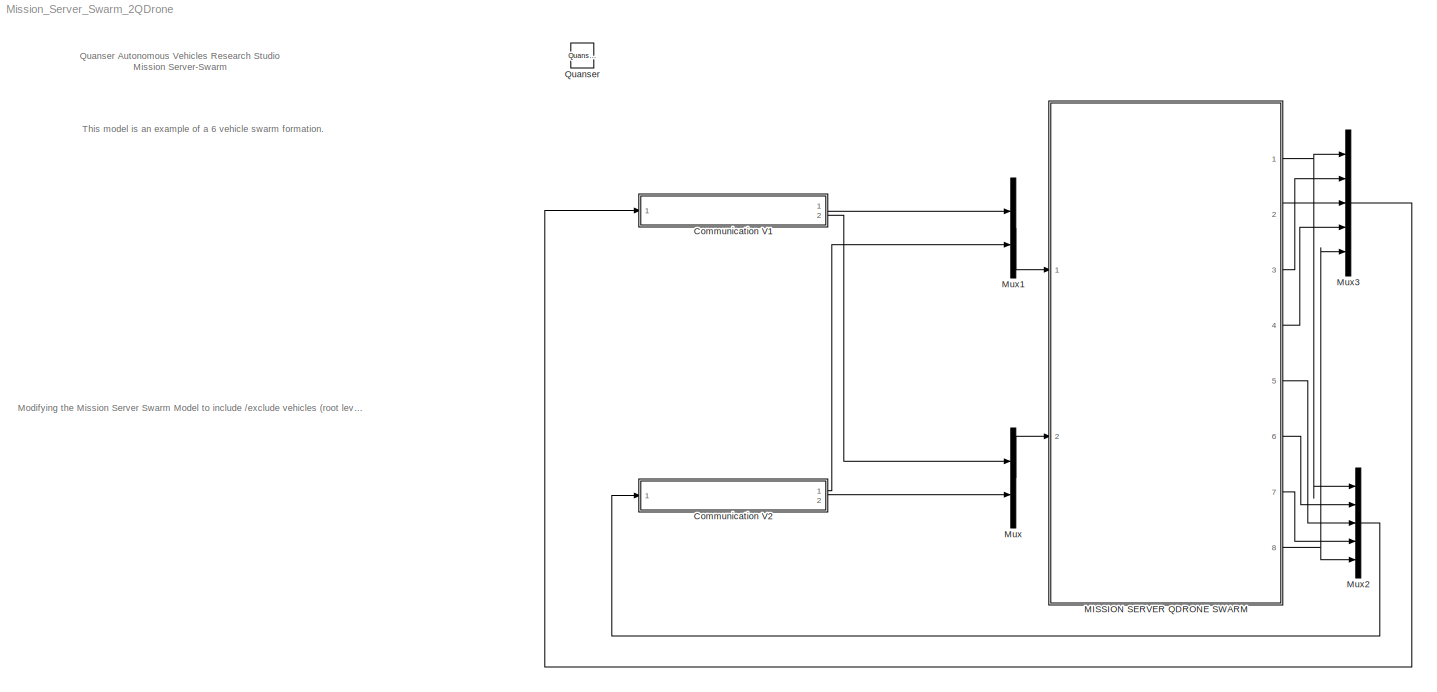
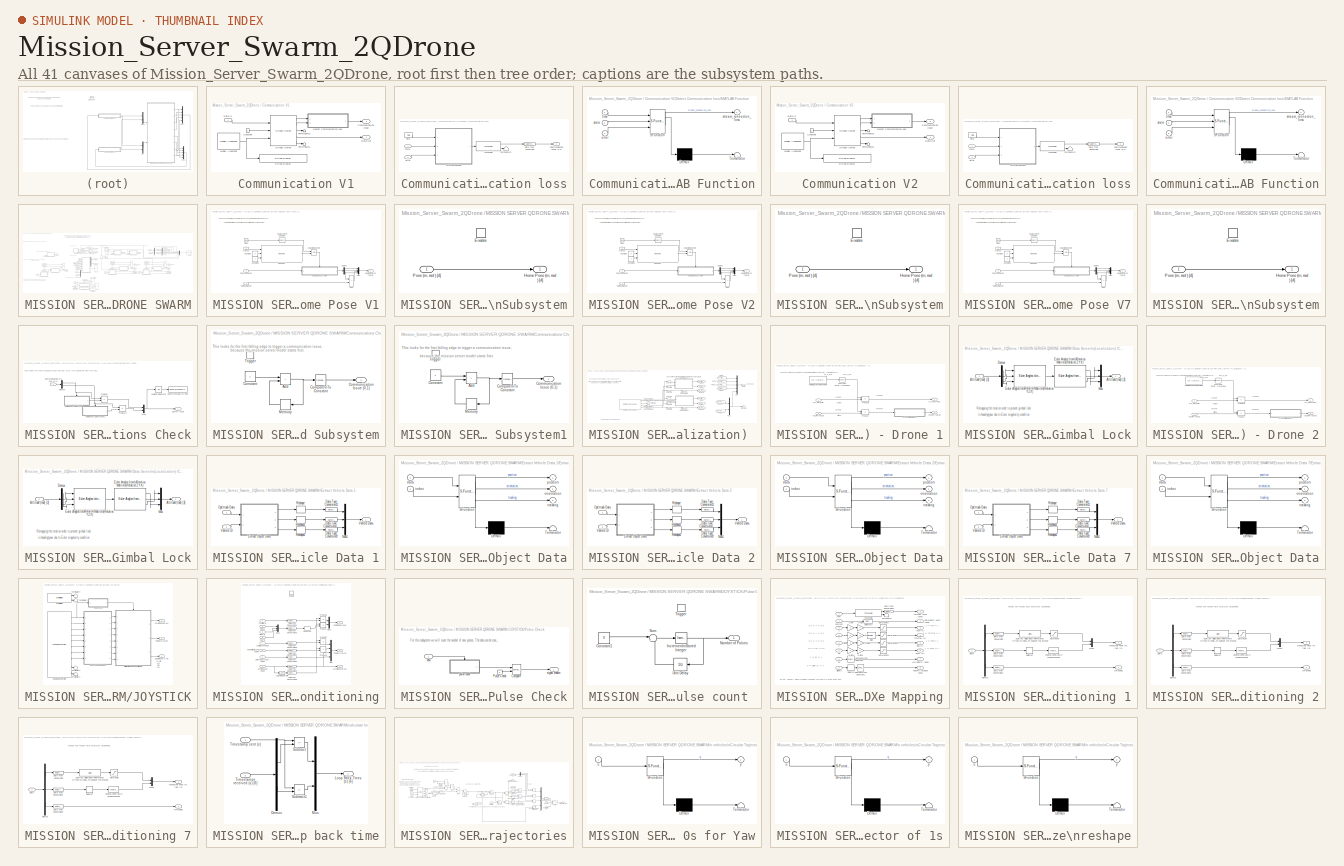
[diagram: thumbnail index - all 41 canvases of the model, root first then tree order]
MODEL Mission_Server_Swarm_2QDrone
KIND model
BLOCK [SubSystem] Communication V1
  Ports = [1, 2]
  RequestExecContextInheritance = off
  SID = 4722
BLOCK [Outport] Communication V1/Communication Issue
  Port = 2
  SID = 4739
  VectorParamsAs1DForOutWhenUnconnected = off
BLOCK [Constant] Communication V1/Constant
  SID = 4724
BLOCK [Inport] Communication V1/Data In
  SID = 4723
BLOCK [Outport] Communication V1/Data Out
  SID = 4740
  VectorParamsAs1DForOutWhenUnconnected = off
BLOCK [SubSystem] Communication V1/Detect Communication loss
  Ports = [2, 1]
  RequestExecContextInheritance = off
  SID = 4725
BLOCK [Outport] Communication V1/Detect Communication loss/Communication Issue (0,1)
  SID = 4733
  VectorParamsAs1DForOutWhenUnconnected = off
BLOCK [DataTypeConversion] Communication V1/Detect Communication loss/Data Type Conversion
  RndMeth = Floor
  SID = 4728
  SaturateOnIntegerOverflow = off
BLOCK [Inport] Communication V1/Detect Communication loss/Error
  NameLocation = top
  Port = 2
  SID = 4727
BLOCK [SubSystem] Communication V1/Detect Communication loss/MATLAB Function
  ErrorFcn = Stateflow.Translate.translate
  PermitHierarchicalResolution = ExplicitOnly
  Ports = [3, 1]
  RequestExecContextInheritance = off
  SFBlockType = MATLAB Function
  SID = 4729
  TreatAsAtomicUnit = on
BLOCK [Demux] Communication V1/Detect Communication loss/MATLAB Function/ Demux 
  Outputs = 1
  Ports = [1, 1]
  SID = 4729::50
BLOCK [S-Function] Communication V1/Detect Communication loss/MATLAB Function/ SFunction 
  EnableBusSupport = off
  FunctionName = sf_sfun
  PortCounts = [3 2]
  Ports = [3, 2]
  SFcnIsStateOwnerBlock = off
  SFunctionDeploymentMode = off
  SID = 4729::49
  Tag = Stateflow S-Function 6
BLOCK [Terminator] Communication V1/Detect Communication loss/MATLAB Function/ Terminator 
  SID = 4729::51
BLOCK [Inport] Communication V1/Detect Communication loss/MATLAB Function/error
  Port = 3
  SID = 4729::23
BLOCK [Inport] Communication V1/Detect Communication loss/MATLAB Function/state
  Port = 2
  SID = 4729::22
BLOCK [Outport] Communication V1/Detect Communication loss/MATLAB Function/stream_connection_loss
  SID = 4729::5
  VectorParamsAs1DForOutWhenUnconnected = off
BLOCK [Inport] Communication V1/Detect Communication loss/MATLAB Function/time
  SID = 4729::1
BLOCK [Inport] Communication V1/Detect Communication loss/State
  NameLocation = top
  SID = 4726
BLOCK [Terminator] Communication V1/Detect Communication loss/Terminator2
  SID = 4730
BLOCK [Reference] Communication V1/Detect Communication loss/Threshold  REF=quarc_library/Discontinuities/Threshold
  Ports = [1, 2]
  RTWMemSecDataConstants = Inherit from model
  RTWMemSecDataInternal = Inherit from model
  RTWMemSecDataParameters = Inherit from model
  RTWMemSecFuncExecute = Inherit from model
  RTWMemSecFuncInitTerm = Inherit from model
  SID = 4731
  SourceBlock = quarc_library/Discontinuities/Threshold
  SourceProductName = QUARC Targets
  SourceType = Threshold
  duration = 0.1
  operator = >=
  param_src = Specify via dialog
  threshold = 0.5
BLOCK [Reference] Communication V1/Detect Communication loss/Time  REF=quarc_library/Sources/Time/Time
  MultiThreadCoSim = auto
  NameLocation = top
  Ports = [0, 1]
  SID = 4732
  SourceBlock = quarc_library/Sources/Time/Time
  SourceProductName = QUARC Targets
  SourceType = Time
  sample_time = qc_get_step_size
  time_source = Wall clock
BLOCK [Reference] Communication V1/Model Argument  REF=quarc_library/Sources/Signals/Model Argument
  AttributesFormatString = (-%<argument_name>)
  MultiThreadCoSim = auto
  Ports = [0, 1]
  SID = 4734
  SourceBlock = quarc_library/Sources/Signals/Model Argument
  SourceProductName = QUARC Targets
  SourceType = Model Argument
  argument_name = URI_Host_V1
  data_type = char
  data_type_mode = Specify via dialog
  default_string = tcpip://localhost:18001
  default_value = 0
  has_value = on
  max_length = 80
  variable_size = off
BLOCK [Reference] Communication V1/Stream Server  REF=quarc_library/Communications/Basic/Stream Server
  MultiThreadCoSim = auto
  Ports = [3, 5]
  SID = 4735
  SourceBlock = quarc_library/Communications/Basic/Stream Server
  SourceProductName = QUARC Targets
  SourceType = Stream Server
  active = off
  apply_uri_to_all_configs = off
  byte_order = little endian (Intel - LSB first)
  data_type = Inherited via back propagation
  default_value = zeros(1,1)
  implementation = Use blocking I/O in a separate thread
  max_dimensions = -1
  optimization = Minimum latency
  receive_buffer_size = 1460
  receive_dimensions = off
  receive_fifo_size = 1000
  receive_options = Receive most recent data
  receive_priority = 0
  sample_time = qc_get_step_size
  send_buffer_size = 1460
  send_dimensions = off
  send_fifo_size = 1000
  send_options = Send most recent data
  send_priority = 0
  type_expr = BusObject
  uri = tcpip://localhost:18877
  uri_source = External input port
BLOCK [Reference] Communication V1/String Display   REF=quarc_library/Strings/String Display
  MultiThreadCoSim = auto
  Ports = [1]
  SID = 4736
  SourceBlock = quarc_library/Strings/String Display
  SourceProductName = QUARC Targets
  SourceType = String Display
  alignment = center
  display_mode = Single line
  sample_time = -1
  use_new = off
BLOCK [Terminator] Communication V1/Terminator1
  SID = 4737
BLOCK [Terminator] Communication V1/Terminator2
  SID = 4738
BLOCK [SubSystem] Communication V2
  Ports = [1, 2]
  RequestExecContextInheritance = off
  SID = 4741
BLOCK [Outport] Communication V2/Communication Issue
  Port = 2
  SID = 4758
  VectorParamsAs1DForOutWhenUnconnected = off
BLOCK [Constant] Communication V2/Constant
  SID = 4743
BLOCK [Inport] Communication V2/Data In
  SID = 4742
BLOCK [Outport] Communication V2/Data Out
  SID = 4759
  VectorParamsAs1DForOutWhenUnconnected = off
BLOCK [SubSystem] Communication V2/Detect Communication loss
  Ports = [2, 1]
  RequestExecContextInheritance = off
  SID = 4744
BLOCK [Outport] Communication V2/Detect Communication loss/Communication Issue (0,1)
  SID = 4752
  VectorParamsAs1DForOutWhenUnconnected = off
BLOCK [DataTypeConversion] Communication V2/Detect Communication loss/Data Type Conversion
  RndMeth = Floor
  SID = 4747
  SaturateOnIntegerOverflow = off
BLOCK [Inport] Communication V2/Detect Communication loss/Error
  NameLocation = top
  Port = 2
  SID = 4746
BLOCK [SubSystem] Communication V2/Detect Communication loss/MATLAB Function
  ErrorFcn = Stateflow.Translate.translate
  PermitHierarchicalResolution = ExplicitOnly
  Ports = [3, 1]
  RequestExecContextInheritance = off
  SFBlockType = MATLAB Function
  SID = 4748
  TreatAsAtomicUnit = on
BLOCK [Demux] Communication V2/Detect Communication loss/MATLAB Function/ Demux 
  Outputs = 1
  Ports = [1, 1]
  SID = 4748::50
BLOCK [S-Function] Communication V2/Detect Communication loss/MATLAB Function/ SFunction 
  EnableBusSupport = off
  FunctionName = sf_sfun
  PortCounts = [3 2]
  Ports = [3, 2]
  SFcnIsStateOwnerBlock = off
  SFunctionDeploymentMode = off
  SID = 4748::49
  Tag = Stateflow S-Function 7
BLOCK [Terminator] Communication V2/Detect Communication loss/MATLAB Function/ Terminator 
  SID = 4748::51
BLOCK [Inport] Communication V2/Detect Communication loss/MATLAB Function/error
  Port = 3
  SID = 4748::23
BLOCK [Inport] Communication V2/Detect Communication loss/MATLAB Function/state
  Port = 2
  SID = 4748::22
BLOCK [Outport] Communication V2/Detect Communication loss/MATLAB Function/stream_connection_loss
  SID = 4748::5
  VectorParamsAs1DForOutWhenUnconnected = off
BLOCK [Inport] Communication V2/Detect Communication loss/MATLAB Function/time
  SID = 4748::1
BLOCK [Inport] Communication V2/Detect Communication loss/State
  NameLocation = top
  SID = 4745
BLOCK [Terminator] Communication V2/Detect Communication loss/Terminator2
  SID = 4749
BLOCK [Reference] Communication V2/Detect Communication loss/Threshold  REF=quarc_library/Discontinuities/Threshold
  Ports = [1, 2]
  RTWMemSecDataConstants = Inherit from model
  RTWMemSecDataInternal = Inherit from model
  RTWMemSecDataParameters = Inherit from model
  RTWMemSecFuncExecute = Inherit from model
  RTWMemSecFuncInitTerm = Inherit from model
  SID = 4750
  SourceBlock = quarc_library/Discontinuities/Threshold
  SourceProductName = QUARC Targets
  SourceType = Threshold
  duration = 0.1
  operator = >=
  param_src = Specify via dialog
  threshold = 0.5
BLOCK [Reference] Communication V2/Detect Communication loss/Time  REF=quarc_library/Sources/Time/Time
  MultiThreadCoSim = auto
  NameLocation = top
  Ports = [0, 1]
  SID = 4751
  SourceBlock = quarc_library/Sources/Time/Time
  SourceProductName = QUARC Targets
  SourceType = Time
  sample_time = qc_get_step_size
  time_source = Wall clock
BLOCK [Reference] Communication V2/Model Argument  REF=quarc_library/Sources/Signals/Model Argument
  AttributesFormatString = (-%<argument_name>)
  MultiThreadCoSim = auto
  Ports = [0, 1]
  SID = 4753
  SourceBlock = quarc_library/Sources/Signals/Model Argument
  SourceProductName = QUARC Targets
  SourceType = Model Argument
  argument_name = URI_Host_V2
  data_type = char
  data_type_mode = Specify via dialog
  default_string = tcpip://localhost:18002
  default_value = 0
  has_value = on
  max_length = 80
  variable_size = off
BLOCK [Reference] Communication V2/Stream Server  REF=quarc_library/Communications/Basic/Stream Server
  MultiThreadCoSim = auto
  Ports = [3, 5]
  SID = 4754
  SourceBlock = quarc_library/Communications/Basic/Stream Server
  SourceProductName = QUARC Targets
  SourceType = Stream Server
  active = off
  apply_uri_to_all_configs = off
  byte_order = little endian (Intel - LSB first)
  data_type = Inherited via back propagation
  default_value = zeros(1,1)
  implementation = Use blocking I/O in a separate thread
  max_dimensions = -1
  optimization = Minimum latency
  receive_buffer_size = 1460
  receive_dimensions = off
  receive_fifo_size = 1000
  receive_options = Receive most recent data
  receive_priority = 0
  sample_time = qc_get_step_size
  send_buffer_size = 1460
  send_dimensions = off
  send_fifo_size = 1000
  send_options = Send most recent data
  send_priority = 0
  type_expr = BusObject
  uri = tcpip://localhost:18877
  uri_source = External input port
BLOCK [Reference] Communication V2/String Display   REF=quarc_library/Strings/String Display
  MultiThreadCoSim = auto
  Ports = [1]
  SID = 4755
  SourceBlock = quarc_library/Strings/String Display
  SourceProductName = QUARC Targets
  SourceType = String Display
  alignment = center
  display_mode = Single line
  sample_time = -1
  use_new = off
BLOCK [Terminator] Communication V2/Terminator1
  SID = 4756
BLOCK [Terminator] Communication V2/Terminator2
  SID = 4757
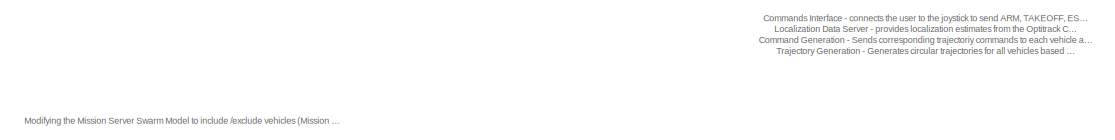
[diagram: MISSION SERVER QDRONE SWARM - part 1/4, top left region]
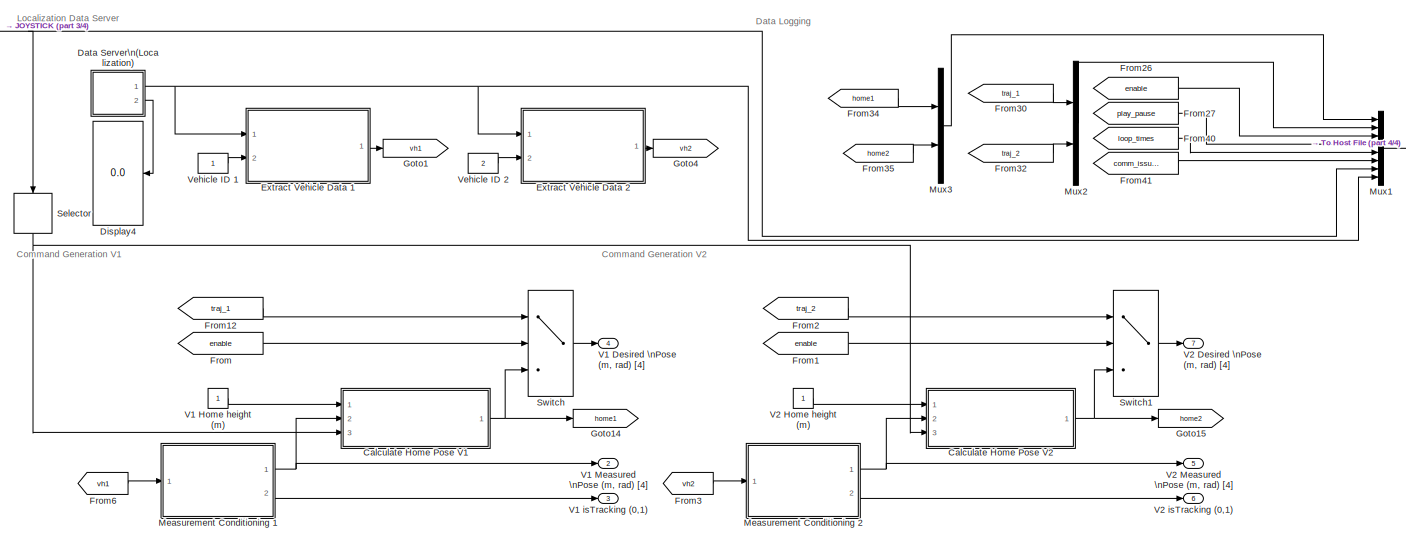
[diagram: MISSION SERVER QDRONE SWARM - part 2/4, middle right region]
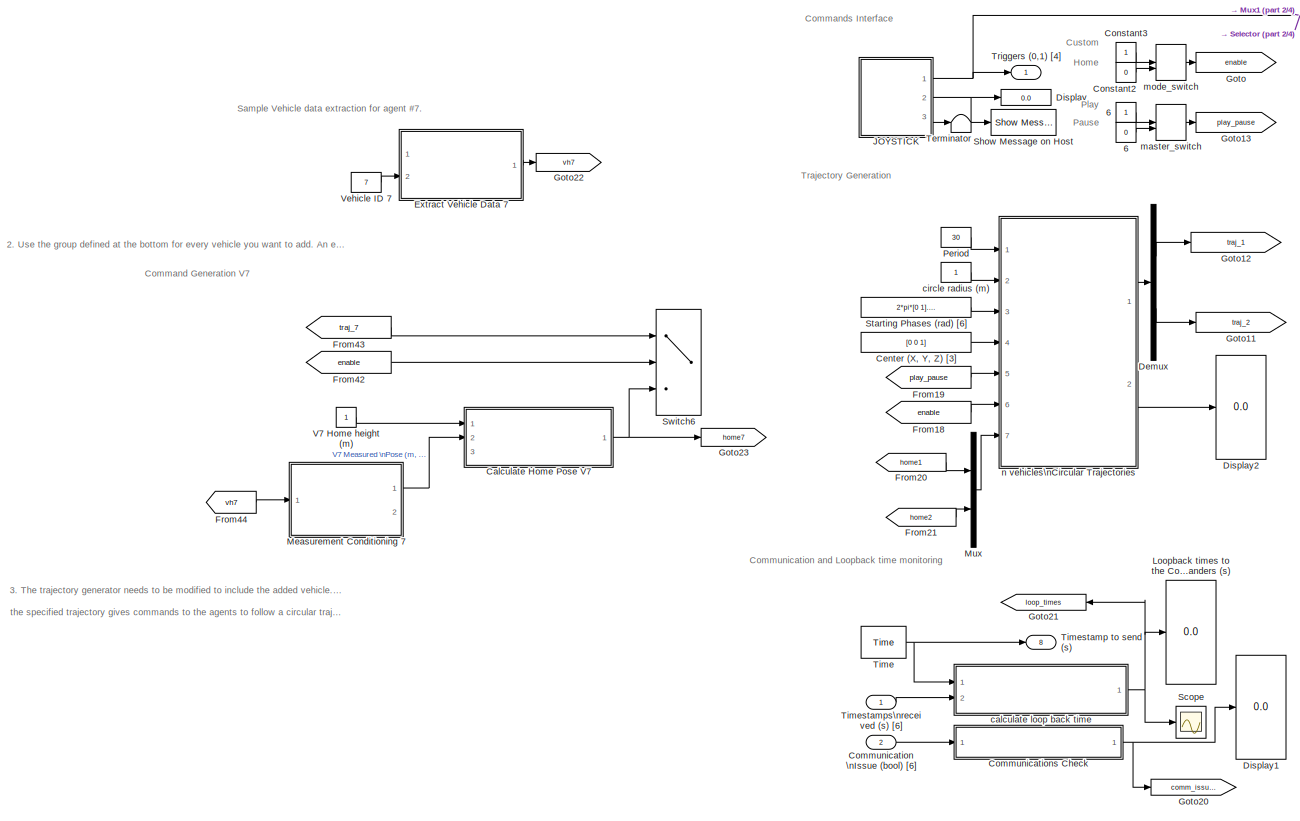
[diagram: MISSION SERVER QDRONE SWARM - part 3/4, left side, full height]
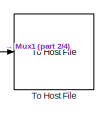
[diagram: MISSION SERVER QDRONE SWARM - part 4/4, top right region]
BLOCK [SubSystem] MISSION SERVER QDRONE SWARM
  Ports = [2, 8]
  RequestExecContextInheritance = off
  SID = 4051
BLOCK [Constant] MISSION SERVER QDRONE SWARM/          6
  SID = 4054
BLOCK [Constant] MISSION SERVER QDRONE SWARM/   6
  SID = 4055
  Value = 0
BLOCK [SubSystem] MISSION SERVER QDRONE SWARM/Calculate Home Pose V1
  NameLocation = top
  Ports = [3, 1]
  RequestExecContextInheritance = off
  SID = 5329
BLOCK [Inport] MISSION SERVER QDRONE SWARM/Calculate Home Pose V1/Arm(0,1)
  Port = 3
  SID = 5332
BLOCK [Clock] MISSION SERVER QDRONE SWARM/Calculate Home Pose V1/Clock
  SID = 5333
BLOCK [Reference] MISSION SERVER QDRONE SWARM/Calculate Home Pose V1/Compare\nTo Constant  REF=simulink/Logic and Bit\nOperations/Compare\nTo Constant
  OutDataTypeStr = boolean
  Ports = [1, 1]
  RTWMemSecDataConstants = Inherit from model
  RTWMemSecDataInternal = Inherit from model
  RTWMemSecDataParameters = Inherit from model
  RTWMemSecFuncExecute = Inherit from model
  RTWMemSecFuncInitTerm = Inherit from model
  SID = 5334
  SourceBlock = simulink/Logic and Bit\nOperations/Compare\nTo Constant
  SourceProductBaseCode = SL
  SourceType = Compare To Constant
  ZeroCross = on
  const = 5
  relop = >
BLOCK [Constant] MISSION SERVER QDRONE SWARM/Calculate Home Pose V1/Constant
  SID = 5335
  Value = 0
BLOCK [Constant] MISSION SERVER QDRONE SWARM/Calculate Home Pose V1/Constant1
  SID = 5336
BLOCK [Demux] MISSION SERVER QDRONE SWARM/Calculate Home Pose V1/Demux
  Ports = [1, 4]
  SID = 5337
BLOCK [SubSystem] MISSION SERVER QDRONE SWARM/Calculate Home Pose V1/Enabled\nSubsystem
  Ports = [1, 1, 1]
  RequestExecContextInheritance = off
  SID = 5338
  TreatAsAtomicUnit = on
BLOCK [EnablePort] MISSION SERVER QDRONE SWARM/Calculate Home Pose V1/Enabled\nSubsystem/Enable
  Ports = []
  SID = 5340
BLOCK [Outport] MISSION SERVER QDRONE SWARM/Calculate Home Pose V1/Enabled\nSubsystem/Home Pose (m, rad ) [4]
  SID = 5341
  VectorParamsAs1DForOutWhenUnconnected = off
BLOCK [Inport] MISSION SERVER QDRONE SWARM/Calculate Home Pose V1/Enabled\nSubsystem/Pose (m, rad ) [4] 
  SID = 5339
BLOCK [Outport] MISSION SERVER QDRONE SWARM/Calculate Home Pose V1/Home Pose (m, rad) [4]
  SID = 5346
  VectorParamsAs1DForOutWhenUnconnected = off
BLOCK [Inport] MISSION SERVER QDRONE SWARM/Calculate Home Pose V1/Home height (m)
  SID = 5330
BLOCK [Logic] MISSION SERVER QDRONE SWARM/Calculate Home Pose V1/Logical\nOperator
  AllPortsSameDT = off
  OutDataTypeStr = boolean
  Ports = [2, 1]
  SID = 5342
BLOCK [Mux] MISSION SERVER QDRONE SWARM/Calculate Home Pose V1/Mux
  DisplayOption = bar
  Ports = [4, 1]
  SID = 5343
BLOCK [Reference] MISSION SERVER QDRONE SWARM/Calculate Home Pose V1/One Shot  REF=quarc_library/Discontinuities/One Shot
  Ports = [3, 1]
  RTWMemSecDataConstants = Inherit from model
  RTWMemSecDataInternal = Inherit from model
  RTWMemSecDataParameters = Inherit from model
  RTWMemSecFuncExecute = Inherit from model
  RTWMemSecFuncInitTerm = Inherit from model
  SID = 5344
  SourceBlock = quarc_library/Discontinuities/One Shot
  SourceProductName = QUARC Targets
  SourceType = One Shot
  pulse_width = 1/qc_get_step_size
  redun_pulse = Ignore extraneous pulse
  trigger_type = Rising edge
  width_source = Specify via dialog
BLOCK [Inport] MISSION SERVER QDRONE SWARM/Calculate Home Pose V1/Pose (m, rad ) [4]
  Port = 2
  SID = 5331
BLOCK [Sum] MISSION SERVER QDRONE SWARM/Calculate Home Pose V1/Sum
  IconShape = rectangular
  Ports = [2, 1]
  SID = 5345
BLOCK [SubSystem] MISSION SERVER QDRONE SWARM/Calculate Home Pose V2
  NameLocation = top
  Ports = [3, 1]
  RequestExecContextInheritance = off
  SID = 5348
BLOCK [Inport] MISSION SERVER QDRONE SWARM/Calculate Home Pose V2/Arm(0,1)
  Port = 3
  SID = 5351
BLOCK [Clock] MISSION SERVER QDRONE SWARM/Calculate Home Pose V2/Clock
  SID = 5352
BLOCK [Reference] MISSION SERVER QDRONE SWARM/Calculate Home Pose V2/Compare\nTo Constant  REF=simulink/Logic and Bit\nOperations/Compare\nTo Constant
  OutDataTypeStr = boolean
  Ports = [1, 1]
  RTWMemSecDataConstants = Inherit from model
  RTWMemSecDataInternal = Inherit from model
  RTWMemSecDataParameters = Inherit from model
  RTWMemSecFuncExecute = Inherit from model
  RTWMemSecFuncInitTerm = Inherit from model
  SID = 5353
  SourceBlock = simulink/Logic and Bit\nOperations/Compare\nTo Constant
  SourceProductBaseCode = SL
  SourceType = Compare To Constant
  ZeroCross = on
  const = 5
  relop = >
BLOCK [Constant] MISSION SERVER QDRONE SWARM/Calculate Home Pose V2/Constant
  SID = 5354
  Value = 0
BLOCK [Constant] MISSION SERVER QDRONE SWARM/Calculate Home Pose V2/Constant1
  SID = 5355
BLOCK [Demux] MISSION SERVER QDRONE SWARM/Calculate Home Pose V2/Demux
  Ports = [1, 4]
  SID = 5356
BLOCK [SubSystem] MISSION SERVER QDRONE SWARM/Calculate Home Pose V2/Enabled\nSubsystem
  Ports = [1, 1, 1]
  RequestExecContextInheritance = off
  SID = 5357
  TreatAsAtomicUnit = on
BLOCK [EnablePort] MISSION SERVER QDRONE SWARM/Calculate Home Pose V2/Enabled\nSubsystem/Enable
  Ports = []
  SID = 5359
BLOCK [Outport] MISSION SERVER QDRONE SWARM/Calculate Home Pose V2/Enabled\nSubsystem/Home Pose (m, rad ) [4]
  SID = 5360
  VectorParamsAs1DForOutWhenUnconnected = off
BLOCK [Inport] MISSION SERVER QDRONE SWARM/Calculate Home Pose V2/Enabled\nSubsystem/Pose (m, rad ) [4] 
  SID = 5358
BLOCK [Outport] MISSION SERVER QDRONE SWARM/Calculate Home Pose V2/Home Pose (m, rad) [4]
  SID = 5365
  VectorParamsAs1DForOutWhenUnconnected = off
BLOCK [Inport] MISSION SERVER QDRONE SWARM/Calculate Home Pose V2/Home height (m)
  SID = 5349
BLOCK [Logic] MISSION SERVER QDRONE SWARM/Calculate Home Pose V2/Logical\nOperator
  AllPortsSameDT = off
  OutDataTypeStr = boolean
  Ports = [2, 1]
  SID = 5361
BLOCK [Mux] MISSION SERVER QDRONE SWARM/Calculate Home Pose V2/Mux
  DisplayOption = bar
  Ports = [4, 1]
  SID = 5362
BLOCK [Reference] MISSION SERVER QDRONE SWARM/Calculate Home Pose V2/One Shot  REF=quarc_library/Discontinuities/One Shot
  Ports = [3, 1]
  RTWMemSecDataConstants = Inherit from model
  RTWMemSecDataInternal = Inherit from model
  RTWMemSecDataParameters = Inherit from model
  RTWMemSecFuncExecute = Inherit from model
  RTWMemSecFuncInitTerm = Inherit from model
  SID = 5363
  SourceBlock = quarc_library/Discontinuities/One Shot
  SourceProductName = QUARC Targets
  SourceType = One Shot
  pulse_width = 1/qc_get_step_size
  redun_pulse = Ignore extraneous pulse
  trigger_type = Rising edge
  width_source = Specify via dialog
BLOCK [Inport] MISSION SERVER QDRONE SWARM/Calculate Home Pose V2/Pose (m, rad ) [4]
  Port = 2
  SID = 5350
BLOCK [Sum] MISSION SERVER QDRONE SWARM/Calculate Home Pose V2/Sum
  IconShape = rectangular
  Ports = [2, 1]
  SID = 5364
BLOCK [SubSystem] MISSION SERVER QDRONE SWARM/Calculate Home Pose V7
  Commented = on
  NameLocation = top
  Ports = [3, 1]
  RequestExecContextInheritance = off
  SID = 5443
BLOCK [Inport] MISSION SERVER QDRONE SWARM/Calculate Home Pose V7/Arm(0,1)
  Port = 3
  SID = 5446
BLOCK [Clock] MISSION SERVER QDRONE SWARM/Calculate Home Pose V7/Clock
  SID = 5447
BLOCK [Reference] MISSION SERVER QDRONE SWARM/Calculate Home Pose V7/Compare\nTo Constant  REF=simulink/Logic and Bit\nOperations/Compare\nTo Constant
  OutDataTypeStr = boolean
  Ports = [1, 1]
  RTWMemSecDataConstants = Inherit from model
  RTWMemSecDataInternal = Inherit from model
  RTWMemSecDataParameters = Inherit from model
  RTWMemSecFuncExecute = Inherit from model
  RTWMemSecFuncInitTerm = Inherit from model
  SID = 5448
  SourceBlock = simulink/Logic and Bit\nOperations/Compare\nTo Constant
  SourceProductBaseCode = SL
  SourceType = Compare To Constant
  ZeroCross = on
  const = 5
  relop = >
BLOCK [Constant] MISSION SERVER QDRONE SWARM/Calculate Home Pose V7/Constant
  SID = 5449
  Value = 0
BLOCK [Constant] MISSION SERVER QDRONE SWARM/Calculate Home Pose V7/Constant1
  SID = 5450
BLOCK [Demux] MISSION SERVER QDRONE SWARM/Calculate Home Pose V7/Demux
  Ports = [1, 4]
  SID = 5451
BLOCK [SubSystem] MISSION SERVER QDRONE SWARM/Calculate Home Pose V7/Enabled\nSubsystem
  Ports = [1, 1, 1]
  RequestExecContextInheritance = off
  SID = 5452
  TreatAsAtomicUnit = on
BLOCK [EnablePort] MISSION SERVER QDRONE SWARM/Calculate Home Pose V7/Enabled\nSubsystem/Enable
  Ports = []
  SID = 5454
BLOCK [Outport] MISSION SERVER QDRONE SWARM/Calculate Home Pose V7/Enabled\nSubsystem/Home Pose (m, rad ) [4]
  SID = 5455
  VectorParamsAs1DForOutWhenUnconnected = off
BLOCK [Inport] MISSION SERVER QDRONE SWARM/Calculate Home Pose V7/Enabled\nSubsystem/Pose (m, rad ) [4] 
  SID = 5453
BLOCK [Outport] MISSION SERVER QDRONE SWARM/Calculate Home Pose V7/Home Pose (m, rad) [4]
  SID = 5460
  VectorParamsAs1DForOutWhenUnconnected = off
BLOCK [Inport] MISSION SERVER QDRONE SWARM/Calculate Home Pose V7/Home height (m)
  SID = 5444
BLOCK [Logic] MISSION SERVER QDRONE SWARM/Calculate Home Pose V7/Logical\nOperator
  AllPortsSameDT = off
  OutDataTypeStr = boolean
  Ports = [2, 1]
  SID = 5456
BLOCK [Mux] MISSION SERVER QDRONE SWARM/Calculate Home Pose V7/Mux
  DisplayOption = bar
  Ports = [4, 1]
  SID = 5457
BLOCK [Reference] MISSION SERVER QDRONE SWARM/Calculate Home Pose V7/One Shot  REF=quarc_library/Discontinuities/One Shot
  Ports = [3, 1]
  RTWMemSecDataConstants = Inherit from model
  RTWMemSecDataInternal = Inherit from model
  RTWMemSecDataParameters = Inherit from model
  RTWMemSecFuncExecute = Inherit from model
  RTWMemSecFuncInitTerm = Inherit from model
  SID = 5458
  SourceBlock = quarc_library/Discontinuities/One Shot
  SourceProductName = QUARC Targets
  SourceType = One Shot
  pulse_width = 1/qc_get_step_size
  redun_pulse = Ignore extraneous pulse
  trigger_type = Rising edge
  width_source = Specify via dialog
BLOCK [Inport] MISSION SERVER QDRONE SWARM/Calculate Home Pose V7/Pose (m, rad ) [4]
  Port = 2
  SID = 5445
BLOCK [Sum] MISSION SERVER QDRONE SWARM/Calculate Home Pose V7/Sum
  IconShape = rectangular
  Ports = [2, 1]
  SID = 5459
BLOCK [Constant] MISSION SERVER QDRONE SWARM/Center (X, Y, Z) [3]
  SID = 4152
  Value = [0 0 1]
BLOCK [Inport] MISSION SERVER QDRONE SWARM/Communication \nIssue (bool) [6]
  Port = 2
  SID = 4053
BLOCK [SubSystem] MISSION SERVER QDRONE SWARM/Communications Check
  Ports = [1, 1]
  RequestExecContextInheritance = off
  SID = 4540
BLOCK [Outport] MISSION SERVER QDRONE SWARM/Communications Check/Comm Issue
  SID = 4600
  VectorParamsAs1DForOutWhenUnconnected = off
BLOCK [Inport] MISSION SERVER QDRONE SWARM/Communications Check/Communication\nIssue (0,1)
  SID = 4541
BLOCK [Demux] MISSION SERVER QDRONE SWARM/Communications Check/Demux
  Outputs = 2
  Ports = [1, 2]
  SID = 4542
BLOCK [Logic] MISSION SERVER QDRONE SWARM/Communications Check/Logical\nOperator
  AllPortsSameDT = off
  Inputs = 1
  Operator = OR
  OutDataTypeStr = boolean
  Ports = [1, 1]
  SID = 4543
BLOCK [Mux] MISSION SERVER QDRONE SWARM/Communications Check/Mux
  DisplayOption = bar
  Inputs = 2
  Ports = [2, 1]
  SID = 4544
BLOCK [Product] MISSION SERVER QDRONE SWARM/Communications Check/Product
  Ports = [2, 1]
  SID = 4545
BLOCK [Product] MISSION SERVER QDRONE SWARM/Communications Check/Product1
  Ports = [2, 1]
  SID = 5565
BLOCK [Reference] MISSION SERVER QDRONE SWARM/Communications Check/Show Message on Host  REF=quarc_library/Sinks/Error Handling/Show Message on Host
  AttributesFormatString = \"%<message>\"
  MultiThreadCoSim = auto
  Ports = [1]
  SID = 4551
  SourceBlock = quarc_library/Sinks/Error Handling/Show Message on Host
  SourceProductName = QUARC Targets
  SourceType = Host Show Message
  message = Mission Server: Communication Issue with a QDrone
  message_icon = Warning
  message_type = Fixed error message
BLOCK [SubSystem] MISSION SERVER QDRONE SWARM/Communications Check/Triggered Subsystem
  Ports = [0, 1, 0, 1]
  RequestExecContextInheritance = off
  SID = 4552
  TreatAsAtomicUnit = on
BLOCK [Sum] MISSION SERVER QDRONE SWARM/Communications Check/Triggered Subsystem/Add
  IconShape = rectangular
  Ports = [2, 1]
  SID = 4554
BLOCK [Outport] MISSION SERVER QDRONE SWARM/Communications Check/Triggered Subsystem/Communication Issue (0,1)
  InitialOutput = 0
  SID = 4558
  VectorParamsAs1DForOutWhenUnconnected = off
BLOCK [Reference] MISSION SERVER QDRONE SWARM/Communications Check/Triggered Subsystem/Compare\nTo Constant  REF=simulink/Logic and Bit\nOperations/Compare\nTo Constant
  OutDataTypeStr = boolean
  Ports = [1, 1]
  RTWMemSecDataConstants = Inherit from model
  RTWMemSecDataInternal = Inherit from model
  RTWMemSecDataParameters = Inherit from model
  RTWMemSecFuncExecute = Inherit from model
  RTWMemSecFuncInitTerm = Inherit from model
  SID = 4555
  SourceBlock = simulink/Logic and Bit\nOperations/Compare\nTo Constant
  SourceProductBaseCode = SL
  SourceType = Compare To Constant
  ZeroCross = on
  const = 1
  relop = >=
BLOCK [Constant] MISSION SERVER QDRONE SWARM/Communications Check/Triggered Subsystem/Constant
  SID = 4556
BLOCK [Memory] MISSION SERVER QDRONE SWARM/Communications Check/Triggered Subsystem/Memory
  InheritSampleTime = on
  SID = 4557
BLOCK [TriggerPort] MISSION SERVER QDRONE SWARM/Communications Check/Triggered Subsystem/Trigger
  Ports = []
  SID = 4553
  StatesWhenEnabling = held
  TriggerType = falling
  VariantControl = Variant
BLOCK [SubSystem] MISSION SERVER QDRONE SWARM/Communications Check/Triggered Subsystem1
  Ports = [0, 1, 0, 1]
  RequestExecContextInheritance = off
  SID = 4560
  TreatAsAtomicUnit = on
BLOCK [Sum] MISSION SERVER QDRONE SWARM/Communications Check/Triggered Subsystem1/Add
  IconShape = rectangular
  Ports = [2, 1]
  SID = 4562
BLOCK [Outport] MISSION SERVER QDRONE SWARM/Communications Check/Triggered Subsystem1/Communication Issue (0,1)
  InitialOutput = 0
  SID = 4566
  VectorParamsAs1DForOutWhenUnconnected = off
BLOCK [Reference] MISSION SERVER QDRONE SWARM/Communications Check/Triggered Subsystem1/Compare\nTo Constant  REF=simulink/Logic and Bit\nOperations/Compare\nTo Constant
  OutDataTypeStr = boolean
  Ports = [1, 1]
  RTWMemSecDataConstants = Inherit from model
  RTWMemSecDataInternal = Inherit from model
  RTWMemSecDataParameters = Inherit from model
  RTWMemSecFuncExecute = Inherit from model
  RTWMemSecFuncInitTerm = Inherit from model
  SID = 4563
  SourceBlock = simulink/Logic and Bit\nOperations/Compare\nTo Constant
  SourceProductBaseCode = SL
  SourceType = Compare To Constant
  ZeroCross = on
  const = 1
  relop = >=
BLOCK [Constant] MISSION SERVER QDRONE SWARM/Communications Check/Triggered Subsystem1/Constant
  SID = 4564
BLOCK [Memory] MISSION SERVER QDRONE SWARM/Communications Check/Triggered Subsystem1/Memory
  InheritSampleTime = on
  SID = 4565
BLOCK [TriggerPort] MISSION SERVER QDRONE SWARM/Communications Check/Triggered Subsystem1/Trigger
  Ports = []
  SID = 4561
  StatesWhenEnabling = held
  TriggerType = falling
  VariantControl = Variant
BLOCK [Constant] MISSION SERVER QDRONE SWARM/Constant2
  SID = 4153
  Value = 0
BLOCK [Constant] MISSION SERVER QDRONE SWARM/Constant3
  SID = 4154
BLOCK [SubSystem] MISSION SERVER QDRONE SWARM/Data Server\n(Localization) 
  NameLocation = top
  Ports = [0, 2]
  RequestExecContextInheritance = off
  SID = 4155
BLOCK [SubSystem] MISSION SERVER QDRONE SWARM/Data Server\n(Localization) /Convention Correction\n(Motive Frame to Research Studio Frame) - Drone 1
  NameLocation = top
  Ports = [2, 2]
  RequestExecContextInheritance = off
  SID = 4888
BLOCK [Math] MISSION SERVER QDRONE SWARM/Data Server\n(Localization) /Convention Correction\n(Motive Frame to Research Studio Frame) - Drone 1/Inverse of \nOrthonormal \nMatrix\nis its \nTranspose
  Operator = transpose
  Ports = [1, 1]
  SID = 4891
  SignedPower = on
BLOCK [SubSystem] MISSION SERVER QDRONE SWARM/Data Server\n(Localization) /Convention Correction\n(Motive Frame to Research Studio Frame) - Drone 1/Prevent Gimbal Lock
  Ports = [1, 1]
  RequestExecContextInheritance = off
  SID = 4892
BLOCK [Inport] MISSION SERVER QDRONE SWARM/Data Server\n(Localization) /Convention Correction\n(Motive Frame to Research Studio Frame) - Drone 1/Prevent Gimbal Lock/Attitude (rad) [3]
  SID = 4893
BLOCK [Outport] MISSION SERVER QDRONE SWARM/Data Server\n(Localization) /Convention Correction\n(Motive Frame to Research Studio Frame) - Drone 1/Prevent Gimbal Lock/Attitude (rad) [3] 
  SID = 4898
  VectorParamsAs1DForOutWhenUnconnected = off
BLOCK [Demux] MISSION SERVER QDRONE SWARM/Data Server\n(Localization) /Convention Correction\n(Motive Frame to Research Studio Frame) - Drone 1/Prevent Gimbal Lock/Demux
  Outputs = 3
  Ports = [1, 3]
  SID = 4894
BLOCK [Reference] MISSION SERVER QDRONE SWARM/Data Server\n(Localization) /Convention Correction\n(Motive Frame to Research Studio Frame) - Drone 1/Prevent Gimbal Lock/Euler Angles from\nRotation Matrix\n(Relative ZYX)  REF=quarc_library/Math Operations/Matrices/Euler Angles from\nRotation Matrix
  MultiThreadCoSim = auto
  Ports = [1, 3]
  SID = 4895
  SourceBlock = quarc_library/Math Operations/Matrices/Euler Angles from\nRotation Matrix
  SourceProductName = QUARC Targets
  SourceType = Euler Angles from Rotation Matrix
  menu_order = Relative Z-Y-X
BLOCK [Reference] MISSION SERVER QDRONE SWARM/Data Server\n(Localization) /Convention Correction\n(Motive Frame to Research Studio Frame) - Drone 1/Prevent Gimbal Lock/Euler Angles to\nRotation Matrix\n(Relative YZX)  REF=quarc_library/Math Operations/Matrices/Euler Angles to\nRotation Matrix
  MultiThreadCoSim = auto
  Ports = [3, 1]
  SID = 4896
  SourceBlock = quarc_library/Math Operations/Matrices/Euler Angles to\nRotation Matrix
  SourceProductName = QUARC Targets
  SourceType = Euler Angles to Rotation Matrix
  menu_order = Relative Y-Z-X
BLOCK [Mux] MISSION SERVER QDRONE SWARM/Data Server\n(Localization) /Convention Correction\n(Motive Frame to Research Studio Frame) - Drone 1/Prevent Gimbal Lock/Mux
  DisplayOption = bar
  Inputs = 3
  Ports = [3, 1]
  SID = 4897
BLOCK [Product] MISSION SERVER QDRONE SWARM/Data Server\n(Localization) /Convention Correction\n(Motive Frame to Research Studio Frame) - Drone 1/Product
  Multiplication = Matrix(*)
  Ports = [2, 1]
  SID = 4900
BLOCK [Product] MISSION SERVER QDRONE SWARM/Data Server\n(Localization) /Convention Correction\n(Motive Frame to Research Studio Frame) - Drone 1/Product1
  Multiplication = Matrix(*)
  Ports = [2, 1]
  SID = 4901
BLOCK [Constant] MISSION SERVER QDRONE SWARM/Data Server\n(Localization) /Convention Correction\n(Motive Frame to Research Studio Frame) - Drone 1/Rotate Basis from \nRSF to MF
  SID = 4902
  Value = [0 -1 0;0 0 1;-1 0 0]
BLOCK [Inport] MISSION SERVER QDRONE SWARM/Data Server\n(Localization) /Convention Correction\n(Motive Frame to Research Studio Frame) - Drone 1/rot_MF (rad) [3]
  Port = 2
  SID = 4890
BLOCK [Outport] MISSION SERVER QDRONE SWARM/Data Server\n(Localization) /Convention Correction\n(Motive Frame to Research Studio Frame) - Drone 1/rot_RSF (rad) [3]
  Port = 2
  SID = 4904
  VectorParamsAs1DForOutWhenUnconnected = off
BLOCK [Inport] MISSION SERVER QDRONE SWARM/Data Server\n(Localization) /Convention Correction\n(Motive Frame to Research Studio Frame) - Drone 1/xyz_MF (m) [3]
  SID = 4889
BLOCK [Outport] MISSION SERVER QDRONE SWARM/Data Server\n(Localization) /Convention Correction\n(Motive Frame to Research Studio Frame) - Drone 1/xyz_RSF (m) [3]
  SID = 4903
  VectorParamsAs1DForOutWhenUnconnected = off
BLOCK [SubSystem] MISSION SERVER QDRONE SWARM/Data Server\n(Localization) /Convention Correction\n(Motive Frame to Research Studio Frame) - Drone 2
  NameLocation = top
  Ports = [2, 2]
  RequestExecContextInheritance = off
  SID = 4914
BLOCK [Math] MISSION SERVER QDRONE SWARM/Data Server\n(Localization) /Convention Correction\n(Motive Frame to Research Studio Frame) - Drone 2/Inverse of \nOrthonormal \nMatrix\nis its \nTranspose
  Operator = transpose
  Ports = [1, 1]
  SID = 4917
  SignedPower = on
BLOCK [SubSystem] MISSION SERVER QDRONE SWARM/Data Server\n(Localization) /Convention Correction\n(Motive Frame to Research Studio Frame) - Drone 2/Prevent Gimbal Lock
  Ports = [1, 1]
  RequestExecContextInheritance = off
  SID = 4918
BLOCK [Inport] MISSION SERVER QDRONE SWARM/Data Server\n(Localization) /Convention Correction\n(Motive Frame to Research Studio Frame) - Drone 2/Prevent Gimbal Lock/Attitude (rad) [3]
  SID = 4919
BLOCK [Outport] MISSION SERVER QDRONE SWARM/Data Server\n(Localization) /Convention Correction\n(Motive Frame to Research Studio Frame) - Drone 2/Prevent Gimbal Lock/Attitude (rad) [3] 
  SID = 4924
  VectorParamsAs1DForOutWhenUnconnected = off
BLOCK [Demux] MISSION SERVER QDRONE SWARM/Data Server\n(Localization) /Convention Correction\n(Motive Frame to Research Studio Frame) - Drone 2/Prevent Gimbal Lock/Demux
  Outputs = 3
  Ports = [1, 3]
  SID = 4920
BLOCK [Reference] MISSION SERVER QDRONE SWARM/Data Server\n(Localization) /Convention Correction\n(Motive Frame to Research Studio Frame) - Drone 2/Prevent Gimbal Lock/Euler Angles from\nRotation Matrix\n(Relative ZYX)  REF=quarc_library/Math Operations/Matrices/Euler Angles from\nRotation Matrix
  MultiThreadCoSim = auto
  Ports = [1, 3]
  SID = 4921
  SourceBlock = quarc_library/Math Operations/Matrices/Euler Angles from\nRotation Matrix
  SourceProductName = QUARC Targets
  SourceType = Euler Angles from Rotation Matrix
  menu_order = Relative Z-Y-X
BLOCK [Reference] MISSION SERVER QDRONE SWARM/Data Server\n(Localization) /Convention Correction\n(Motive Frame to Research Studio Frame) - Drone 2/Prevent Gimbal Lock/Euler Angles to\nRotation Matrix\n(Relative YZX)  REF=quarc_library/Math Operations/Matrices/Euler Angles to\nRotation Matrix
  MultiThreadCoSim = auto
  Ports = [3, 1]
  SID = 4922
  SourceBlock = quarc_library/Math Operations/Matrices/Euler Angles to\nRotation Matrix
  SourceProductName = QUARC Targets
  SourceType = Euler Angles to Rotation Matrix
  menu_order = Relative Y-Z-X
BLOCK [Mux] MISSION SERVER QDRONE SWARM/Data Server\n(Localization) /Convention Correction\n(Motive Frame to Research Studio Frame) - Drone 2/Prevent Gimbal Lock/Mux
  DisplayOption = bar
  Inputs = 3
  Ports = [3, 1]
  SID = 4923
BLOCK [Product] MISSION SERVER QDRONE SWARM/Data Server\n(Localization) /Convention Correction\n(Motive Frame to Research Studio Frame) - Drone 2/Product
  Multiplication = Matrix(*)
  Ports = [2, 1]
  SID = 4926
BLOCK [Product] MISSION SERVER QDRONE SWARM/Data Server\n(Localization) /Convention Correction\n(Motive Frame to Research Studio Frame) - Drone 2/Product1
  Multiplication = Matrix(*)
  Ports = [2, 1]
  SID = 4927
BLOCK [Constant] MISSION SERVER QDRONE SWARM/Data Server\n(Localization) /Convention Correction\n(Motive Frame to Research Studio Frame) - Drone 2/Rotate Basis from \nRSF to MF
  SID = 4928
  Value = [0 -1 0;0 0 1;-1 0 0]
BLOCK [Inport] MISSION SERVER QDRONE SWARM/Data Server\n(Localization) /Convention Correction\n(Motive Frame to Research Studio Frame) - Drone 2/rot_MF (rad) [3]
  Port = 2
  SID = 4916
BLOCK [Outport] MISSION SERVER QDRONE SWARM/Data Server\n(Localization) /Convention Correction\n(Motive Frame to Research Studio Frame) - Drone 2/rot_RSF (rad) [3]
  Port = 2
  SID = 4930
  VectorParamsAs1DForOutWhenUnconnected = off
BLOCK [Inport] MISSION SERVER QDRONE SWARM/Data Server\n(Localization) /Convention Correction\n(Motive Frame to Research Studio Frame) - Drone 2/xyz_MF (m) [3]
  SID = 4915
BLOCK [Outport] MISSION SERVER QDRONE SWARM/Data Server\n(Localization) /Convention Correction\n(Motive Frame to Research Studio Frame) - Drone 2/xyz_RSF (m) [3]
  SID = 4929
  VectorParamsAs1DForOutWhenUnconnected = off
BLOCK [Outport] MISSION SERVER QDRONE SWARM/Data Server\n(Localization) /Data
  SID = 5574
  VectorParamsAs1DForOutWhenUnconnected = off
BLOCK [DataTypeConversion] MISSION SERVER QDRONE SWARM/Data Server\n(Localization) /Data Type Conversion
  RndMeth = Floor
  SID = 4992
  SaturateOnIntegerOverflow = off
BLOCK [DataTypeConversion] MISSION SERVER QDRONE SWARM/Data Server\n(Localization) /Data Type Conversion1
  RndMeth = Floor
  SID = 4993
  SaturateOnIntegerOverflow = off
BLOCK [From] MISSION SERVER QDRONE SWARM/Data Server\n(Localization) /From1
  GotoTag = Position_V2
  SID = 5566
BLOCK [From] MISSION SERVER QDRONE SWARM/Data Server\n(Localization) /From10
  GotoTag = Rotation_V1
  SID = 5567
BLOCK [From] MISSION SERVER QDRONE SWARM/Data Server\n(Localization) /From11
  GotoTag = Rotation_V2
  SID = 5568
BLOCK [From] MISSION SERVER QDRONE SWARM/Data Server\n(Localization) /From19
  GotoTag = Tracking_V1
  SID = 5569
BLOCK [From] MISSION SERVER QDRONE SWARM/Data Server\n(Localization) /From20
  GotoTag = Tracking_V2
  SID = 5570
BLOCK [From] MISSION SERVER QDRONE SWARM/Data Server\n(Localization) /From6
  GotoTag = Position_V1
  SID = 5571
BLOCK [Goto] MISSION SERVER QDRONE SWARM/Data Server\n(Localization) /Goto1
  GotoTag = Position_V1
  SID = 5008
BLOCK [Goto] MISSION SERVER QDRONE SWARM/Data Server\n(Localization) /Goto19
  GotoTag = Tracking_V1
  SID = 5009
BLOCK [Goto] MISSION SERVER QDRONE SWARM/Data Server\n(Localization) /Goto2
  GotoTag = Rotation_V1
  SID = 5010
BLOCK [Goto] MISSION SERVER QDRONE SWARM/Data Server\n(Localization) /Goto20
  GotoTag = Tracking_V2
  SID = 5011
BLOCK [Goto] MISSION SERVER QDRONE SWARM/Data Server\n(Localization) /Goto3
  GotoTag = Position_V2
  SID = 5014
BLOCK [Goto] MISSION SERVER QDRONE SWARM/Data Server\n(Localization) /Goto4
  GotoTag = Rotation_V2
  SID = 5015
BLOCK [Mux] MISSION SERVER QDRONE SWARM/Data Server\n(Localization) /Mux
  DisplayOption = bar
  Inputs = 5
  Ports = [5, 1]
  SID = 5572
BLOCK [Mux] MISSION SERVER QDRONE SWARM/Data Server\n(Localization) /Mux1
  DisplayOption = bar
  Inputs = 2
  Ports = [2, 1]
  SID = 5573
BLOCK [Reference] MISSION SERVER QDRONE SWARM/Data Server\n(Localization) /OptiTrack Trackables  REF=quarc_library/Devices/Third-Party/NaturalPoint/OptiTrack/OptiTrack Trackables
  MultiThreadCoSim = auto
  Ports = [0, 4]
  SID = 4184
  SourceBlock = quarc_library/Devices/Third-Party/NaturalPoint/OptiTrack/OptiTrack Trackables
  SourceProductName = QUARC Targets
  SourceType = OptiTrack Rigid Body Position
  active = off
  calibration_file = <userpath><path> mm) 2018-08-25 12.58pm.cal
  rigid_body_file = <userpath><path>
  rigid_body_ids = [1 2 ]
  sample_time = qc_get_step_size*10
BLOCK [RateTransition] MISSION SERVER QDRONE SWARM/Data Server\n(Localization) /Rate Transition1
  SID = 5022
BLOCK [RateTransition] MISSION SERVER QDRONE SWARM/Data Server\n(Localization) /Rate Transition4
  SID = 5023
BLOCK [RateTransition] MISSION SERVER QDRONE SWARM/Data Server\n(Localization) /Rate Transition5
  SID = 5024
BLOCK [Selector] MISSION SERVER QDRONE SWARM/Data Server\n(Localization) /Selector
  IndexOptions = Index vector (dialog)
  Indices = [1:3]
  InputPortWidth = 6
  OutputSizes = 1
  Ports = [1, 1]
  SID = 5025
BLOCK [Selector] MISSION SERVER QDRONE SWARM/Data Server\n(Localization) /Selector1
  IndexOptions = Index vector (dialog)
  Indices = [1:3]
  InputPortWidth = 6
  OutputSizes = 1
  Ports = [1, 1]
  SID = 5111
BLOCK [Selector] MISSION SERVER QDRONE SWARM/Data Server\n(Localization) /Selector2
  IndexOptions = Index vector (dialog)
  Indices = [4:6]
  InputPortWidth = 6
  OutputSizes = 1
  Ports = [1, 1]
  SID = 5029
BLOCK [Selector] MISSION SERVER QDRONE SWARM/Data Server\n(Localization) /Selector3
  IndexOptions = Index vector (dialog)
  Indices = [4:6]
  InputPortWidth = 6
  OutputSizes = 1
  Ports = [1, 1]
  SID = 5112
BLOCK [Selector] MISSION SERVER QDRONE SWARM/Data Server\n(Localization) /Selector4
  IndexOptions = Index vector (dialog)
  Indices = [1]
  InputPortWidth = 2
  OutputSizes = 1
  Ports = [1, 1]
  SID = 5031
BLOCK [Selector] MISSION SERVER QDRONE SWARM/Data Server\n(Localization) /Selector5
  IndexOptions = Index vector (dialog)
  Indices = [2]
  InputPortWidth = 2
  OutputSizes = 1
  Ports = [1, 1]
  SID = 5032
BLOCK [Terminator] MISSION SERVER QDRONE SWARM/Data Server\n(Localization) /Terminator
  SID = 5037
BLOCK [Outport] MISSION SERVER QDRONE SWARM/Data Server\n(Localization) /Tracking
  Port = 2
  SID = 5575
  VectorParamsAs1DForOutWhenUnconnected = off
BLOCK [Demux] MISSION SERVER QDRONE SWARM/Demux
  Outputs = [4 4]
  Ports = [1, 2]
  SID = 4192
BLOCK [Display] MISSION SERVER QDRONE SWARM/Display
  Decimation = 1
  Ports = [1]
  SID = 4193
BLOCK [Display] MISSION SERVER QDRONE SWARM/Display1
  Decimation = 1
  Ports = [1]
  SID = 4194
BLOCK [Display] MISSION SERVER QDRONE SWARM/Display2
  Decimation = 1
  Ports = [1]
  SID = 4195
BLOCK [Display] MISSION SERVER QDRONE SWARM/Display4
  Decimation = 1
  Ports = [1]
  SID = 4196
BLOCK [SubSystem] MISSION SERVER QDRONE SWARM/Extract Vehicle Data 1
  Ports = [2, 1]
  RequestExecContextInheritance = off
  SID = 4197
BLOCK [DataTypeConversion] MISSION SERVER QDRONE SWARM/Extract Vehicle Data 1/Data Type Conversion10
  RndMeth = Floor
  SID = 4200
  SaturateOnIntegerOverflow = off
BLOCK [DataTypeConversion] MISSION SERVER QDRONE SWARM/Extract Vehicle Data 1/Data Type Conversion11
  RndMeth = Floor
  SID = 4201
  SaturateOnIntegerOverflow = off
BLOCK [DataTypeConversion] MISSION SERVER QDRONE SWARM/Extract Vehicle Data 1/Data Type Conversion9
  RndMeth = Floor
  SID = 4202
  SaturateOnIntegerOverflow = off
BLOCK [SubSystem] MISSION SERVER QDRONE SWARM/Extract Vehicle Data 1/Extract Object Data
  ErrorFcn = Stateflow.Translate.translate
  PermitHierarchicalResolution = ExplicitOnly
  Ports = [2, 3]
  RequestExecContextInheritance = off
  SFBlockType = MATLAB Function
  SID = 4203
  TreatAsAtomicUnit = on
BLOCK [Demux] MISSION SERVER QDRONE SWARM/Extract Vehicle Data 1/Extract Object Data/ Demux 
  Outputs = 1
  Ports = [1, 1]
  SID = 4203::44
BLOCK [S-Function] MISSION SERVER QDRONE SWARM/Extract Vehicle Data 1/Extract Object Data/ SFunction 
  EnableBusSupport = off
  FunctionName = sf_sfun
  PortCounts = [2 4]
  Ports = [2, 4]
  SFcnIsStateOwnerBlock = off
  SFunctionDeploymentMode = off
  SID = 4203::43
  Tag = Stateflow S-Function 18
BLOCK [Terminator] MISSION SERVER QDRONE SWARM/Extract Vehicle Data 1/Extract Object Data/ Terminator 
  SID = 4203::45
BLOCK [Inport] MISSION SERVER QDRONE SWARM/Extract Vehicle Data 1/Extract Object Data/data
  SID = 4203::1
BLOCK [Inport] MISSION SERVER QDRONE SWARM/Extract Vehicle Data 1/Extract Object Data/index
  Port = 2
  SID = 4203::19
BLOCK [Outport] MISSION SERVER QDRONE SWARM/Extract Vehicle Data 1/Extract Object Data/orientation
  Port = 2
  SID = 4203::21
  VectorParamsAs1DForOutWhenUnconnected = off
BLOCK [Outport] MISSION SERVER QDRONE SWARM/Extract Vehicle Data 1/Extract Object Data/position
  SID = 4203::5
  VectorParamsAs1DForOutWhenUnconnected = off
BLOCK [Outport] MISSION SERVER QDRONE SWARM/Extract Vehicle Data 1/Extract Object Data/tracking
  Port = 3
  SID = 4203::20
  VectorParamsAs1DForOutWhenUnconnected = off
BLOCK [Mux] MISSION SERVER QDRONE SWARM/Extract Vehicle Data 1/Mux1
  DisplayOption = bar
  Inputs = 3
  Ports = [3, 1]
  SID = 4204
BLOCK [Inport] MISSION SERVER QDRONE SWARM/Extract Vehicle Data 1/Optitrack Data
  SID = 4198
BLOCK [Reshape] MISSION SERVER QDRONE SWARM/Extract Vehicle Data 1/Reshape
  Ports = [1, 1]
  SID = 4205
BLOCK [Reshape] MISSION SERVER QDRONE SWARM/Extract Vehicle Data 1/Reshape1
  Ports = [1, 1]
  SID = 4206
BLOCK [Reshape] MISSION SERVER QDRONE SWARM/Extract Vehicle Data 1/Reshape2
  Ports = [1, 1]
  SID = 4207
BLOCK [Outport] MISSION SERVER QDRONE SWARM/Extract Vehicle Data 1/Vehicle Data
  SID = 4208
  VectorParamsAs1DForOutWhenUnconnected = off
BLOCK [Inport] MISSION SERVER QDRONE SWARM/Extract Vehicle Data 1/Vehicle ID
  Port = 2
  SID = 4199
BLOCK [SubSystem] MISSION SERVER QDRONE SWARM/Extract Vehicle Data 2
  Ports = [2, 1]
  RequestExecContextInheritance = off
  SID = 4209
BLOCK [DataTypeConversion] MISSION SERVER QDRONE SWARM/Extract Vehicle Data 2/Data Type Conversion10
  RndMeth = Floor
  SID = 4212
  SaturateOnIntegerOverflow = off
BLOCK [DataTypeConversion] MISSION SERVER QDRONE SWARM/Extract Vehicle Data 2/Data Type Conversion11
  RndMeth = Floor
  SID = 4213
  SaturateOnIntegerOverflow = off
BLOCK [DataTypeConversion] MISSION SERVER QDRONE SWARM/Extract Vehicle Data 2/Data Type Conversion9
  RndMeth = Floor
  SID = 4214
  SaturateOnIntegerOverflow = off
BLOCK [SubSystem] MISSION SERVER QDRONE SWARM/Extract Vehicle Data 2/Extract Object Data
  ErrorFcn = Stateflow.Translate.translate
  PermitHierarchicalResolution = ExplicitOnly
  Ports = [2, 3]
  RequestExecContextInheritance = off
  SFBlockType = MATLAB Function
  SID = 4215
  TreatAsAtomicUnit = on
BLOCK [Demux] MISSION SERVER QDRONE SWARM/Extract Vehicle Data 2/Extract Object Data/ Demux 
  Outputs = 1
  Ports = [1, 1]
  SID = 4215::44
BLOCK [S-Function] MISSION SERVER QDRONE SWARM/Extract Vehicle Data 2/Extract Object Data/ SFunction 
  EnableBusSupport = off
  FunctionName = sf_sfun
  PortCounts = [2 4]
  Ports = [2, 4]
  SFcnIsStateOwnerBlock = off
  SFunctionDeploymentMode = off
  SID = 4215::43
  Tag = Stateflow S-Function 19
BLOCK [Terminator] MISSION SERVER QDRONE SWARM/Extract Vehicle Data 2/Extract Object Data/ Terminator 
  SID = 4215::45
BLOCK [Inport] MISSION SERVER QDRONE SWARM/Extract Vehicle Data 2/Extract Object Data/data
  SID = 4215::1
BLOCK [Inport] MISSION SERVER QDRONE SWARM/Extract Vehicle Data 2/Extract Object Data/index
  Port = 2
  SID = 4215::19
BLOCK [Outport] MISSION SERVER QDRONE SWARM/Extract Vehicle Data 2/Extract Object Data/orientation
  Port = 2
  SID = 4215::21
  VectorParamsAs1DForOutWhenUnconnected = off
BLOCK [Outport] MISSION SERVER QDRONE SWARM/Extract Vehicle Data 2/Extract Object Data/position
  SID = 4215::5
  VectorParamsAs1DForOutWhenUnconnected = off
BLOCK [Outport] MISSION SERVER QDRONE SWARM/Extract Vehicle Data 2/Extract Object Data/tracking
  Port = 3
  SID = 4215::20
  VectorParamsAs1DForOutWhenUnconnected = off
BLOCK [Mux] MISSION SERVER QDRONE SWARM/Extract Vehicle Data 2/Mux1
  DisplayOption = bar
  Inputs = 3
  Ports = [3, 1]
  SID = 4216
BLOCK [Inport] MISSION SERVER QDRONE SWARM/Extract Vehicle Data 2/Optitrack Data
  SID = 4210
BLOCK [Reshape] MISSION SERVER QDRONE SWARM/Extract Vehicle Data 2/Reshape
  Ports = [1, 1]
  SID = 4217
BLOCK [Reshape] MISSION SERVER QDRONE SWARM/Extract Vehicle Data 2/Reshape1
  Ports = [1, 1]
  SID = 4218
BLOCK [Reshape] MISSION SERVER QDRONE SWARM/Extract Vehicle Data 2/Reshape2
  Ports = [1, 1]
  SID = 4219
BLOCK [Outport] MISSION SERVER QDRONE SWARM/Extract Vehicle Data 2/Vehicle Data
  SID = 4220
  VectorParamsAs1DForOutWhenUnconnected = off
BLOCK [Inport] MISSION SERVER QDRONE SWARM/Extract Vehicle Data 2/Vehicle ID
  Port = 2
  SID = 4211
BLOCK [SubSystem] MISSION SERVER QDRONE SWARM/Extract Vehicle Data 7
  Commented = on
  Ports = [2, 1]
  RequestExecContextInheritance = off
  SID = 4828
BLOCK [DataTypeConversion] MISSION SERVER QDRONE SWARM/Extract Vehicle Data 7/Data Type Conversion10
  RndMeth = Floor
  SID = 4831
  SaturateOnIntegerOverflow = off
BLOCK [DataTypeConversion] MISSION SERVER QDRONE SWARM/Extract Vehicle Data 7/Data Type Conversion11
  RndMeth = Floor
  SID = 4832
  SaturateOnIntegerOverflow = off
BLOCK [DataTypeConversion] MISSION SERVER QDRONE SWARM/Extract Vehicle Data 7/Data Type Conversion9
  RndMeth = Floor
  SID = 4833
  SaturateOnIntegerOverflow = off
BLOCK [SubSystem] MISSION SERVER QDRONE SWARM/Extract Vehicle Data 7/Extract Object Data
  ErrorFcn = Stateflow.Translate.translate
  PermitHierarchicalResolution = ExplicitOnly
  Ports = [2, 3]
  RequestExecContextInheritance = off
  SFBlockType = MATLAB Function
  SID = 4834
  TreatAsAtomicUnit = on
BLOCK [Demux] MISSION SERVER QDRONE SWARM/Extract Vehicle Data 7/Extract Object Data/ Demux 
  Outputs = 1
  Ports = [1, 1]
  SID = 4834::44
BLOCK [S-Function] MISSION SERVER QDRONE SWARM/Extract Vehicle Data 7/Extract Object Data/ SFunction 
  EnableBusSupport = off
  FunctionName = sf_sfun
  PortCounts = [2 4]
  Ports = [2, 4]
  SFcnIsStateOwnerBlock = off
  SFunctionDeploymentMode = off
  SID = 4834::43
  Tag = Stateflow S-Function 11
BLOCK [Terminator] MISSION SERVER QDRONE SWARM/Extract Vehicle Data 7/Extract Object Data/ Terminator 
  SID = 4834::45
BLOCK [Inport] MISSION SERVER QDRONE SWARM/Extract Vehicle Data 7/Extract Object Data/data
  SID = 4834::1
BLOCK [Inport] MISSION SERVER QDRONE SWARM/Extract Vehicle Data 7/Extract Object Data/index
  Port = 2
  SID = 4834::19
BLOCK [Outport] MISSION SERVER QDRONE SWARM/Extract Vehicle Data 7/Extract Object Data/orientation
  Port = 2
  SID = 4834::21
  VectorParamsAs1DForOutWhenUnconnected = off
BLOCK [Outport] MISSION SERVER QDRONE SWARM/Extract Vehicle Data 7/Extract Object Data/position
  SID = 4834::5
  VectorParamsAs1DForOutWhenUnconnected = off
BLOCK [Outport] MISSION SERVER QDRONE SWARM/Extract Vehicle Data 7/Extract Object Data/tracking
  Port = 3
  SID = 4834::20
  VectorParamsAs1DForOutWhenUnconnected = off
BLOCK [Mux] MISSION SERVER QDRONE SWARM/Extract Vehicle Data 7/Mux1
  DisplayOption = bar
  Inputs = 3
  Ports = [3, 1]
  SID = 4835
BLOCK [Inport] MISSION SERVER QDRONE SWARM/Extract Vehicle Data 7/Optitrack Data
  SID = 4829
BLOCK [Reshape] MISSION SERVER QDRONE SWARM/Extract Vehicle Data 7/Reshape
  Ports = [1, 1]
  SID = 4836
BLOCK [Reshape] MISSION SERVER QDRONE SWARM/Extract Vehicle Data 7/Reshape1
  Ports = [1, 1]
  SID = 4837
BLOCK [Reshape] MISSION SERVER QDRONE SWARM/Extract Vehicle Data 7/Reshape2
  Ports = [1, 1]
  SID = 4838
BLOCK [Outport] MISSION SERVER QDRONE SWARM/Extract Vehicle Data 7/Vehicle Data
  SID = 4839
  VectorParamsAs1DForOutWhenUnconnected = off
BLOCK [Inport] MISSION SERVER QDRONE SWARM/Extract Vehicle Data 7/Vehicle ID
  Port = 2
  SID = 4830
BLOCK [From] MISSION SERVER QDRONE SWARM/From
  GotoTag = enable
  SID = 4269
BLOCK [From] MISSION SERVER QDRONE SWARM/From1
  GotoTag = enable
  SID = 4270
BLOCK [From] MISSION SERVER QDRONE SWARM/From12
  GotoTag = traj_1
  SID = 4273
BLOCK [From] MISSION SERVER QDRONE SWARM/From18
  GotoTag = enable
  SID = 4279
BLOCK [From] MISSION SERVER QDRONE SWARM/From19
  GotoTag = play_pause
  SID = 4280
BLOCK [From] MISSION SERVER QDRONE SWARM/From2
  GotoTag = traj_2
  SID = 4281
BLOCK [From] MISSION SERVER QDRONE SWARM/From20
  GotoTag = home1
  SID = 4282
BLOCK [From] MISSION SERVER QDRONE SWARM/From21
  GotoTag = home2
  SID = 4283
BLOCK [From] MISSION SERVER QDRONE SWARM/From26
  GotoTag = enable
  SID = 4288
BLOCK [From] MISSION SERVER QDRONE SWARM/From27
  GotoTag = play_pause
  SID = 4289
BLOCK [From] MISSION SERVER QDRONE SWARM/From3
  GotoTag = vh2
  SID = 4292
BLOCK [From] MISSION SERVER QDRONE SWARM/From30
  GotoTag = traj_1
  SID = 4293
BLOCK [From] MISSION SERVER QDRONE SWARM/From32
  GotoTag = traj_2
  SID = 4295
BLOCK [From] MISSION SERVER QDRONE SWARM/From34
  GotoTag = home1
  SID = 4297
BLOCK [From] MISSION SERVER QDRONE SWARM/From35
  GotoTag = home2
  SID = 4298
BLOCK [From] MISSION SERVER QDRONE SWARM/From40
  GotoTag = loop_times
  SID = 4304
BLOCK [From] MISSION SERVER QDRONE SWARM/From41
  GotoTag = comm_issues
  SID = 4305
BLOCK [From] MISSION SERVER QDRONE SWARM/From42
  Commented = on
  GotoTag = enable
  SID = 4860
BLOCK [From] MISSION SERVER QDRONE SWARM/From43
  Commented = on
  GotoTag = traj_7
  SID = 4861
BLOCK [From] MISSION SERVER QDRONE SWARM/From44
  Commented = on
  GotoTag = vh7
  SID = 4862
BLOCK [From] MISSION SERVER QDRONE SWARM/From6
  GotoTag = vh1
  SID = 4307
BLOCK [Goto] MISSION SERVER QDRONE SWARM/Goto
  GotoTag = enable
  SID = 4311
BLOCK [Goto] MISSION SERVER QDRONE SWARM/Goto1
  GotoTag = vh1
  SID = 4312
BLOCK [Goto] MISSION SERVER QDRONE SWARM/Goto11
  GotoTag = traj_2
  SID = 4314
BLOCK [Goto] MISSION SERVER QDRONE SWARM/Goto12
  GotoTag = traj_1
  SID = 4315
BLOCK [Goto] MISSION SERVER QDRONE SWARM/Goto13
  GotoTag = play_pause
  SID = 4316
BLOCK [Goto] MISSION SERVER QDRONE SWARM/Goto14
  GotoTag = home1
  SID = 4317
BLOCK [Goto] MISSION SERVER QDRONE SWARM/Goto15
  GotoTag = home2
  SID = 4318
BLOCK [Goto] MISSION SERVER QDRONE SWARM/Goto20
  GotoTag = comm_issues
  SID = 4324
BLOCK [Goto] MISSION SERVER QDRONE SWARM/Goto21
  GotoTag = loop_times
  SID = 4325
BLOCK [Goto] MISSION SERVER QDRONE SWARM/Goto22
  Commented = on
  GotoTag = vh7
  SID = 4840
BLOCK [Goto] MISSION SERVER QDRONE SWARM/Goto23
  Commented = on
  GotoTag = home7
  SID = 4863
BLOCK [Goto] MISSION SERVER QDRONE SWARM/Goto4
  GotoTag = vh2
  SID = 4327
BLOCK [SubSystem] MISSION SERVER QDRONE SWARM/JOYSTICK
  Ports = [0, 3]
  RequestExecContextInheritance = off
  SID = 5463
BLOCK [Outport] MISSION SERVER QDRONE SWARM/JOYSTICK/Commands (%) [4]
  Port = 3
  SID = 5562
  VectorParamsAs1DForOutWhenUnconnected = off
BLOCK [Reference] MISSION SERVER QDRONE SWARM/JOYSTICK/Host Game Controller  REF=quarc_library/Devices/Peripherals/Host/Host Game Controller
  MultiThreadCoSim = auto
  Ports = [0, 10]
  SID = 5464
  SourceBlock = quarc_library/Devices/Peripherals/Host/Host Game Controller
  SourceProductName = QUARC Targets
  SourceType = Host Game Controller
  auto_center = off
  buffer_size = 20
  controller = 1
  deadzone = []
  debug_mode = off
  enabled = on
  object_name = Host-1
  sample_time = qc_get_step_size
  saturation = []
BLOCK [Reference] MISSION SERVER QDRONE SWARM/JOYSTICK/Host Initialize  REF=quarc_library/Devices/Peripherals/Host/Host Initialize
  MultiThreadCoSim = auto
  Ports = [0, 2]
  SID = 5465
  SourceBlock = quarc_library/Devices/Peripherals/Host/Host Initialize
  SourceProductName = QUARC Targets
  SourceType = Host Initialize
  active = on
  apply_uri_to_all_configs = on
  object_name = Host-1
  receive_buffer_size = 1000
  run_client = on
  sample_time = qc_get_step_size
  send_buffer_size = 1000
  thread_priority = 0
  uri = tcpip://localhost:18001
  uri_source = Use external mode communications
  use_window = off
  window_position = []
BLOCK [SubSystem] MISSION SERVER QDRONE SWARM/JOYSTICK/Initialization\nand Conditioning
  Ports = [8, 3, 1]
  RequestExecContextInheritance = off
  SID = 5466
  TreatAsAtomicUnit = on
BLOCK [Inport] MISSION SERVER QDRONE SWARM/JOYSTICK/Initialization\nand Conditioning/Arm//Disarm (bool)
  Port = 7
  SID = 5473
BLOCK [Outport] MISSION SERVER QDRONE SWARM/JOYSTICK/Initialization\nand Conditioning/Commands (%) [4]
  InitialOutput = 0
  NameLocation = top
  Port = 3
  SID = 5494
  VectorParamsAs1DForOutWhenUnconnected = off
BLOCK [DataTypeConversion] MISSION SERVER QDRONE SWARM/JOYSTICK/Initialization\nand Conditioning/Data Type Conversion1
  RndMeth = Floor
  SID = 5476
  SaturateOnIntegerOverflow = off
BLOCK [DataTypeConversion] MISSION SERVER QDRONE SWARM/JOYSTICK/Initialization\nand Conditioning/Data Type Conversion2
  RndMeth = Floor
  SID = 5477
  SaturateOnIntegerOverflow = off
BLOCK [DataTypeConversion] MISSION SERVER QDRONE SWARM/JOYSTICK/Initialization\nand Conditioning/Data Type Conversion3
  RndMeth = Floor
  SID = 5478
  SaturateOnIntegerOverflow = off
BLOCK [DataTypeConversion] MISSION SERVER QDRONE SWARM/JOYSTICK/Initialization\nand Conditioning/Data Type Conversion4
  RndMeth = Floor
  SID = 5479
  SaturateOnIntegerOverflow = off
BLOCK [DataTypeConversion] MISSION SERVER QDRONE SWARM/JOYSTICK/Initialization\nand Conditioning/Data Type Conversion5
  RndMeth = Floor
  SID = 5480
  SaturateOnIntegerOverflow = off
BLOCK [DataTypeConversion] MISSION SERVER QDRONE SWARM/JOYSTICK/Initialization\nand Conditioning/Data Type Conversion6
  RndMeth = Floor
  SID = 5481
  SaturateOnIntegerOverflow = off
BLOCK [DataTypeConversion] MISSION SERVER QDRONE SWARM/JOYSTICK/Initialization\nand Conditioning/Data Type Conversion7
  RndMeth = Floor
  SID = 5482
  SaturateOnIntegerOverflow = off
BLOCK [DeadZone] MISSION SERVER QDRONE SWARM/JOYSTICK/Initialization\nand Conditioning/Dead Zone
  LowerValue = -0.01
  SID = 5483
  UpperValue = 0.01
BLOCK [Inport] MISSION SERVER QDRONE SWARM/JOYSTICK/Initialization\nand Conditioning/Emergency Abort (bool)
  Port = 2
  SID = 5468
BLOCK [EnablePort] MISSION SERVER QDRONE SWARM/JOYSTICK/Initialization\nand Conditioning/Enable
  Ports = []
  SID = 5475
  StatesWhenEnabling = reset
BLOCK [Outport] MISSION SERVER QDRONE SWARM/JOYSTICK/Initialization\nand Conditioning/Joystick Issue (0,1)
  InitialOutput = 0
  NameLocation = top
  SID = 5492
  VectorParamsAs1DForOutWhenUnconnected = off
BLOCK [Inport] MISSION SERVER QDRONE SWARM/JOYSTICK/Initialization\nand Conditioning/Joystick Issue (bool)
  SID = 5467
BLOCK [Logic] MISSION SERVER QDRONE SWARM/JOYSTICK/Initialization\nand Conditioning/Logical\nOperator
  AllPortsSameDT = off
  Operator = NOT
  OutDataTypeStr = boolean
  Ports = [1, 1]
  SID = 5484
BLOCK [Mux] MISSION SERVER QDRONE SWARM/JOYSTICK/Initialization\nand Conditioning/Mux
  DisplayOption = bar
  Ports = [4, 1]
  SID = 5485
BLOCK [Mux] MISSION SERVER QDRONE SWARM/JOYSTICK/Initialization\nand Conditioning/Mux1
  DisplayOption = bar
  Inputs = 3
  Ports = [3, 1]
  SID = 5486
BLOCK [Mux] MISSION SERVER QDRONE SWARM/JOYSTICK/Initialization\nand Conditioning/Mux2
  DisplayOption = bar
  Inputs = 2
  Ports = [2, 1]
  SID = 5487
BLOCK [Inport] MISSION SERVER QDRONE SWARM/JOYSTICK/Initialization\nand Conditioning/Pitch (%)
  Port = 6
  SID = 5472
BLOCK [Product] MISSION SERVER QDRONE SWARM/JOYSTICK/Initialization\nand Conditioning/Product
  Ports = [2, 1]
  SID = 5488
BLOCK [Product] MISSION SERVER QDRONE SWARM/JOYSTICK/Initialization\nand Conditioning/Product1
  Ports = [2, 1]
  SID = 5489
BLOCK [Product] MISSION SERVER QDRONE SWARM/JOYSTICK/Initialization\nand Conditioning/Product2
  Ports = [2, 1]
  SID = 5490
BLOCK [Product] MISSION SERVER QDRONE SWARM/JOYSTICK/Initialization\nand Conditioning/Product3
  Ports = [2, 1]
  SID = 5491
BLOCK [Inport] MISSION SERVER QDRONE SWARM/JOYSTICK/Initialization\nand Conditioning/Roll (%)
  Port = 5
  SID = 5471
BLOCK [Inport] MISSION SERVER QDRONE SWARM/JOYSTICK/Initialization\nand Conditioning/Takeoff//AutoLand (bool)
  Port = 8
  SID = 5474
BLOCK [Inport] MISSION SERVER QDRONE SWARM/JOYSTICK/Initialization\nand Conditioning/Throttle (%)
  Port = 4
  SID = 5470
BLOCK [Outport] MISSION SERVER QDRONE SWARM/JOYSTICK/Initialization\nand Conditioning/Triggers (0,1) [4]
  InitialOutput = 0
  NameLocation = top
  Port = 2
  SID = 5493
  VectorParamsAs1DForOutWhenUnconnected = off
BLOCK [Inport] MISSION SERVER QDRONE SWARM/JOYSTICK/Initialization\nand Conditioning/Yaw (%)
  Port = 3
  SID = 5469
BLOCK [Outport] MISSION SERVER QDRONE SWARM/JOYSTICK/Joystick Issue (0,1)
  Port = 2
  SID = 5561
  VectorParamsAs1DForOutWhenUnconnected = off
BLOCK [SubSystem] MISSION SERVER QDRONE SWARM/JOYSTICK/Pulse Check
  Ports = [1, 1]
  RequestExecContextInheritance = off
  SID = 5495
  TreatAsAtomicUnit = on
BLOCK [Reference] MISSION SERVER QDRONE SWARM/JOYSTICK/Pulse Check/Compare  REF=quarc_library/Logic Operations/Compare
  MultiThreadCoSim = auto
  Ports = [2, 1]
  SID = 5497
  SourceBlock = quarc_library/Logic Operations/Compare
  SourceProductName = QUARC Targets
  SourceType = Compare
  operator = >
  output_data_type = boolean
BLOCK [Constant] MISSION SERVER QDRONE SWARM/JOYSTICK/Pulse Check/Pulse Check
  SID = 5498
  Value = 2
BLOCK [Inport] MISSION SERVER QDRONE SWARM/JOYSTICK/Pulse Check/new
  SID = 5496
BLOCK [SubSystem] MISSION SERVER QDRONE SWARM/JOYSTICK/Pulse Check/pulse count 
  Ports = [0, 1, 0, 1]
  RequestExecContextInheritance = off
  SID = 5499
  TreatAsAtomicUnit = on
BLOCK [Constant] MISSION SERVER QDRONE SWARM/JOYSTICK/Pulse Check/pulse count /Constant1
  SID = 5501
  Value = 0
BLOCK [Reference] MISSION SERVER QDRONE SWARM/JOYSTICK/Pulse Check/pulse count /Increment\nStored Integer  REF=simulink/Additional Math\n& Discrete/Additional Math:\nIncrement - Decrement/Increment\nStored Integer
  Ports = [1, 1]
  RTWMemSecDataConstants = Inherit from model
  RTWMemSecDataInternal = Inherit from model
  RTWMemSecDataParameters = Inherit from model
  RTWMemSecFuncExecute = Inherit from model
  RTWMemSecFuncInitTerm = Inherit from model
  SID = 5502
  SourceBlock = simulink/Additional Math\n& Discrete/Additional Math:\nIncrement - Decrement/Increment\nStored Integer
  SourceProductBaseCode = SL
  SourceType = Stored Integer Value Increment
BLOCK [Outport] MISSION SERVER QDRONE SWARM/JOYSTICK/Pulse Check/pulse count /Number of Pulses
  SID = 5505
  VectorParamsAs1DForOutWhenUnconnected = off
BLOCK [Sum] MISSION SERVER QDRONE SWARM/JOYSTICK/Pulse Check/pulse count /Sum
  Inputs = |++
  Ports = [2, 1]
  SID = 5503
BLOCK [TriggerPort] MISSION SERVER QDRONE SWARM/JOYSTICK/Pulse Check/pulse count /Trigger
  Ports = []
  SID = 5500
  StatesWhenEnabling = held
  VariantControl = Variant
BLOCK [UnitDelay] MISSION SERVER QDRONE SWARM/JOYSTICK/Pulse Check/pulse count /Unit Delay
  HasFrameUpgradeWarning = on
  NameLocation = top
  SID = 5504
  SampleTime = -1
BLOCK [Outport] MISSION SERVER QDRONE SWARM/JOYSTICK/Pulse Check/signal enable
  InitialOutput = 0
  SID = 5506
  VectorParamsAs1DForOutWhenUnconnected = off
BLOCK [SubSystem] MISSION SERVER QDRONE SWARM/JOYSTICK/Spectrum DXe Mapping
  Ports = [8, 8]
  RequestExecContextInheritance = off
  SID = 5508
BLOCK [Outport] MISSION SERVER QDRONE SWARM/JOYSTICK/Spectrum DXe Mapping/Arm//Disarm (bool) 
  Port = 7
  SID = 5543
  VectorParamsAs1DForOutWhenUnconnected = off
BLOCK [Bias] MISSION SERVER QDRONE SWARM/JOYSTICK/Spectrum DXe Mapping/Bias
  Bias = 0.5
  SID = 5517
  SaturateOnIntegerOverflow = off
BLOCK [Reference] MISSION SERVER QDRONE SWARM/JOYSTICK/Spectrum DXe Mapping/Compare\nTo Constant  REF=simulink/Logic and Bit\nOperations/Compare\nTo Constant
  OutDataTypeStr = boolean
  Ports = [1, 1]
  RTWMemSecDataConstants = Inherit from model
  RTWMemSecDataInternal = Inherit from model
  RTWMemSecDataParameters = Inherit from model
  RTWMemSecFuncExecute = Inherit from model
  RTWMemSecFuncInitTerm = Inherit from model
  SID = 5518
  SourceBlock = simulink/Logic and Bit\nOperations/Compare\nTo Constant
  SourceProductBaseCode = SL
  SourceType = Compare To Constant
  ZeroCross = on
  const = 0
  relop = <=
BLOCK [Reference] MISSION SERVER QDRONE SWARM/JOYSTICK/Spectrum DXe Mapping/Compare\nTo Constant1  REF=simulink/Logic and Bit\nOperations/Compare\nTo Constant
  OutDataTypeStr = boolean
  Ports = [1, 1]
  RTWMemSecDataConstants = Inherit from model
  RTWMemSecDataInternal = Inherit from model
  RTWMemSecDataParameters = Inherit from model
  RTWMemSecFuncExecute = Inherit from model
  RTWMemSecFuncInitTerm = Inherit from model
  SID = 5519
  SourceBlock = simulink/Logic and Bit\nOperations/Compare\nTo Constant
  SourceProductBaseCode = SL
  SourceType = Compare To Constant
  ZeroCross = on
  const = 0.5
  relop = <=
BLOCK [DataTypeConversion] MISSION SERVER QDRONE SWARM/JOYSTICK/Spectrum DXe Mapping/Data Type Conversion2
  RndMeth = Floor
  SID = 5520
  SaturateOnIntegerOverflow = off
BLOCK [Outport] MISSION SERVER QDRONE SWARM/JOYSTICK/Spectrum DXe Mapping/Emergency Abort (bool)
  Port = 2
  SID = 5538
  VectorParamsAs1DForOutWhenUnconnected = off
BLOCK [Gain] MISSION SERVER QDRONE SWARM/JOYSTICK/Spectrum DXe Mapping/Gain
  Gain = 2
  SID = 5521
BLOCK [Gain] MISSION SERVER QDRONE SWARM/JOYSTICK/Spectrum DXe Mapping/Gain1
  SID = 5522
BLOCK [Gain] MISSION SERVER QDRONE SWARM/JOYSTICK/Spectrum DXe Mapping/Gain2
  Gain = 2
  SID = 5523
BLOCK [Gain] MISSION SERVER QDRONE SWARM/JOYSTICK/Spectrum DXe Mapping/Gain3
  Gain = 2
  SID = 5524
BLOCK [Gain] MISSION SERVER QDRONE SWARM/JOYSTICK/Spectrum DXe Mapping/Gain4
  SID = 5525
BLOCK [Gain] MISSION SERVER QDRONE SWARM/JOYSTICK/Spectrum DXe Mapping/Gain5
  Gain = -1
  SID = 5526
BLOCK [Gain] MISSION SERVER QDRONE SWARM/JOYSTICK/Spectrum DXe Mapping/Gain6
  SID = 5527
BLOCK [Gain] MISSION SERVER QDRONE SWARM/JOYSTICK/Spectrum DXe Mapping/Gain7
  SID = 5528
BLOCK [Outport] MISSION SERVER QDRONE SWARM/JOYSTICK/Spectrum DXe Mapping/Joystick Issue (bool)
  SID = 5537
  VectorParamsAs1DForOutWhenUnconnected = off
BLOCK [Outport] MISSION SERVER QDRONE SWARM/JOYSTICK/Spectrum DXe Mapping/Pitch (%)
  Port = 6
  SID = 5542
  VectorParamsAs1DForOutWhenUnconnected = off
BLOCK [Outport] MISSION SERVER QDRONE SWARM/JOYSTICK/Spectrum DXe Mapping/Roll (%)
  Port = 5
  SID = 5541
  VectorParamsAs1DForOutWhenUnconnected = off
BLOCK [Inport] MISSION SERVER QDRONE SWARM/JOYSTICK/Spectrum DXe Mapping/Rx
  Port = 7
  SID = 5515
BLOCK [Inport] MISSION SERVER QDRONE SWARM/JOYSTICK/Spectrum DXe Mapping/Ry
  Port = 8
  SID = 5516
BLOCK [Saturate] MISSION SERVER QDRONE SWARM/JOYSTICK/Spectrum DXe Mapping/Saturation
  LowerLimit = 0
  SID = 5529
  UpperLimit = 1
BLOCK [Saturate] MISSION SERVER QDRONE SWARM/JOYSTICK/Spectrum DXe Mapping/Saturation1
  LowerLimit = -1
  SID = 5530
  UpperLimit = 1
BLOCK [Saturate] MISSION SERVER QDRONE SWARM/JOYSTICK/Spectrum DXe Mapping/Saturation2
  LowerLimit = -1
  SID = 5531
  UpperLimit = 1
BLOCK [Saturate] MISSION SERVER QDRONE SWARM/JOYSTICK/Spectrum DXe Mapping/Saturation3
  LowerLimit = -1
  SID = 5532
  UpperLimit = 1
BLOCK [Selector] MISSION SERVER QDRONE SWARM/JOYSTICK/Spectrum DXe Mapping/Selector
  IndexOptions = Index vector (dialog)
  Indices = [2]
  InputPortWidth = 2
  OutputSizes = 1
  Ports = [1, 1]
  SID = 5533
BLOCK [Selector] MISSION SERVER QDRONE SWARM/JOYSTICK/Spectrum DXe Mapping/Selector2
  IndexOptions = Index vector (dialog)
  Indices = [1]
  InputPortWidth = 32
  NameLocation = top
  OutputSizes = 1
  Ports = [1, 1]
  SID = 5534
BLOCK [Inport] MISSION SERVER QDRONE SWARM/JOYSTICK/Spectrum DXe Mapping/Sliders
  Port = 3
  SID = 5511
BLOCK [Outport] MISSION SERVER QDRONE SWARM/JOYSTICK/Spectrum DXe Mapping/Takeoff//Autoland (bool)
  Port = 8
  SID = 5544
  VectorParamsAs1DForOutWhenUnconnected = off
BLOCK [Terminator] MISSION SERVER QDRONE SWARM/JOYSTICK/Spectrum DXe Mapping/Terminator
  SID = 5535
BLOCK [Reference] MISSION SERVER QDRONE SWARM/JOYSTICK/Spectrum DXe Mapping/Threshold  REF=quarc_library/Discontinuities/Threshold
  Ports = [1, 2]
  RTWMemSecDataConstants = Inherit from model
  RTWMemSecDataInternal = Inherit from model
  RTWMemSecDataParameters = Inherit from model
  RTWMemSecFuncExecute = Inherit from model
  RTWMemSecFuncInitTerm = Inherit from model
  SID = 5536
  SourceBlock = quarc_library/Discontinuities/Threshold
  SourceProductName = QUARC Targets
  SourceType = Threshold
  duration = 1
  operator = ==
  param_src = Specify via dialog
  threshold = 0
BLOCK [Outport] MISSION SERVER QDRONE SWARM/JOYSTICK/Spectrum DXe Mapping/Throttle (%)
  Port = 4
  SID = 5540
  VectorParamsAs1DForOutWhenUnconnected = off
BLOCK [Outport] MISSION SERVER QDRONE SWARM/JOYSTICK/Spectrum DXe Mapping/Yaw (%)
  Port = 3
  SID = 5539
  VectorParamsAs1DForOutWhenUnconnected = off
BLOCK [Inport] MISSION SERVER QDRONE SWARM/JOYSTICK/Spectrum DXe Mapping/buttons
  Port = 2
  SID = 5510
BLOCK [Inport] MISSION SERVER QDRONE SWARM/JOYSTICK/Spectrum DXe Mapping/new
  SID = 5509
BLOCK [Inport] MISSION SERVER QDRONE SWARM/JOYSTICK/Spectrum DXe Mapping/x
  Port = 4
  SID = 5512
BLOCK [Inport] MISSION SERVER QDRONE SWARM/JOYSTICK/Spectrum DXe Mapping/y
  Port = 5
  SID = 5513
BLOCK [Inport] MISSION SERVER QDRONE SWARM/JOYSTICK/Spectrum DXe Mapping/z
  Port = 6
  SID = 5514
BLOCK [Terminator] MISSION SERVER QDRONE SWARM/JOYSTICK/Terminator1
  SID = 5556
BLOCK [Terminator] MISSION SERVER QDRONE SWARM/JOYSTICK/Terminator2
  SID = 5557
BLOCK [Terminator] MISSION SERVER QDRONE SWARM/JOYSTICK/Terminator3
  SID = 5558
BLOCK [Terminator] MISSION SERVER QDRONE SWARM/JOYSTICK/Terminator4
  SID = 5559
BLOCK [Outport] MISSION SERVER QDRONE SWARM/JOYSTICK/Triggers (0,1) [4]
  SID = 5560
  VectorParamsAs1DForOutWhenUnconnected = off
BLOCK [Display] MISSION SERVER QDRONE SWARM/Loopback times to the Commanders (s)
  Decimation = 1
  NameLocation = top
  Ports = [1]
  SID = 4429
BLOCK [SubSystem] MISSION SERVER QDRONE SWARM/Measurement Conditioning 1
  Ports = [1, 2]
  RequestExecContextInheritance = off
  SID = 5231
BLOCK [Inport] MISSION SERVER QDRONE SWARM/Measurement Conditioning 1/Data
  SID = 5232
BLOCK [DataTypeConversion] MISSION SERVER QDRONE SWARM/Measurement Conditioning 1/Data Type Conversion
  RndMeth = Floor
  SID = 5233
  SaturateOnIntegerOverflow = off
BLOCK [DataTypeConversion] MISSION SERVER QDRONE SWARM/Measurement Conditioning 1/Data Type Conversion1
  RndMeth = Floor
  SID = 5234
  SaturateOnIntegerOverflow = off
BLOCK [DataTypeConversion] MISSION SERVER QDRONE SWARM/Measurement Conditioning 1/Data Type Conversion2
  RndMeth = Floor
  SID = 5235
  SaturateOnIntegerOverflow = off
BLOCK [Demux] MISSION SERVER QDRONE SWARM/Measurement Conditioning 1/Demux
  Outputs = [3 3 1]
  Ports = [1, 3]
  SID = 5236
BLOCK [Outport] MISSION SERVER QDRONE SWARM/Measurement Conditioning 1/Measured Pose (m, rad) [4]
  SID = 5242
  VectorParamsAs1DForOutWhenUnconnected = off
BLOCK [Mux] MISSION SERVER QDRONE SWARM/Measurement Conditioning 1/Mux2
  DisplayOption = bar
  Inputs = [3 1]
  Ports = [2, 1]
  SID = 5237
BLOCK [Saturate] MISSION SERVER QDRONE SWARM/Measurement Conditioning 1/Saturation
  LowerLimit = [-2 -2 0]
  SID = 5238
  UpperLimit = [2 2 3]
BLOCK [Selector] MISSION SERVER QDRONE SWARM/Measurement Conditioning 1/Selector
  IndexOptions = Index vector (dialog)
  Indices = [3]
  InputPortWidth = 3
  OutputSizes = 1
  Ports = [1, 1]
  SID = 5239
BLOCK [Bias] MISSION SERVER QDRONE SWARM/Measurement Conditioning 1/Subtract Rigid Body\nReference Offset\n(Initial Height) \nto get height\nabove the ground
  Bias = [0 0 -0.07]
  NameLocation = top
  SID = 5240
  SaturateOnIntegerOverflow = off
BLOCK [Reference] MISSION SERVER QDRONE SWARM/Measurement Conditioning 1/Unwrap optitrack\nmeasurement  REF=quarc_library/Discontinuities/Inverse\nModulus
  MultiThreadCoSim = auto
  Ports = [1, 1]
  SID = 5241
  SourceBlock = quarc_library/Discontinuities/Inverse\nModulus
  SourceProductName = QUARC Targets
  SourceType = Inverse Modulus
  max_x = Inf
  min_x = -Inf
  modulus = 2*pi
  output_derivative = off
  output_revolutions = off
BLOCK [Outport] MISSION SERVER QDRONE SWARM/Measurement Conditioning 1/isTracking
  Port = 2
  SID = 5243
  VectorParamsAs1DForOutWhenUnconnected = off
BLOCK [SubSystem] MISSION SERVER QDRONE SWARM/Measurement Conditioning 2
  Ports = [1, 2]
  RequestExecContextInheritance = off
  SID = 5245
BLOCK [Inport] MISSION SERVER QDRONE SWARM/Measurement Conditioning 2/Data
  SID = 5246
BLOCK [DataTypeConversion] MISSION SERVER QDRONE SWARM/Measurement Conditioning 2/Data Type Conversion
  RndMeth = Floor
  SID = 5247
  SaturateOnIntegerOverflow = off
BLOCK [DataTypeConversion] MISSION SERVER QDRONE SWARM/Measurement Conditioning 2/Data Type Conversion1
  RndMeth = Floor
  SID = 5248
  SaturateOnIntegerOverflow = off
BLOCK [DataTypeConversion] MISSION SERVER QDRONE SWARM/Measurement Conditioning 2/Data Type Conversion2
  RndMeth = Floor
  SID = 5249
  SaturateOnIntegerOverflow = off
BLOCK [Demux] MISSION SERVER QDRONE SWARM/Measurement Conditioning 2/Demux
  Outputs = [3 3 1]
  Ports = [1, 3]
  SID = 5250
BLOCK [Outport] MISSION SERVER QDRONE SWARM/Measurement Conditioning 2/Measured Pose (m, rad) [4]
  SID = 5256
  VectorParamsAs1DForOutWhenUnconnected = off
BLOCK [Mux] MISSION SERVER QDRONE SWARM/Measurement Conditioning 2/Mux2
  DisplayOption = bar
  Inputs = [3 1]
  Ports = [2, 1]
  SID = 5251
BLOCK [Saturate] MISSION SERVER QDRONE SWARM/Measurement Conditioning 2/Saturation
  LowerLimit = [-2 -2 0]
  SID = 5252
  UpperLimit = [2 2 3]
BLOCK [Selector] MISSION SERVER QDRONE SWARM/Measurement Conditioning 2/Selector
  IndexOptions = Index vector (dialog)
  Indices = [3]
  InputPortWidth = 3
  OutputSizes = 1
  Ports = [1, 1]
  SID = 5253
BLOCK [Bias] MISSION SERVER QDRONE SWARM/Measurement Conditioning 2/Subtract Rigid Body\nReference Offset\n(Initial Height) \nto get height\nabove the ground
  Bias = [0 0 -0.07]
  NameLocation = top
  SID = 5254
  SaturateOnIntegerOverflow = off
BLOCK [Reference] MISSION SERVER QDRONE SWARM/Measurement Conditioning 2/Unwrap optitrack\nmeasurement  REF=quarc_library/Discontinuities/Inverse\nModulus
  MultiThreadCoSim = auto
  Ports = [1, 1]
  SID = 5255
  SourceBlock = quarc_library/Discontinuities/Inverse\nModulus
  SourceProductName = QUARC Targets
  SourceType = Inverse Modulus
  max_x = Inf
  min_x = -Inf
  modulus = 2*pi
  output_derivative = off
  output_revolutions = off
BLOCK [Outport] MISSION SERVER QDRONE SWARM/Measurement Conditioning 2/isTracking
  Port = 2
  SID = 5257
  VectorParamsAs1DForOutWhenUnconnected = off
BLOCK [SubSystem] MISSION SERVER QDRONE SWARM/Measurement Conditioning 7
  Commented = on
  Ports = [1, 2]
  RequestExecContextInheritance = off
  SID = 5315
BLOCK [Inport] MISSION SERVER QDRONE SWARM/Measurement Conditioning 7/Data
  SID = 5316
BLOCK [DataTypeConversion] MISSION SERVER QDRONE SWARM/Measurement Conditioning 7/Data Type Conversion
  RndMeth = Floor
  SID = 5317
  SaturateOnIntegerOverflow = off
BLOCK [DataTypeConversion] MISSION SERVER QDRONE SWARM/Measurement Conditioning 7/Data Type Conversion1
  RndMeth = Floor
  SID = 5318
  SaturateOnIntegerOverflow = off
BLOCK [DataTypeConversion] MISSION SERVER QDRONE SWARM/Measurement Conditioning 7/Data Type Conversion2
  RndMeth = Floor
  SID = 5319
  SaturateOnIntegerOverflow = off
BLOCK [Demux] MISSION SERVER QDRONE SWARM/Measurement Conditioning 7/Demux
  Outputs = [3 3 1]
  Ports = [1, 3]
  SID = 5320
BLOCK [Outport] MISSION SERVER QDRONE SWARM/Measurement Conditioning 7/Measured Pose (m, rad) [4]
  SID = 5326
  VectorParamsAs1DForOutWhenUnconnected = off
BLOCK [Mux] MISSION SERVER QDRONE SWARM/Measurement Conditioning 7/Mux2
  DisplayOption = bar
  Inputs = [3 1]
  Ports = [2, 1]
  SID = 5321
BLOCK [Saturate] MISSION SERVER QDRONE SWARM/Measurement Conditioning 7/Saturation
  LowerLimit = [-2 -2 0]
  SID = 5322
  UpperLimit = [2 2 3]
BLOCK [Selector] MISSION SERVER QDRONE SWARM/Measurement Conditioning 7/Selector
  IndexOptions = Index vector (dialog)
  Indices = [3]
  InputPortWidth = 3
  OutputSizes = 1
  Ports = [1, 1]
  SID = 5323
BLOCK [Bias] MISSION SERVER QDRONE SWARM/Measurement Conditioning 7/Subtract Rigid Body\nReference Offset\n(Initial Height) \nto get height\nabove the ground
  Bias = [0 0 -0.07]
  NameLocation = top
  SID = 5324
  SaturateOnIntegerOverflow = off
BLOCK [Reference] MISSION SERVER QDRONE SWARM/Measurement Conditioning 7/Unwrap optitrack\nmeasurement  REF=quarc_library/Discontinuities/Inverse\nModulus
  MultiThreadCoSim = auto
  Ports = [1, 1]
  SID = 5325
  SourceBlock = quarc_library/Discontinuities/Inverse\nModulus
  SourceProductName = QUARC Targets
  SourceType = Inverse Modulus
  max_x = Inf
  min_x = -Inf
  modulus = 2*pi
  output_derivative = off
  output_revolutions = off
BLOCK [Outport] MISSION SERVER QDRONE SWARM/Measurement Conditioning 7/isTracking
  Port = 2
  SID = 5327
  VectorParamsAs1DForOutWhenUnconnected = off
BLOCK [Mux] MISSION SERVER QDRONE SWARM/Mux
  DisplayOption = bar
  Inputs = 2
  Ports = [2, 1]
  SID = 4532
BLOCK [Mux] MISSION SERVER QDRONE SWARM/Mux1
  DisplayOption = bar
  Inputs = 8
  Ports = [8, 1]
  SID = 4533
BLOCK [Mux] MISSION SERVER QDRONE SWARM/Mux2
  DisplayOption = bar
  Inputs = 2
  Ports = [2, 1]
  SID = 4534
BLOCK [Mux] MISSION SERVER QDRONE SWARM/Mux3
  DisplayOption = bar
  Inputs = 2
  Ports = [2, 1]
  SID = 4535
BLOCK [Constant] MISSION SERVER QDRONE SWARM/Period
  SID = 4536
  Value = 30
BLOCK [Scope] MISSION SERVER QDRONE SWARM/Scope
  Floating = off
  NumInputPorts = 1
  Ports = [1]
  SID = 4537
  ScopeSpecificationString = Simulink.scopes.TimeScopeBlockCfg('CurrentConfiguration', extmgr.ConfigurationSet(extmgr.Configuration('Core','General UI',true),extmgr.Configuration('Core','Source UI',true),extmgr.Configuration('Sources','WiredSimulink',true),extmgr.Configuration('Visuals','Time Domain',true),extmgr.Configuration('Tools','Plot Navigation',true),extmgr.Configuration('Tools','Measurements',true)),'Version','2020a'...<+1ch>
BLOCK [Selector] MISSION SERVER QDRONE SWARM/Selector
  IndexOptions = Index vector (dialog)
  Indices = [1]
  InputPortWidth = 4
  NameLocation = left
  OutputSizes = 1
  Ports = [1, 1]
  SID = 5462
BLOCK [Reference] MISSION SERVER QDRONE SWARM/Show Message on Host   REF=quarc_library/Sinks/Error Handling/Show Message on Host
  AttributesFormatString = \"%<message>\"
  MultiThreadCoSim = auto
  Ports = [1]
  SID = 4538
  SourceBlock = quarc_library/Sinks/Error Handling/Show Message on Host
  SourceProductName = QUARC Targets
  SourceType = Host Show Message
  message = Mission Server: Joystick Disconnected
  message_icon = Warning
  message_type = Fixed error message
BLOCK [Constant] MISSION SERVER QDRONE SWARM/Starting Phases (rad) [6]
  SID = 4539
  Value = 2*pi*[0 1]./2
BLOCK [Switch] MISSION SERVER QDRONE SWARM/Switch
  Criteria = u2 > Threshold
  InputSameDT = off
  SID = 4602
  SaturateOnIntegerOverflow = off
BLOCK [Switch] MISSION SERVER QDRONE SWARM/Switch1
  Criteria = u2 > Threshold
  InputSameDT = off
  SID = 4603
  SaturateOnIntegerOverflow = off
BLOCK [Switch] MISSION SERVER QDRONE SWARM/Switch6
  Commented = on
  Criteria = u2 > Threshold
  InputSameDT = off
  SID = 4882
  SaturateOnIntegerOverflow = off
BLOCK [Terminator] MISSION SERVER QDRONE SWARM/Terminator
  SID = 4608
BLOCK [Reference] MISSION SERVER QDRONE SWARM/Time  REF=quarc_library/Sources/Time/Time
  MultiThreadCoSim = auto
  Ports = [0, 1]
  SID = 4609
  SourceBlock = quarc_library/Sources/Time/Time
  SourceProductName = QUARC Targets
  SourceType = Time
  sample_time = qc_get_step_size
  time_source = Wall clock
BLOCK [Outport] MISSION SERVER QDRONE SWARM/Timestamp to send (s)
  NameLocation = top
  Port = 8
  SID = 4705
  VectorParamsAs1DForOutWhenUnconnected = off
BLOCK [Inport] MISSION SERVER QDRONE SWARM/Timestamps\nreceived (s) [6]
  SID = 4052
BLOCK [Reference] MISSION SERVER QDRONE SWARM/To Host File  REF=quarc_library/Sinks/To Host/To Host File
  AttributesFormatString = %<final_file_name>
  MultiThreadCoSim = auto
  Ports = [1]
  SID = 4610
  SourceBlock = quarc_library/Sinks/To Host/To Host File
  SourceProductName = QUARC Targets
  SourceType = To Host File
  append = off
  bitrate = 2000000
  decimation = 1
  file_format = MAT-file v.4
  file_name = saved_data/%m/%{char(datetime)}.mat
  final_file_name = saved_data/Mission_Server_Swarm_2QDrone/2022-03-11 10-16-12.mat
  options = No header or footer
  sample_time = -1
  variable_name = data
BLOCK [Outport] MISSION SERVER QDRONE SWARM/Triggers (0,1) [4]
  NameLocation = top
  SID = 4686
  VectorParamsAs1DForOutWhenUnconnected = off
BLOCK [Outport] MISSION SERVER QDRONE SWARM/V1 Desired \nPose (m, rad) [4]
  NameLocation = top
  Port = 4
  SID = 4689
  VectorParamsAs1DForOutWhenUnconnected = off
BLOCK [Constant] MISSION SERVER QDRONE SWARM/V1 Home height (m)
  SID = 4333
BLOCK [Outport] MISSION SERVER QDRONE SWARM/V1 Measured \nPose (m, rad) [4]
  NameLocation = top
  Port = 2
  SID = 4687
  VectorParamsAs1DForOutWhenUnconnected = off
BLOCK [Outport] MISSION SERVER QDRONE SWARM/V1 isTracking (0,1)
  NameLocation = top
  Port = 3
  SID = 4688
  VectorParamsAs1DForOutWhenUnconnected = off
BLOCK [Outport] MISSION SERVER QDRONE SWARM/V2 Desired \nPose (m, rad) [4]
  NameLocation = top
  Port = 7
  SID = 4692
  VectorParamsAs1DForOutWhenUnconnected = off
BLOCK [Constant] MISSION SERVER QDRONE SWARM/V2 Home height (m)
  SID = 4334
BLOCK [Outport] MISSION SERVER QDRONE SWARM/V2 Measured \nPose (m, rad) [4]
  NameLocation = top
  Port = 5
  SID = 4690
  VectorParamsAs1DForOutWhenUnconnected = off
BLOCK [Outport] MISSION SERVER QDRONE SWARM/V2 isTracking (0,1)
  NameLocation = top
  Port = 6
  SID = 4691
  VectorParamsAs1DForOutWhenUnconnected = off
BLOCK [Constant] MISSION SERVER QDRONE SWARM/V7 Home height (m)
  Commented = on
  SID = 4864
BLOCK [Constant] MISSION SERVER QDRONE SWARM/Vehicle ID 1
  SID = 4611
BLOCK [Constant] MISSION SERVER QDRONE SWARM/Vehicle ID 2 
  SID = 4612
  Value = 2
BLOCK [Constant] MISSION SERVER QDRONE SWARM/Vehicle ID 7
  Commented = on
  SID = 4841
  Value = 7
BLOCK [SubSystem] MISSION SERVER QDRONE SWARM/calculate loop back time
  Ports = [2, 1]
  RequestExecContextInheritance = off
  SID = 4617
BLOCK [Demux] MISSION SERVER QDRONE SWARM/calculate loop back time/Demux
  Outputs = 2
  Ports = [1, 2]
  SID = 4620
BLOCK [Outport] MISSION SERVER QDRONE SWARM/calculate loop back time/Loop Back Tmes (s) [6]
  SID = 4628
  VectorParamsAs1DForOutWhenUnconnected = off
BLOCK [Mux] MISSION SERVER QDRONE SWARM/calculate loop back time/Mux
  DisplayOption = bar
  Inputs = 2
  Ports = [2, 1]
  SID = 4621
BLOCK [Sum] MISSION SERVER QDRONE SWARM/calculate loop back time/Subtract
  IconShape = rectangular
  Inputs = +-
  Ports = [2, 1]
  SID = 4622
BLOCK [Sum] MISSION SERVER QDRONE SWARM/calculate loop back time/Subtract1
  IconShape = rectangular
  Inputs = +-
  Ports = [2, 1]
  SID = 4623
BLOCK [Inport] MISSION SERVER QDRONE SWARM/calculate loop back time/Timestamp sent (s)
  SID = 4618
BLOCK [Inport] MISSION SERVER QDRONE SWARM/calculate loop back time/Timestamps received (s) [6]
  Port = 2
  SID = 4619
BLOCK [Constant] MISSION SERVER QDRONE SWARM/circle radius (m)
  SID = 4629
BLOCK [ManualSwitch] MISSION SERVER QDRONE SWARM/master_switch
  CurrentSetting = 0
  SID = 4630
BLOCK [ManualSwitch] MISSION SERVER QDRONE SWARM/mode_switch
  CurrentSetting = 0
  SID = 4631
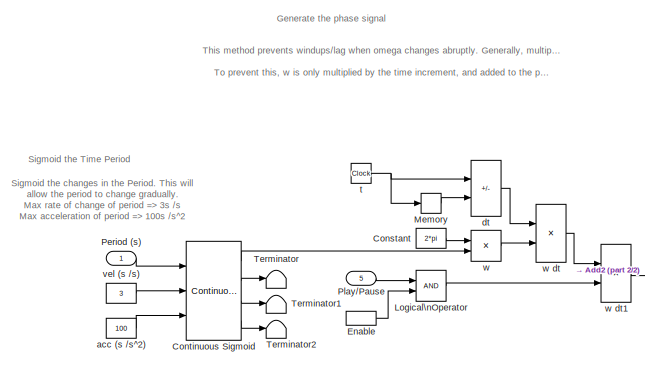
[diagram: MISSION SERVER QDRONE SWARM/n vehicles\nCircular Trajectories - part 1/2, top left region]
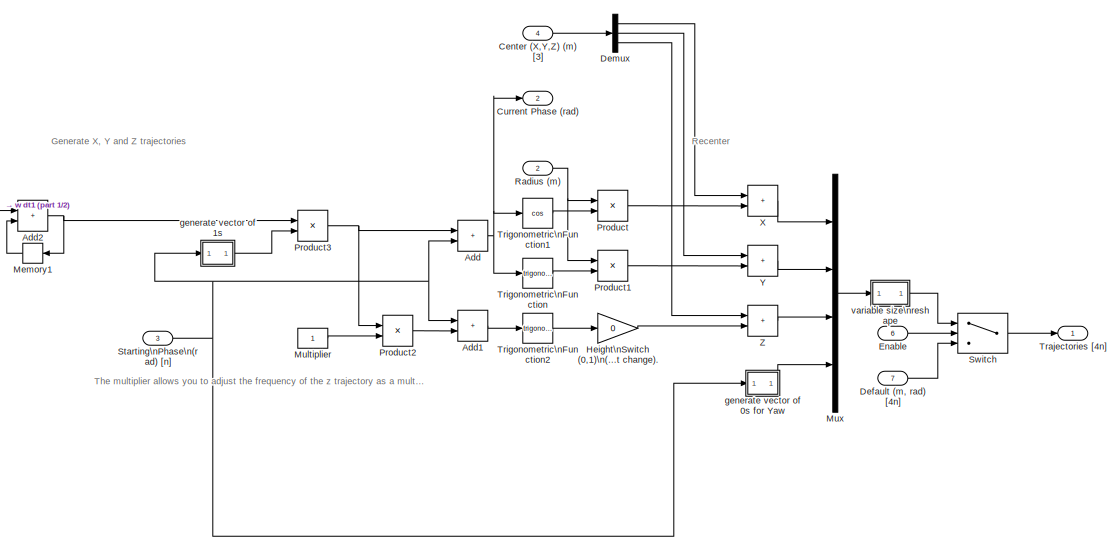
[diagram: MISSION SERVER QDRONE SWARM/n vehicles\nCircular Trajectories - part 2/2, right side, full height]
BLOCK [SubSystem] MISSION SERVER QDRONE SWARM/n vehicles\nCircular Trajectories
  Ports = [7, 2]
  RequestExecContextInheritance = off
  SID = 4632
BLOCK [InportShadow] MISSION SERVER QDRONE SWARM/n vehicles\nCircular Trajectories/ Enable 
  Port = 6
  SID = 4640
BLOCK [Sum] MISSION SERVER QDRONE SWARM/n vehicles\nCircular Trajectories/Add
  IconShape = rectangular
  Ports = [2, 1]
  SID = 4641
BLOCK [Sum] MISSION SERVER QDRONE SWARM/n vehicles\nCircular Trajectories/Add1
  IconShape = rectangular
  Ports = [2, 1]
  SID = 4642
BLOCK [Sum] MISSION SERVER QDRONE SWARM/n vehicles\nCircular Trajectories/Add2
  IconShape = rectangular
  Ports = [2, 1]
  SID = 4643
BLOCK [Inport] MISSION SERVER QDRONE SWARM/n vehicles\nCircular Trajectories/Center (X,Y,Z) (m) [3]
  Port = 4
  SID = 4636
BLOCK [Constant] MISSION SERVER QDRONE SWARM/n vehicles\nCircular Trajectories/Constant
  SID = 4644
  Value = 2*pi
BLOCK [Reference] MISSION SERVER QDRONE SWARM/n vehicles\nCircular Trajectories/Continuous Sigmoid  REF=quarc_library/Sources/Sigmoids/Continuous Sigmoid
  MultiThreadCoSim = auto
  Ports = [3, 4]
  SID = 4645
  SourceBlock = quarc_library/Sources/Sigmoids/Continuous Sigmoid
  SourceProductName = QUARC Targets
  SourceType = Continuous Sigmoid
  hold_off = 0.5
  initial_position = 10
  initial_velocity = 0
  input_sample_time = -1
  max_acceleration = 10
  max_velocity = 2
  output_sample_time = qc_get_step_size
  params_source = External (input ports)
BLOCK [Outport] MISSION SERVER QDRONE SWARM/n vehicles\nCircular Trajectories/Current Phase (rad)
  NameLocation = top
  Port = 2
  SID = 4678
  VectorParamsAs1DForOutWhenUnconnected = off
BLOCK [Inport] MISSION SERVER QDRONE SWARM/n vehicles\nCircular Trajectories/Default (m, rad) [4n]
  Port = 7
  SID = 4639
BLOCK [Demux] MISSION SERVER QDRONE SWARM/n vehicles\nCircular Trajectories/Demux
  Outputs = 3
  Ports = [1, 3]
  SID = 4646
BLOCK [Inport] MISSION SERVER QDRONE SWARM/n vehicles\nCircular Trajectories/Enable
  Port = 6
  SID = 4638
BLOCK [Gain] MISSION SERVER QDRONE SWARM/n vehicles\nCircular Trajectories/Height\nSwitch (0,1)\n(Make this 0\nto disable\nheight change).
  Gain = 0
  SID = 4647
BLOCK [Logic] MISSION SERVER QDRONE SWARM/n vehicles\nCircular Trajectories/Logical\nOperator
  AllPortsSameDT = off
  OutDataTypeStr = boolean
  Ports = [2, 1]
  SID = 4648
BLOCK [Memory] MISSION SERVER QDRONE SWARM/n vehicles\nCircular Trajectories/Memory
  SID = 4649
BLOCK [Memory] MISSION SERVER QDRONE SWARM/n vehicles\nCircular Trajectories/Memory1
  SID = 4650
BLOCK [Constant] MISSION SERVER QDRONE SWARM/n vehicles\nCircular Trajectories/Multiplier
  SID = 4651
BLOCK [Mux] MISSION SERVER QDRONE SWARM/n vehicles\nCircular Trajectories/Mux
  DisplayOption = bar
  Ports = [4, 1]
  SID = 4652
BLOCK [Inport] MISSION SERVER QDRONE SWARM/n vehicles\nCircular Trajectories/Period (s)
  SID = 4633
BLOCK [Inport] MISSION SERVER QDRONE SWARM/n vehicles\nCircular Trajectories/Play//Pause
  Port = 5
  SID = 4637
BLOCK [Product] MISSION SERVER QDRONE SWARM/n vehicles\nCircular Trajectories/Product
  Ports = [2, 1]
  SID = 4653
BLOCK [Product] MISSION SERVER QDRONE SWARM/n vehicles\nCircular Trajectories/Product1
  Ports = [2, 1]
  SID = 4654
BLOCK [Product] MISSION SERVER QDRONE SWARM/n vehicles\nCircular Trajectories/Product2
  Ports = [2, 1]
  SID = 4655
BLOCK [Product] MISSION SERVER QDRONE SWARM/n vehicles\nCircular Trajectories/Product3
  Ports = [2, 1]
  SID = 4656
BLOCK [Inport] MISSION SERVER QDRONE SWARM/n vehicles\nCircular Trajectories/Radius (m)
  Port = 2
  SID = 4634
BLOCK [Inport] MISSION SERVER QDRONE SWARM/n vehicles\nCircular Trajectories/Starting\nPhase\n(rad) [n]
  Port = 3
  SID = 4635
BLOCK [Switch] MISSION SERVER QDRONE SWARM/n vehicles\nCircular Trajectories/Switch
  Criteria = u2 > Threshold
  InputSameDT = off
  SID = 4657
  SaturateOnIntegerOverflow = off
BLOCK [Terminator] MISSION SERVER QDRONE SWARM/n vehicles\nCircular Trajectories/Terminator
  SID = 4658
BLOCK [Terminator] MISSION SERVER QDRONE SWARM/n vehicles\nCircular Trajectories/Terminator1
  SID = 4659
BLOCK [Terminator] MISSION SERVER QDRONE SWARM/n vehicles\nCircular Trajectories/Terminator2
  SID = 4660
BLOCK [Outport] MISSION SERVER QDRONE SWARM/n vehicles\nCircular Trajectories/Trajectories [4n]
  SID = 4677
  VectorParamsAs1DForOutWhenUnconnected = off
BLOCK [Trigonometry] MISSION SERVER QDRONE SWARM/n vehicles\nCircular Trajectories/Trigonometric\nFunction
  Ports = [1, 1]
  SID = 4661
BLOCK [Trigonometry] MISSION SERVER QDRONE SWARM/n vehicles\nCircular Trajectories/Trigonometric\nFunction1
  Operator = cos
  Ports = [1, 1]
  SID = 4662
BLOCK [Trigonometry] MISSION SERVER QDRONE SWARM/n vehicles\nCircular Trajectories/Trigonometric\nFunction2
  Ports = [1, 1]
  SID = 4663
BLOCK [Sum] MISSION SERVER QDRONE SWARM/n vehicles\nCircular Trajectories/X
  IconShape = rectangular
  Ports = [2, 1]
  SID = 4664
BLOCK [Sum] MISSION SERVER QDRONE SWARM/n vehicles\nCircular Trajectories/Y
  IconShape = rectangular
  Ports = [2, 1]
  SID = 4665
BLOCK [Sum] MISSION SERVER QDRONE SWARM/n vehicles\nCircular Trajectories/Z
  IconShape = rectangular
  Ports = [2, 1]
  SID = 4666
BLOCK [Constant] MISSION SERVER QDRONE SWARM/n vehicles\nCircular Trajectories/acc (s //s^2)
  SID = 4667
  Value = 100
BLOCK [Sum] MISSION SERVER QDRONE SWARM/n vehicles\nCircular Trajectories/dt
  IconShape = rectangular
  Inputs = +-
  Ports = [2, 1]
  SID = 4668
BLOCK [SubSystem] MISSION SERVER QDRONE SWARM/n vehicles\nCircular Trajectories/generate vector of 0s for Yaw
  ErrorFcn = Stateflow.Translate.translate
  PermitHierarchicalResolution = ExplicitOnly
  Ports = [1, 1]
  RequestExecContextInheritance = off
  SFBlockType = MATLAB Function
  SID = 4669
  TreatAsAtomicUnit = on
BLOCK [Demux] MISSION SERVER QDRONE SWARM/n vehicles\nCircular Trajectories/generate vector of 0s for Yaw/ Demux 
  Outputs = 1
  Ports = [1, 1]
  SID = 4669::41
BLOCK [S-Function] MISSION SERVER QDRONE SWARM/n vehicles\nCircular Trajectories/generate vector of 0s for Yaw/ SFunction 
  EnableBusSupport = off
  FunctionName = sf_sfun
  PortCounts = [1 2]
  Ports = [1, 2]
  SFcnIsStateOwnerBlock = off
  SFunctionDeploymentMode = off
  SID = 4669::40
  Tag = Stateflow S-Function 1
BLOCK [Terminator] MISSION SERVER QDRONE SWARM/n vehicles\nCircular Trajectories/generate vector of 0s for Yaw/ Terminator 
  SID = 4669::42
BLOCK [Inport] MISSION SERVER QDRONE SWARM/n vehicles\nCircular Trajectories/generate vector of 0s for Yaw/u
  SID = 4669::1
BLOCK [Outport] MISSION SERVER QDRONE SWARM/n vehicles\nCircular Trajectories/generate vector of 0s for Yaw/y
  SID = 4669::5
  VectorParamsAs1DForOutWhenUnconnected = off
BLOCK [SubSystem] MISSION SERVER QDRONE SWARM/n vehicles\nCircular Trajectories/generate vector of 1s
  ErrorFcn = Stateflow.Translate.translate
  NameLocation = top
  PermitHierarchicalResolution = ExplicitOnly
  Ports = [1, 1]
  RequestExecContextInheritance = off
  SFBlockType = MATLAB Function
  SID = 4670
  TreatAsAtomicUnit = on
BLOCK [Demux] MISSION SERVER QDRONE SWARM/n vehicles\nCircular Trajectories/generate vector of 1s/ Demux 
  Outputs = 1
  Ports = [1, 1]
  SID = 4670::41
BLOCK [S-Function] MISSION SERVER QDRONE SWARM/n vehicles\nCircular Trajectories/generate vector of 1s/ SFunction 
  EnableBusSupport = off
  FunctionName = sf_sfun
  PortCounts = [1 2]
  Ports = [1, 2]
  SFcnIsStateOwnerBlock = off
  SFunctionDeploymentMode = off
  SID = 4670::40
  Tag = Stateflow S-Function 4
BLOCK [Terminator] MISSION SERVER QDRONE SWARM/n vehicles\nCircular Trajectories/generate vector of 1s/ Terminator 
  SID = 4670::42
BLOCK [Inport] MISSION SERVER QDRONE SWARM/n vehicles\nCircular Trajectories/generate vector of 1s/u
  SID = 4670::1
BLOCK [Outport] MISSION SERVER QDRONE SWARM/n vehicles\nCircular Trajectories/generate vector of 1s/y
  SID = 4670::5
  VectorParamsAs1DForOutWhenUnconnected = off
BLOCK [Clock] MISSION SERVER QDRONE SWARM/n vehicles\nCircular Trajectories/t
  Decimation = 1
  SID = 4671
BLOCK [SubSystem] MISSION SERVER QDRONE SWARM/n vehicles\nCircular Trajectories/variable size\nreshape
  ErrorFcn = Stateflow.Translate.translate
  NameLocation = top
  PermitHierarchicalResolution = ExplicitOnly
  Ports = [1, 1]
  RequestExecContextInheritance = off
  SFBlockType = MATLAB Function
  SID = 4672
  TreatAsAtomicUnit = on
BLOCK [Demux] MISSION SERVER QDRONE SWARM/n vehicles\nCircular Trajectories/variable size\nreshape/ Demux 
  Outputs = 1
  Ports = [1, 1]
  SID = 4672::41
BLOCK [S-Function] MISSION SERVER QDRONE SWARM/n vehicles\nCircular Trajectories/variable size\nreshape/ SFunction 
  EnableBusSupport = off
  FunctionName = sf_sfun
  PortCounts = [1 2]
  Ports = [1, 2]
  SFcnIsStateOwnerBlock = off
  SFunctionDeploymentMode = off
  SID = 4672::40
  Tag = Stateflow S-Function 5
BLOCK [Terminator] MISSION SERVER QDRONE SWARM/n vehicles\nCircular Trajectories/variable size\nreshape/ Terminator 
  SID = 4672::42
BLOCK [Inport] MISSION SERVER QDRONE SWARM/n vehicles\nCircular Trajectories/variable size\nreshape/u
  SID = 4672::1
BLOCK [Outport] MISSION SERVER QDRONE SWARM/n vehicles\nCircular Trajectories/variable size\nreshape/y
  SID = 4672::5
  VectorParamsAs1DForOutWhenUnconnected = off
BLOCK [Constant] MISSION SERVER QDRONE SWARM/n vehicles\nCircular Trajectories/vel (s //s)
  SID = 4673
  Value = 3
BLOCK [Product] MISSION SERVER QDRONE SWARM/n vehicles\nCircular Trajectories/w
  Inputs = */
  Ports = [2, 1]
  SID = 4674
BLOCK [Product] MISSION SERVER QDRONE SWARM/n vehicles\nCircular Trajectories/w dt
  Ports = [2, 1]
  SID = 4675
BLOCK [Product] MISSION SERVER QDRONE SWARM/n vehicles\nCircular Trajectories/w dt1
  Ports = [2, 1]
  SID = 4676
BLOCK [Mux] Mux
  DisplayOption = bar
  Inputs = 2
  Ports = [2, 1]
  SID = 4817
BLOCK [Mux] Mux1
  DisplayOption = bar
  Inputs = 2
  Ports = [2, 1]
  SID = 4818
BLOCK [Mux] Mux2
  DisplayOption = bar
  Inputs = 5
  Ports = [5, 1]
  SID = 4821
BLOCK [Mux] Mux3
  DisplayOption = bar
  Inputs = 5
  Ports = [5, 1]
  SID = 4820
BLOCK [Reference] Quanser  REF=quarc_library/Logos/Quanser
  Ports = []
  RTWMemSecDataConstants = Inherit from model
  RTWMemSecDataInternal = Inherit from model
  RTWMemSecDataParameters = Inherit from model
  RTWMemSecFuncExecute = Inherit from model
  RTWMemSecFuncInitTerm = Inherit from model
  SID = 3945
  SourceBlock = quarc_library/Logos/Quanser
  SourceProductName = QUARC Targets
  SourceType = Powered by Quanser
ANNOTATION (root): \n \n Modifying the Mission Server Swarm Model to include /exclude vehicles (root level): \n \n Adding units: \n Add a Communication V X subsystem where X corresponds to the number of the additional unit you want to include. Since this is a 6 vehicle swarm adding one unit will require a Communication V7 subsystem. \n Inside the new Communication V X subsystem modify the Model Arguments block to se...<+1687ch>
ANNOTATION (root): \n \n This model is an example of a 6 vehicle swarm formation. \n \n Instructions on how to run the model: \n \n 1. Under the MISSION SERVER QDRONE HOVER subsystem, open the the Joystick subsystem, and ensure that the Host Game Controller block's Controller Number parameter is set to SPEKTRUM RECEIVER NOTE : In case of unexpected behaviour or emergencies, use the Emergency Abort to cut all power t...<+864ch>
ANNOTATION (root): \n \n Quanser Autonomous Vehicles Research Studio Mission Server-Swarm
ANNOTATION MISSION SERVER QDRONE SWARM: \n \n Commands Interface - connects the user to the joystick to send ARM, TAKEOFF, ESTOP commands etc. Also provides a. ENABLE - to switch from home to circular trajectories and b. PLAY/PAUSE - to start/pause circular trajectories \n Localization Data Server - provides localization estimates from the Optitrack Camera system \n Command Generation - Sends corresponding trajectoriy commands to each v...<+568ch>
ANNOTATION MISSION SERVER QDRONE SWARM: \n \n Modifying the Mission Server Swarm Model to include /exclude vehicles (Mission server level): \n \n NOTE: DO NOT uncomment the sample blocks, these are meant to serve as examples of what needs to be modified. Modify the Data Server subsystem FIRST before making changes to this subsystem. \n \n Adding\\removing units: \n Use a new Exract Vehicle Data subsystem and connect input one to the Dat...<+272ch>
ANNOTATION MISSION SERVER QDRONE SWARM: \n \n 2. Use the group defined at the bottom for every vehicle you want to add. An example of what would be needed for a 7th vehicle is commented in the group bellow.
ANNOTATION MISSION SERVER QDRONE SWARM: \n \n 3. The trajectory generator needs to be modified to include the added vehicle. In this example \n the specified trajectory gives commands to the agents to follow a circular trajectory. The starting phase \n is defined as 2*pi*[n agents]./n, ex. : 2*pi*[0 1 2 3 4 5]./6 which is the current set up for this model. For \n 7 agents the strating phase would look like : 2*pi*[0 1 2 3 4 5 6]./7. \n ...<+431ch>
ANNOTATION MISSION SERVER QDRONE SWARM: Command Generation V1
ANNOTATION MISSION SERVER QDRONE SWARM: Command Generation V2
ANNOTATION MISSION SERVER QDRONE SWARM: Command Generation V7
ANNOTATION MISSION SERVER QDRONE SWARM: Commands Interface
ANNOTATION MISSION SERVER QDRONE SWARM: Communication and Loopback time monitoring
ANNOTATION MISSION SERVER QDRONE SWARM: Custom
ANNOTATION MISSION SERVER QDRONE SWARM: Data Logging
ANNOTATION MISSION SERVER QDRONE SWARM: Home
ANNOTATION MISSION SERVER QDRONE SWARM: Localization Data Server
ANNOTATION MISSION SERVER QDRONE SWARM: Pause
ANNOTATION MISSION SERVER QDRONE SWARM: Play
ANNOTATION MISSION SERVER QDRONE SWARM: Sample Vehicle data extraction for agent #7.
ANNOTATION MISSION SERVER QDRONE SWARM: Trajectory Generation
ANNOTATION MISSION SERVER QDRONE SWARM/Calculate Home Pose V1: \n \n This subsystem waits during the first 5 seconds of starting the Mission Server before passing any post measurement. \n This is to let the initial transient settles down (initialization, communication with the localization system, etc). \n After the first 5 seconds, this subsystem will latch and pass along the pose measure as the QDrone Home Pose when \n the ARM signal is received. \n This ho...<+255ch>
ANNOTATION MISSION SERVER QDRONE SWARM/Calculate Home Pose V2: \n \n This subsystem waits during the first 5 seconds of starting the Mission Server before passing any post measurement. \n This is to let the initial transient settles down (initialization, communication with the localization system, etc). \n After the first 5 seconds, this subsystem will latch and pass along the pose measure as the QDrone Home Pose when \n the ARM signal is received. \n This ho...<+255ch>
ANNOTATION MISSION SERVER QDRONE SWARM/Calculate Home Pose V7: \n \n This subsystem waits during the first 5 seconds of starting the Mission Server before passing any post measurement. \n This is to let the initial transient settles down (initialization, communication with the localization system, etc). \n After the first 5 seconds, this subsystem will latch and pass along the pose measure as the QDrone Home Pose when \n the ARM signal is received. \n This ho...<+255ch>
ANNOTATION MISSION SERVER QDRONE SWARM/Communications Check: Pass along the communication issue flag only after the connection with the vehicle model was established.
ANNOTATION MISSION SERVER QDRONE SWARM/Communications Check/Triggered Subsystem: This looks for the first falling edge to trigger a communication issue, \nbecause the mission server model starts first.
ANNOTATION MISSION SERVER QDRONE SWARM/Communications Check/Triggered Subsystem1: This looks for the first falling edge to trigger a communication issue, \nbecause the mission server model starts first.
ANNOTATION MISSION SERVER QDRONE SWARM/Data Server\n(Localization) : \n \n Double-click on the OptiTrack Trackables block. \n Click on the ... icon under Calibration file: and select the .cal file created when calibrating the Optitrack cameras \n Click on the ... icon under Trackables definition file: and select the trackables file created when defining rigid bodies (for the QDrone you are about to use) \n
ANNOTATION MISSION SERVER QDRONE SWARM/Data Server\n(Localization) : \n \n Modifying the number of agents: \n \n Based on the Trackables definition file the agents for a six vehicle example are defined in the Trackable IDs as [ 1 2 3 4 5 6]. Be consistent when setting up the order for the Trackable IDs and which agent is considered vehicle 1 in this simulation. If the order in the trackable IDs is not consistent with the the way the vehicles have been defined in th...<+347ch>
ANNOTATION MISSION SERVER QDRONE SWARM/Data Server\n(Localization) : \n \n Order of data: \n \n positions for n vehicle [xyz] \n rotations for n vehciles [roll pitch yaw] \n Tracking for n vehicles [isTracking]
ANNOTATION MISSION SERVER QDRONE SWARM/Data Server\n(Localization) /Convention Correction\n(Motive Frame to Research Studio Frame) - Drone 1: \n \n This subsystem converts measurements in the Motive Frame (MF)(raw optitrack) into the Research Studio Frame (RSF).
ANNOTATION MISSION SERVER QDRONE SWARM/Data Server\n(Localization) /Convention Correction\n(Motive Frame to Research Studio Frame) - Drone 1: MF_R_RSF
ANNOTATION MISSION SERVER QDRONE SWARM/Data Server\n(Localization) /Convention Correction\n(Motive Frame to Research Studio Frame) - Drone 1: RPY in MF
ANNOTATION MISSION SERVER QDRONE SWARM/Data Server\n(Localization) /Convention Correction\n(Motive Frame to Research Studio Frame) - Drone 1: RPY in RSF
ANNOTATION MISSION SERVER QDRONE SWARM/Data Server\n(Localization) /Convention Correction\n(Motive Frame to Research Studio Frame) - Drone 1: RSF_R_MF
ANNOTATION MISSION SERVER QDRONE SWARM/Data Server\n(Localization) /Convention Correction\n(Motive Frame to Research Studio Frame) - Drone 1: XYZ in MF
ANNOTATION MISSION SERVER QDRONE SWARM/Data Server\n(Localization) /Convention Correction\n(Motive Frame to Research Studio Frame) - Drone 1: XYZ in RSF
ANNOTATION MISSION SERVER QDRONE SWARM/Data Server\n(Localization) /Convention Correction\n(Motive Frame to Research Studio Frame) - Drone 1: attitude
ANNOTATION MISSION SERVER QDRONE SWARM/Data Server\n(Localization) /Convention Correction\n(Motive Frame to Research Studio Frame) - Drone 1: position
ANNOTATION MISSION SERVER QDRONE SWARM/Data Server\n(Localization) /Convention Correction\n(Motive Frame to Research Studio Frame) - Drone 1/Prevent Gimbal Lock: \n \n Remapping the rotation order to prevent gimbal lock \n in heading/yaw due to Euler singularity condition
ANNOTATION MISSION SERVER QDRONE SWARM/Data Server\n(Localization) /Convention Correction\n(Motive Frame to Research Studio Frame) - Drone 2: \n \n This subsystem converts measurements in the Motive Frame (MF)(raw optitrack) into the Research Studio Frame (RSF).
ANNOTATION MISSION SERVER QDRONE SWARM/Data Server\n(Localization) /Convention Correction\n(Motive Frame to Research Studio Frame) - Drone 2: MF_R_RSF
ANNOTATION MISSION SERVER QDRONE SWARM/Data Server\n(Localization) /Convention Correction\n(Motive Frame to Research Studio Frame) - Drone 2: RPY in MF
ANNOTATION MISSION SERVER QDRONE SWARM/Data Server\n(Localization) /Convention Correction\n(Motive Frame to Research Studio Frame) - Drone 2: RPY in RSF
ANNOTATION MISSION SERVER QDRONE SWARM/Data Server\n(Localization) /Convention Correction\n(Motive Frame to Research Studio Frame) - Drone 2: RSF_R_MF
ANNOTATION MISSION SERVER QDRONE SWARM/Data Server\n(Localization) /Convention Correction\n(Motive Frame to Research Studio Frame) - Drone 2: XYZ in MF
ANNOTATION MISSION SERVER QDRONE SWARM/Data Server\n(Localization) /Convention Correction\n(Motive Frame to Research Studio Frame) - Drone 2: XYZ in RSF
ANNOTATION MISSION SERVER QDRONE SWARM/Data Server\n(Localization) /Convention Correction\n(Motive Frame to Research Studio Frame) - Drone 2: attitude
ANNOTATION MISSION SERVER QDRONE SWARM/Data Server\n(Localization) /Convention Correction\n(Motive Frame to Research Studio Frame) - Drone 2: position
ANNOTATION MISSION SERVER QDRONE SWARM/Data Server\n(Localization) /Convention Correction\n(Motive Frame to Research Studio Frame) - Drone 2/Prevent Gimbal Lock: \n \n Remapping the rotation order to prevent gimbal lock \n in heading/yaw due to Euler singularity condition
ANNOTATION MISSION SERVER QDRONE SWARM/JOYSTICK: Throttle\nRoll\nPitch \nYaw
ANNOTATION MISSION SERVER QDRONE SWARM/JOYSTICK/Pulse Check: \n \n For this subsystem we will count the number of new pulses. The data can be considered enabled once the count of new signals has gone beyond 2. This will enable the Initializing and conditioning subsystem.
ANNOTATION MISSION SERVER QDRONE SWARM/JOYSTICK/Spectrum DXe Mapping: -0.5 <= Rx <= 0.5
ANNOTATION MISSION SERVER QDRONE SWARM/JOYSTICK/Spectrum DXe Mapping: -0.5 <= x <= 0.5
ANNOTATION MISSION SERVER QDRONE SWARM/JOYSTICK/Spectrum DXe Mapping: -0.5 <= y <= 0.5
ANNOTATION MISSION SERVER QDRONE SWARM/JOYSTICK/Spectrum DXe Mapping: -0.5 <= z <= 0.5
ANNOTATION MISSION SERVER QDRONE SWARM/JOYSTICK/Spectrum DXe Mapping: -1 <= Pitch <= 1
ANNOTATION MISSION SERVER QDRONE SWARM/JOYSTICK/Spectrum DXe Mapping: -1 <= Roll <= 1
ANNOTATION MISSION SERVER QDRONE SWARM/JOYSTICK/Spectrum DXe Mapping: -1 <= Ry <= 1
ANNOTATION MISSION SERVER QDRONE SWARM/JOYSTICK/Spectrum DXe Mapping: -1 <= Yaw <= 1
ANNOTATION MISSION SERVER QDRONE SWARM/JOYSTICK/Spectrum DXe Mapping: 0 <= Slider[1] <= 1
ANNOTATION MISSION SERVER QDRONE SWARM/JOYSTICK/Spectrum DXe Mapping: 0 <= Throttle <= 1
ANNOTATION MISSION SERVER QDRONE SWARM/JOYSTICK/Spectrum DXe Mapping: \n \n NOTE: Takeoff signal mapping changed starting in QUARC 2020 SP2: \n \n - For QUARC 2020 SP1 and earlier: Takeoff signal mapped to Slider Channel 1 \n - For QUARC 2020 SP2 and later: Takeoff signal mapped to Slider Channel 2 \n \n Change the Selector channel according to QUARC version as needed! \n
ANNOTATION MISSION SERVER QDRONE SWARM/Measurement Conditioning 1: Position and Position Rate Estimates Conditioning
ANNOTATION MISSION SERVER QDRONE SWARM/Measurement Conditioning 2: Position and Position Rate Estimates Conditioning
ANNOTATION MISSION SERVER QDRONE SWARM/Measurement Conditioning 7: Position and Position Rate Estimates Conditioning
ANNOTATION MISSION SERVER QDRONE SWARM/n vehicles\nCircular Trajectories: Generate X, Y and Z trajectories
ANNOTATION MISSION SERVER QDRONE SWARM/n vehicles\nCircular Trajectories: Generate the phase signal
ANNOTATION MISSION SERVER QDRONE SWARM/n vehicles\nCircular Trajectories: Recenter
ANNOTATION MISSION SERVER QDRONE SWARM/n vehicles\nCircular Trajectories: Sigmoid the Time Period
ANNOTATION MISSION SERVER QDRONE SWARM/n vehicles\nCircular Trajectories: Sigmoid the changes in the Period. This will \nallow the period to change gradually. \nMax rate of change of period => 3s /s\nMax acceleration of period => 100s /s^2
ANNOTATION MISSION SERVER QDRONE SWARM/n vehicles\nCircular Trajectories: The multiplier allows you to adjust the frequency of the z trajectory as a multiple of 2*pi/T without altering the x and y trajectories. Set to a default of 1.
ANNOTATION MISSION SERVER QDRONE SWARM/n vehicles\nCircular Trajectories: This method prevents windups/lag when omega changes abruptly. Generally, multiplying w with t directly would work. However, when T increases, w decreases, causing \"w t\" to decrease as well. This will cause unrealistic/discontinuous changes in the trajectories generated downstream. \n\nTo prevent this, w is only multiplied by the time increment, and added to the previous \"w t\" value.
LINE Communication V1/Constant:1 -> Communication V1/Stream Server:2
LINE Communication V1/Data In:1 -> Communication V1/Stream Server:1
LINE Communication V1/Detect Communication loss/Data Type Conversion:1 -> Communication V1/Detect Communication loss/Communication Issue (0,1):1
LINE Communication V1/Detect Communication loss/Error:1 -> Communication V1/Detect Communication loss/MATLAB Function:3
LINE Communication V1/Detect Communication loss/MATLAB Function/ Demux :1 -> Communication V1/Detect Communication loss/MATLAB Function/ Terminator :1
LINE Communication V1/Detect Communication loss/MATLAB Function/ SFunction :1 -> Communication V1/Detect Communication loss/MATLAB Function/ Demux :1
LINE Communication V1/Detect Communication loss/MATLAB Function/ SFunction :2 -> Communication V1/Detect Communication loss/MATLAB Function/stream_connection_loss:1
LINE Communication V1/Detect Communication loss/MATLAB Function/error:1 -> Communication V1/Detect Communication loss/MATLAB Function/ SFunction :3
LINE Communication V1/Detect Communication loss/MATLAB Function/state:1 -> Communication V1/Detect Communication loss/MATLAB Function/ SFunction :2
LINE Communication V1/Detect Communication loss/MATLAB Function/time:1 -> Communication V1/Detect Communication loss/MATLAB Function/ SFunction :1
LINE Communication V1/Detect Communication loss/MATLAB Function:1 -> Communication V1/Detect Communication loss/Threshold:1
LINE Communication V1/Detect Communication loss/State:1 -> Communication V1/Detect Communication loss/MATLAB Function:2
LINE Communication V1/Detect Communication loss/Threshold:1 -> Communication V1/Detect Communication loss/Data Type Conversion:1
LINE Communication V1/Detect Communication loss/Threshold:2 -> Communication V1/Detect Communication loss/Terminator2:1
LINE Communication V1/Detect Communication loss/Time:1 -> Communication V1/Detect Communication loss/MATLAB Function:1
LINE Communication V1/Detect Communication loss:1 -> Communication V1/Communication Issue:1
NET Communication V1/Model Argument:1 -> Communication V1/Stream Server:3, Communication V1/String Display :1
LINE Communication V1/Stream Server:1 -> Communication V1/Detect Communication loss:1
LINE Communication V1/Stream Server:2 -> Communication V1/Detect Communication loss:2
LINE Communication V1/Stream Server:3 -> Communication V1/Terminator2:1
LINE Communication V1/Stream Server:4 -> Communication V1/Data Out:1
LINE Communication V1/Stream Server:5 -> Communication V1/Terminator1:1
LINE Communication V1:1 -> Mux1:1
LINE Communication V1:2 -> Mux:1
LINE Communication V2/Constant:1 -> Communication V2/Stream Server:2
LINE Communication V2/Data In:1 -> Communication V2/Stream Server:1
LINE Communication V2/Detect Communication loss/Data Type Conversion:1 -> Communication V2/Detect Communication loss/Communication Issue (0,1):1
LINE Communication V2/Detect Communication loss/Error:1 -> Communication V2/Detect Communication loss/MATLAB Function:3
LINE Communication V2/Detect Communication loss/MATLAB Function/ Demux :1 -> Communication V2/Detect Communication loss/MATLAB Function/ Terminator :1
LINE Communication V2/Detect Communication loss/MATLAB Function/ SFunction :1 -> Communication V2/Detect Communication loss/MATLAB Function/ Demux :1
LINE Communication V2/Detect Communication loss/MATLAB Function/ SFunction :2 -> Communication V2/Detect Communication loss/MATLAB Function/stream_connection_loss:1
LINE Communication V2/Detect Communication loss/MATLAB Function/error:1 -> Communication V2/Detect Communication loss/MATLAB Function/ SFunction :3
LINE Communication V2/Detect Communication loss/MATLAB Function/state:1 -> Communication V2/Detect Communication loss/MATLAB Function/ SFunction :2
LINE Communication V2/Detect Communication loss/MATLAB Function/time:1 -> Communication V2/Detect Communication loss/MATLAB Function/ SFunction :1
LINE Communication V2/Detect Communication loss/MATLAB Function:1 -> Communication V2/Detect Communication loss/Threshold:1
LINE Communication V2/Detect Communication loss/State:1 -> Communication V2/Detect Communication loss/MATLAB Function:2
LINE Communication V2/Detect Communication loss/Threshold:1 -> Communication V2/Detect Communication loss/Data Type Conversion:1
LINE Communication V2/Detect Communication loss/Threshold:2 -> Communication V2/Detect Communication loss/Terminator2:1
LINE Communication V2/Detect Communication loss/Time:1 -> Communication V2/Detect Communication loss/MATLAB Function:1
LINE Communication V2/Detect Communication loss:1 -> Communication V2/Communication Issue:1
NET Communication V2/Model Argument:1 -> Communication V2/Stream Server:3, Communication V2/String Display :1
LINE Communication V2/Stream Server:1 -> Communication V2/Detect Communication loss:1
LINE Communication V2/Stream Server:2 -> Communication V2/Detect Communication loss:2
LINE Communication V2/Stream Server:3 -> Communication V2/Terminator2:1
LINE Communication V2/Stream Server:4 -> Communication V2/Data Out:1
LINE Communication V2/Stream Server:5 -> Communication V2/Terminator1:1
LINE Communication V2:1 -> Mux1:2
LINE Communication V2:2 -> Mux:2
LINE MISSION SERVER QDRONE SWARM/          6:1 -> MISSION SERVER QDRONE SWARM/master_switch:1
LINE MISSION SERVER QDRONE SWARM/   6:1 -> MISSION SERVER QDRONE SWARM/master_switch:2
LINE MISSION SERVER QDRONE SWARM/Calculate Home Pose V1/Arm(0,1):1 -> MISSION SERVER QDRONE SWARM/Calculate Home Pose V1/One Shot:1
LINE MISSION SERVER QDRONE SWARM/Calculate Home Pose V1/Clock:1 -> MISSION SERVER QDRONE SWARM/Calculate Home Pose V1/Compare\nTo Constant:1
LINE MISSION SERVER QDRONE SWARM/Calculate Home Pose V1/Compare\nTo Constant:1 -> MISSION SERVER QDRONE SWARM/Calculate Home Pose V1/Logical\nOperator:1
LINE MISSION SERVER QDRONE SWARM/Calculate Home Pose V1/Constant1:1 -> MISSION SERVER QDRONE SWARM/Calculate Home Pose V1/One Shot:3
LINE MISSION SERVER QDRONE SWARM/Calculate Home Pose V1/Constant:1 -> MISSION SERVER QDRONE SWARM/Calculate Home Pose V1/One Shot:2
LINE MISSION SERVER QDRONE SWARM/Calculate Home Pose V1/Demux:1 -> MISSION SERVER QDRONE SWARM/Calculate Home Pose V1/Mux:1
LINE MISSION SERVER QDRONE SWARM/Calculate Home Pose V1/Demux:2 -> MISSION SERVER QDRONE SWARM/Calculate Home Pose V1/Mux:2
LINE MISSION SERVER QDRONE SWARM/Calculate Home Pose V1/Demux:3 -> MISSION SERVER QDRONE SWARM/Calculate Home Pose V1/Sum:1
LINE MISSION SERVER QDRONE SWARM/Calculate Home Pose V1/Demux:4 -> MISSION SERVER QDRONE SWARM/Calculate Home Pose V1/Mux:4
LINE MISSION SERVER QDRONE SWARM/Calculate Home Pose V1/Enabled\nSubsystem/Pose (m, rad ) [4] :1 -> MISSION SERVER QDRONE SWARM/Calculate Home Pose V1/Enabled\nSubsystem/Home Pose (m, rad ) [4]:1
LINE MISSION SERVER QDRONE SWARM/Calculate Home Pose V1/Enabled\nSubsystem:1 -> MISSION SERVER QDRONE SWARM/Calculate Home Pose V1/Demux:1
LINE MISSION SERVER QDRONE SWARM/Calculate Home Pose V1/Home height (m):1 -> MISSION SERVER QDRONE SWARM/Calculate Home Pose V1/Sum:2
LINE MISSION SERVER QDRONE SWARM/Calculate Home Pose V1/Logical\nOperator:1 -> MISSION SERVER QDRONE SWARM/Calculate Home Pose V1/Enabled\nSubsystem:enable
LINE MISSION SERVER QDRONE SWARM/Calculate Home Pose V1/Mux:1 -> MISSION SERVER QDRONE SWARM/Calculate Home Pose V1/Home Pose (m, rad) [4]:1
LINE MISSION SERVER QDRONE SWARM/Calculate Home Pose V1/One Shot:1 -> MISSION SERVER QDRONE SWARM/Calculate Home Pose V1/Logical\nOperator:2
LINE MISSION SERVER QDRONE SWARM/Calculate Home Pose V1/Pose (m, rad ) [4]:1 -> MISSION SERVER QDRONE SWARM/Calculate Home Pose V1/Enabled\nSubsystem:1
LINE MISSION SERVER QDRONE SWARM/Calculate Home Pose V1/Sum:1 -> MISSION SERVER QDRONE SWARM/Calculate Home Pose V1/Mux:3
NET MISSION SERVER QDRONE SWARM/Calculate Home Pose V1:1 -> MISSION SERVER QDRONE SWARM/Goto14:1, MISSION SERVER QDRONE SWARM/Switch:3
LINE MISSION SERVER QDRONE SWARM/Calculate Home Pose V2/Arm(0,1):1 -> MISSION SERVER QDRONE SWARM/Calculate Home Pose V2/One Shot:1
LINE MISSION SERVER QDRONE SWARM/Calculate Home Pose V2/Clock:1 -> MISSION SERVER QDRONE SWARM/Calculate Home Pose V2/Compare\nTo Constant:1
LINE MISSION SERVER QDRONE SWARM/Calculate Home Pose V2/Compare\nTo Constant:1 -> MISSION SERVER QDRONE SWARM/Calculate Home Pose V2/Logical\nOperator:1
LINE MISSION SERVER QDRONE SWARM/Calculate Home Pose V2/Constant1:1 -> MISSION SERVER QDRONE SWARM/Calculate Home Pose V2/One Shot:3
LINE MISSION SERVER QDRONE SWARM/Calculate Home Pose V2/Constant:1 -> MISSION SERVER QDRONE SWARM/Calculate Home Pose V2/One Shot:2
LINE MISSION SERVER QDRONE SWARM/Calculate Home Pose V2/Demux:1 -> MISSION SERVER QDRONE SWARM/Calculate Home Pose V2/Mux:1
LINE MISSION SERVER QDRONE SWARM/Calculate Home Pose V2/Demux:2 -> MISSION SERVER QDRONE SWARM/Calculate Home Pose V2/Mux:2
LINE MISSION SERVER QDRONE SWARM/Calculate Home Pose V2/Demux:3 -> MISSION SERVER QDRONE SWARM/Calculate Home Pose V2/Sum:1
LINE MISSION SERVER QDRONE SWARM/Calculate Home Pose V2/Demux:4 -> MISSION SERVER QDRONE SWARM/Calculate Home Pose V2/Mux:4
LINE MISSION SERVER QDRONE SWARM/Calculate Home Pose V2/Enabled\nSubsystem/Pose (m, rad ) [4] :1 -> MISSION SERVER QDRONE SWARM/Calculate Home Pose V2/Enabled\nSubsystem/Home Pose (m, rad ) [4]:1
LINE MISSION SERVER QDRONE SWARM/Calculate Home Pose V2/Enabled\nSubsystem:1 -> MISSION SERVER QDRONE SWARM/Calculate Home Pose V2/Demux:1
LINE MISSION SERVER QDRONE SWARM/Calculate Home Pose V2/Home height (m):1 -> MISSION SERVER QDRONE SWARM/Calculate Home Pose V2/Sum:2
LINE MISSION SERVER QDRONE SWARM/Calculate Home Pose V2/Logical\nOperator:1 -> MISSION SERVER QDRONE SWARM/Calculate Home Pose V2/Enabled\nSubsystem:enable
LINE MISSION SERVER QDRONE SWARM/Calculate Home Pose V2/Mux:1 -> MISSION SERVER QDRONE SWARM/Calculate Home Pose V2/Home Pose (m, rad) [4]:1
LINE MISSION SERVER QDRONE SWARM/Calculate Home Pose V2/One Shot:1 -> MISSION SERVER QDRONE SWARM/Calculate Home Pose V2/Logical\nOperator:2
LINE MISSION SERVER QDRONE SWARM/Calculate Home Pose V2/Pose (m, rad ) [4]:1 -> MISSION SERVER QDRONE SWARM/Calculate Home Pose V2/Enabled\nSubsystem:1
LINE MISSION SERVER QDRONE SWARM/Calculate Home Pose V2/Sum:1 -> MISSION SERVER QDRONE SWARM/Calculate Home Pose V2/Mux:3
NET MISSION SERVER QDRONE SWARM/Calculate Home Pose V2:1 -> MISSION SERVER QDRONE SWARM/Goto15:1, MISSION SERVER QDRONE SWARM/Switch1:3
LINE MISSION SERVER QDRONE SWARM/Calculate Home Pose V7/Arm(0,1):1 -> MISSION SERVER QDRONE SWARM/Calculate Home Pose V7/One Shot:1
LINE MISSION SERVER QDRONE SWARM/Calculate Home Pose V7/Clock:1 -> MISSION SERVER QDRONE SWARM/Calculate Home Pose V7/Compare\nTo Constant:1
LINE MISSION SERVER QDRONE SWARM/Calculate Home Pose V7/Compare\nTo Constant:1 -> MISSION SERVER QDRONE SWARM/Calculate Home Pose V7/Logical\nOperator:1
LINE MISSION SERVER QDRONE SWARM/Calculate Home Pose V7/Constant1:1 -> MISSION SERVER QDRONE SWARM/Calculate Home Pose V7/One Shot:3
LINE MISSION SERVER QDRONE SWARM/Calculate Home Pose V7/Constant:1 -> MISSION SERVER QDRONE SWARM/Calculate Home Pose V7/One Shot:2
LINE MISSION SERVER QDRONE SWARM/Calculate Home Pose V7/Demux:1 -> MISSION SERVER QDRONE SWARM/Calculate Home Pose V7/Mux:1
LINE MISSION SERVER QDRONE SWARM/Calculate Home Pose V7/Demux:2 -> MISSION SERVER QDRONE SWARM/Calculate Home Pose V7/Mux:2
LINE MISSION SERVER QDRONE SWARM/Calculate Home Pose V7/Demux:3 -> MISSION SERVER QDRONE SWARM/Calculate Home Pose V7/Sum:1
LINE MISSION SERVER QDRONE SWARM/Calculate Home Pose V7/Demux:4 -> MISSION SERVER QDRONE SWARM/Calculate Home Pose V7/Mux:4
LINE MISSION SERVER QDRONE SWARM/Calculate Home Pose V7/Enabled\nSubsystem/Pose (m, rad ) [4] :1 -> MISSION SERVER QDRONE SWARM/Calculate Home Pose V7/Enabled\nSubsystem/Home Pose (m, rad ) [4]:1
LINE MISSION SERVER QDRONE SWARM/Calculate Home Pose V7/Enabled\nSubsystem:1 -> MISSION SERVER QDRONE SWARM/Calculate Home Pose V7/Demux:1
LINE MISSION SERVER QDRONE SWARM/Calculate Home Pose V7/Home height (m):1 -> MISSION SERVER QDRONE SWARM/Calculate Home Pose V7/Sum:2
LINE MISSION SERVER QDRONE SWARM/Calculate Home Pose V7/Logical\nOperator:1 -> MISSION SERVER QDRONE SWARM/Calculate Home Pose V7/Enabled\nSubsystem:enable
LINE MISSION SERVER QDRONE SWARM/Calculate Home Pose V7/Mux:1 -> MISSION SERVER QDRONE SWARM/Calculate Home Pose V7/Home Pose (m, rad) [4]:1
LINE MISSION SERVER QDRONE SWARM/Calculate Home Pose V7/One Shot:1 -> MISSION SERVER QDRONE SWARM/Calculate Home Pose V7/Logical\nOperator:2
LINE MISSION SERVER QDRONE SWARM/Calculate Home Pose V7/Pose (m, rad ) [4]:1 -> MISSION SERVER QDRONE SWARM/Calculate Home Pose V7/Enabled\nSubsystem:1
LINE MISSION SERVER QDRONE SWARM/Calculate Home Pose V7/Sum:1 -> MISSION SERVER QDRONE SWARM/Calculate Home Pose V7/Mux:3
NET MISSION SERVER QDRONE SWARM/Calculate Home Pose V7:1 -> MISSION SERVER QDRONE SWARM/Goto23:1, MISSION SERVER QDRONE SWARM/Switch6:3
LINE MISSION SERVER QDRONE SWARM/Center (X, Y, Z) [3]:1 -> MISSION SERVER QDRONE SWARM/n vehicles\nCircular Trajectories:4
LINE MISSION SERVER QDRONE SWARM/Communication \nIssue (bool) [6]:1 -> MISSION SERVER QDRONE SWARM/Communications Check:1
LINE MISSION SERVER QDRONE SWARM/Communications Check/Communication\nIssue (0,1):1 -> MISSION SERVER QDRONE SWARM/Communications Check/Demux:1
NET MISSION SERVER QDRONE SWARM/Communications Check/Demux:1 -> MISSION SERVER QDRONE SWARM/Communications Check/Product:1, MISSION SERVER QDRONE SWARM/Communications Check/Triggered Subsystem:trigger
NET MISSION SERVER QDRONE SWARM/Communications Check/Demux:2 -> MISSION SERVER QDRONE SWARM/Communications Check/Product1:1, MISSION SERVER QDRONE SWARM/Communications Check/Triggered Subsystem1:trigger
LINE MISSION SERVER QDRONE SWARM/Communications Check/Logical\nOperator:1 -> MISSION SERVER QDRONE SWARM/Communications Check/Show Message on Host:1
NET MISSION SERVER QDRONE SWARM/Communications Check/Mux:1 -> MISSION SERVER QDRONE SWARM/Communications Check/Comm Issue:1, MISSION SERVER QDRONE SWARM/Communications Check/Logical\nOperator:1
LINE MISSION SERVER QDRONE SWARM/Communications Check/Product1:1 -> MISSION SERVER QDRONE SWARM/Communications Check/Mux:2
LINE MISSION SERVER QDRONE SWARM/Communications Check/Product:1 -> MISSION SERVER QDRONE SWARM/Communications Check/Mux:1
NET MISSION SERVER QDRONE SWARM/Communications Check/Triggered Subsystem/Add:1 -> MISSION SERVER QDRONE SWARM/Communications Check/Triggered Subsystem/Compare\nTo Constant:1, MISSION SERVER QDRONE SWARM/Communications Check/Triggered Subsystem/Memory:1
LINE MISSION SERVER QDRONE SWARM/Communications Check/Triggered Subsystem/Compare\nTo Constant:1 -> MISSION SERVER QDRONE SWARM/Communications Check/Triggered Subsystem/Communication Issue (0,1):1
LINE MISSION SERVER QDRONE SWARM/Communications Check/Triggered Subsystem/Constant:1 -> MISSION SERVER QDRONE SWARM/Communications Check/Triggered Subsystem/Add:1
LINE MISSION SERVER QDRONE SWARM/Communications Check/Triggered Subsystem/Memory:1 -> MISSION SERVER QDRONE SWARM/Communications Check/Triggered Subsystem/Add:2
NET MISSION SERVER QDRONE SWARM/Communications Check/Triggered Subsystem1/Add:1 -> MISSION SERVER QDRONE SWARM/Communications Check/Triggered Subsystem1/Compare\nTo Constant:1, MISSION SERVER QDRONE SWARM/Communications Check/Triggered Subsystem1/Memory:1
LINE MISSION SERVER QDRONE SWARM/Communications Check/Triggered Subsystem1/Compare\nTo Constant:1 -> MISSION SERVER QDRONE SWARM/Communications Check/Triggered Subsystem1/Communication Issue (0,1):1
LINE MISSION SERVER QDRONE SWARM/Communications Check/Triggered Subsystem1/Constant:1 -> MISSION SERVER QDRONE SWARM/Communications Check/Triggered Subsystem1/Add:1
LINE MISSION SERVER QDRONE SWARM/Communications Check/Triggered Subsystem1/Memory:1 -> MISSION SERVER QDRONE SWARM/Communications Check/Triggered Subsystem1/Add:2
LINE MISSION SERVER QDRONE SWARM/Communications Check/Triggered Subsystem1:1 -> MISSION SERVER QDRONE SWARM/Communications Check/Product1:2
LINE MISSION SERVER QDRONE SWARM/Communications Check/Triggered Subsystem:1 -> MISSION SERVER QDRONE SWARM/Communications Check/Product:2
NET MISSION SERVER QDRONE SWARM/Communications Check:1 -> MISSION SERVER QDRONE SWARM/Display1:1, MISSION SERVER QDRONE SWARM/Goto20:1
LINE MISSION SERVER QDRONE SWARM/Constant2:1 -> MISSION SERVER QDRONE SWARM/mode_switch:2
LINE MISSION SERVER QDRONE SWARM/Constant3:1 -> MISSION SERVER QDRONE SWARM/mode_switch:1
NET MISSION SERVER QDRONE SWARM/Data Server\n(Localization) /Convention Correction\n(Motive Frame to Research Studio Frame) - Drone 1/Inverse of \nOrthonormal \nMatrix\nis its \nTranspose:1 -> MISSION SERVER QDRONE SWARM/Data Server\n(Localization) /Convention Correction\n(Motive Frame to Research Studio Frame) - Drone 1/Product1:1, MISSION SERVER QDRONE SWARM/Data Server\n(Localization) /Convention Correction\n(Motive Frame to Research Studio Frame) - Drone 1/Product:1
LINE MISSION SERVER QDRONE SWARM/Data Server\n(Localization) /Convention Correction\n(Motive Frame to Research Studio Frame) - Drone 1/Prevent Gimbal Lock/Attitude (rad) [3]:1 -> MISSION SERVER QDRONE SWARM/Data Server\n(Localization) /Convention Correction\n(Motive Frame to Research Studio Frame) - Drone 1/Prevent Gimbal Lock/Demux:1
LINE MISSION SERVER QDRONE SWARM/Data Server\n(Localization) /Convention Correction\n(Motive Frame to Research Studio Frame) - Drone 1/Prevent Gimbal Lock/Demux:1 -> MISSION SERVER QDRONE SWARM/Data Server\n(Localization) /Convention Correction\n(Motive Frame to Research Studio Frame) - Drone 1/Prevent Gimbal Lock/Euler Angles to\nRotation Matrix\n(Relative YZX):3
LINE MISSION SERVER QDRONE SWARM/Data Server\n(Localization) /Convention Correction\n(Motive Frame to Research Studio Frame) - Drone 1/Prevent Gimbal Lock/Demux:2 -> MISSION SERVER QDRONE SWARM/Data Server\n(Localization) /Convention Correction\n(Motive Frame to Research Studio Frame) - Drone 1/Prevent Gimbal Lock/Euler Angles to\nRotation Matrix\n(Relative YZX):1
LINE MISSION SERVER QDRONE SWARM/Data Server\n(Localization) /Convention Correction\n(Motive Frame to Research Studio Frame) - Drone 1/Prevent Gimbal Lock/Demux:3 -> MISSION SERVER QDRONE SWARM/Data Server\n(Localization) /Convention Correction\n(Motive Frame to Research Studio Frame) - Drone 1/Prevent Gimbal Lock/Euler Angles to\nRotation Matrix\n(Relative YZX):2
LINE MISSION SERVER QDRONE SWARM/Data Server\n(Localization) /Convention Correction\n(Motive Frame to Research Studio Frame) - Drone 1/Prevent Gimbal Lock/Euler Angles from\nRotation Matrix\n(Relative ZYX):1 -> MISSION SERVER QDRONE SWARM/Data Server\n(Localization) /Convention Correction\n(Motive Frame to Research Studio Frame) - Drone 1/Prevent Gimbal Lock/Mux:3
LINE MISSION SERVER QDRONE SWARM/Data Server\n(Localization) /Convention Correction\n(Motive Frame to Research Studio Frame) - Drone 1/Prevent Gimbal Lock/Euler Angles from\nRotation Matrix\n(Relative ZYX):2 -> MISSION SERVER QDRONE SWARM/Data Server\n(Localization) /Convention Correction\n(Motive Frame to Research Studio Frame) - Drone 1/Prevent Gimbal Lock/Mux:2
LINE MISSION SERVER QDRONE SWARM/Data Server\n(Localization) /Convention Correction\n(Motive Frame to Research Studio Frame) - Drone 1/Prevent Gimbal Lock/Euler Angles from\nRotation Matrix\n(Relative ZYX):3 -> MISSION SERVER QDRONE SWARM/Data Server\n(Localization) /Convention Correction\n(Motive Frame to Research Studio Frame) - Drone 1/Prevent Gimbal Lock/Mux:1
LINE MISSION SERVER QDRONE SWARM/Data Server\n(Localization) /Convention Correction\n(Motive Frame to Research Studio Frame) - Drone 1/Prevent Gimbal Lock/Euler Angles to\nRotation Matrix\n(Relative YZX):1 -> MISSION SERVER QDRONE SWARM/Data Server\n(Localization) /Convention Correction\n(Motive Frame to Research Studio Frame) - Drone 1/Prevent Gimbal Lock/Euler Angles from\nRotation Matrix\n(Relative ZYX):1
LINE MISSION SERVER QDRONE SWARM/Data Server\n(Localization) /Convention Correction\n(Motive Frame to Research Studio Frame) - Drone 1/Prevent Gimbal Lock/Mux:1 -> MISSION SERVER QDRONE SWARM/Data Server\n(Localization) /Convention Correction\n(Motive Frame to Research Studio Frame) - Drone 1/Prevent Gimbal Lock/Attitude (rad) [3] :1
LINE MISSION SERVER QDRONE SWARM/Data Server\n(Localization) /Convention Correction\n(Motive Frame to Research Studio Frame) - Drone 1/Prevent Gimbal Lock:1 -> MISSION SERVER QDRONE SWARM/Data Server\n(Localization) /Convention Correction\n(Motive Frame to Research Studio Frame) - Drone 1/rot_RSF (rad) [3]:1
LINE MISSION SERVER QDRONE SWARM/Data Server\n(Localization) /Convention Correction\n(Motive Frame to Research Studio Frame) - Drone 1/Product1:1 -> MISSION SERVER QDRONE SWARM/Data Server\n(Localization) /Convention Correction\n(Motive Frame to Research Studio Frame) - Drone 1/xyz_RSF (m) [3]:1
LINE MISSION SERVER QDRONE SWARM/Data Server\n(Localization) /Convention Correction\n(Motive Frame to Research Studio Frame) - Drone 1/Product:1 -> MISSION SERVER QDRONE SWARM/Data Server\n(Localization) /Convention Correction\n(Motive Frame to Research Studio Frame) - Drone 1/Prevent Gimbal Lock:1
LINE MISSION SERVER QDRONE SWARM/Data Server\n(Localization) /Convention Correction\n(Motive Frame to Research Studio Frame) - Drone 1/Rotate Basis from \nRSF to MF:1 -> MISSION SERVER QDRONE SWARM/Data Server\n(Localization) /Convention Correction\n(Motive Frame to Research Studio Frame) - Drone 1/Inverse of \nOrthonormal \nMatrix\nis its \nTranspose:1
LINE MISSION SERVER QDRONE SWARM/Data Server\n(Localization) /Convention Correction\n(Motive Frame to Research Studio Frame) - Drone 1/rot_MF (rad) [3]:1 -> MISSION SERVER QDRONE SWARM/Data Server\n(Localization) /Convention Correction\n(Motive Frame to Research Studio Frame) - Drone 1/Product:2
LINE MISSION SERVER QDRONE SWARM/Data Server\n(Localization) /Convention Correction\n(Motive Frame to Research Studio Frame) - Drone 1/xyz_MF (m) [3]:1 -> MISSION SERVER QDRONE SWARM/Data Server\n(Localization) /Convention Correction\n(Motive Frame to Research Studio Frame) - Drone 1/Product1:2
LINE MISSION SERVER QDRONE SWARM/Data Server\n(Localization) /Convention Correction\n(Motive Frame to Research Studio Frame) - Drone 1:1 -> MISSION SERVER QDRONE SWARM/Data Server\n(Localization) /Goto1:1
LINE MISSION SERVER QDRONE SWARM/Data Server\n(Localization) /Convention Correction\n(Motive Frame to Research Studio Frame) - Drone 1:2 -> MISSION SERVER QDRONE SWARM/Data Server\n(Localization) /Goto2:1
NET MISSION SERVER QDRONE SWARM/Data Server\n(Localization) /Convention Correction\n(Motive Frame to Research Studio Frame) - Drone 2/Inverse of \nOrthonormal \nMatrix\nis its \nTranspose:1 -> MISSION SERVER QDRONE SWARM/Data Server\n(Localization) /Convention Correction\n(Motive Frame to Research Studio Frame) - Drone 2/Product1:1, MISSION SERVER QDRONE SWARM/Data Server\n(Localization) /Convention Correction\n(Motive Frame to Research Studio Frame) - Drone 2/Product:1
LINE MISSION SERVER QDRONE SWARM/Data Server\n(Localization) /Convention Correction\n(Motive Frame to Research Studio Frame) - Drone 2/Prevent Gimbal Lock/Attitude (rad) [3]:1 -> MISSION SERVER QDRONE SWARM/Data Server\n(Localization) /Convention Correction\n(Motive Frame to Research Studio Frame) - Drone 2/Prevent Gimbal Lock/Demux:1
LINE MISSION SERVER QDRONE SWARM/Data Server\n(Localization) /Convention Correction\n(Motive Frame to Research Studio Frame) - Drone 2/Prevent Gimbal Lock/Demux:1 -> MISSION SERVER QDRONE SWARM/Data Server\n(Localization) /Convention Correction\n(Motive Frame to Research Studio Frame) - Drone 2/Prevent Gimbal Lock/Euler Angles to\nRotation Matrix\n(Relative YZX):3
LINE MISSION SERVER QDRONE SWARM/Data Server\n(Localization) /Convention Correction\n(Motive Frame to Research Studio Frame) - Drone 2/Prevent Gimbal Lock/Demux:2 -> MISSION SERVER QDRONE SWARM/Data Server\n(Localization) /Convention Correction\n(Motive Frame to Research Studio Frame) - Drone 2/Prevent Gimbal Lock/Euler Angles to\nRotation Matrix\n(Relative YZX):1
LINE MISSION SERVER QDRONE SWARM/Data Server\n(Localization) /Convention Correction\n(Motive Frame to Research Studio Frame) - Drone 2/Prevent Gimbal Lock/Demux:3 -> MISSION SERVER QDRONE SWARM/Data Server\n(Localization) /Convention Correction\n(Motive Frame to Research Studio Frame) - Drone 2/Prevent Gimbal Lock/Euler Angles to\nRotation Matrix\n(Relative YZX):2
LINE MISSION SERVER QDRONE SWARM/Data Server\n(Localization) /Convention Correction\n(Motive Frame to Research Studio Frame) - Drone 2/Prevent Gimbal Lock/Euler Angles from\nRotation Matrix\n(Relative ZYX):1 -> MISSION SERVER QDRONE SWARM/Data Server\n(Localization) /Convention Correction\n(Motive Frame to Research Studio Frame) - Drone 2/Prevent Gimbal Lock/Mux:3
LINE MISSION SERVER QDRONE SWARM/Data Server\n(Localization) /Convention Correction\n(Motive Frame to Research Studio Frame) - Drone 2/Prevent Gimbal Lock/Euler Angles from\nRotation Matrix\n(Relative ZYX):2 -> MISSION SERVER QDRONE SWARM/Data Server\n(Localization) /Convention Correction\n(Motive Frame to Research Studio Frame) - Drone 2/Prevent Gimbal Lock/Mux:2
LINE MISSION SERVER QDRONE SWARM/Data Server\n(Localization) /Convention Correction\n(Motive Frame to Research Studio Frame) - Drone 2/Prevent Gimbal Lock/Euler Angles from\nRotation Matrix\n(Relative ZYX):3 -> MISSION SERVER QDRONE SWARM/Data Server\n(Localization) /Convention Correction\n(Motive Frame to Research Studio Frame) - Drone 2/Prevent Gimbal Lock/Mux:1
LINE MISSION SERVER QDRONE SWARM/Data Server\n(Localization) /Convention Correction\n(Motive Frame to Research Studio Frame) - Drone 2/Prevent Gimbal Lock/Euler Angles to\nRotation Matrix\n(Relative YZX):1 -> MISSION SERVER QDRONE SWARM/Data Server\n(Localization) /Convention Correction\n(Motive Frame to Research Studio Frame) - Drone 2/Prevent Gimbal Lock/Euler Angles from\nRotation Matrix\n(Relative ZYX):1
LINE MISSION SERVER QDRONE SWARM/Data Server\n(Localization) /Convention Correction\n(Motive Frame to Research Studio Frame) - Drone 2/Prevent Gimbal Lock/Mux:1 -> MISSION SERVER QDRONE SWARM/Data Server\n(Localization) /Convention Correction\n(Motive Frame to Research Studio Frame) - Drone 2/Prevent Gimbal Lock/Attitude (rad) [3] :1
LINE MISSION SERVER QDRONE SWARM/Data Server\n(Localization) /Convention Correction\n(Motive Frame to Research Studio Frame) - Drone 2/Prevent Gimbal Lock:1 -> MISSION SERVER QDRONE SWARM/Data Server\n(Localization) /Convention Correction\n(Motive Frame to Research Studio Frame) - Drone 2/rot_RSF (rad) [3]:1
LINE MISSION SERVER QDRONE SWARM/Data Server\n(Localization) /Convention Correction\n(Motive Frame to Research Studio Frame) - Drone 2/Product1:1 -> MISSION SERVER QDRONE SWARM/Data Server\n(Localization) /Convention Correction\n(Motive Frame to Research Studio Frame) - Drone 2/xyz_RSF (m) [3]:1
LINE MISSION SERVER QDRONE SWARM/Data Server\n(Localization) /Convention Correction\n(Motive Frame to Research Studio Frame) - Drone 2/Product:1 -> MISSION SERVER QDRONE SWARM/Data Server\n(Localization) /Convention Correction\n(Motive Frame to Research Studio Frame) - Drone 2/Prevent Gimbal Lock:1
LINE MISSION SERVER QDRONE SWARM/Data Server\n(Localization) /Convention Correction\n(Motive Frame to Research Studio Frame) - Drone 2/Rotate Basis from \nRSF to MF:1 -> MISSION SERVER QDRONE SWARM/Data Server\n(Localization) /Convention Correction\n(Motive Frame to Research Studio Frame) - Drone 2/Inverse of \nOrthonormal \nMatrix\nis its \nTranspose:1
LINE MISSION SERVER QDRONE SWARM/Data Server\n(Localization) /Convention Correction\n(Motive Frame to Research Studio Frame) - Drone 2/rot_MF (rad) [3]:1 -> MISSION SERVER QDRONE SWARM/Data Server\n(Localization) /Convention Correction\n(Motive Frame to Research Studio Frame) - Drone 2/Product:2
LINE MISSION SERVER QDRONE SWARM/Data Server\n(Localization) /Convention Correction\n(Motive Frame to Research Studio Frame) - Drone 2/xyz_MF (m) [3]:1 -> MISSION SERVER QDRONE SWARM/Data Server\n(Localization) /Convention Correction\n(Motive Frame to Research Studio Frame) - Drone 2/Product1:2
LINE MISSION SERVER QDRONE SWARM/Data Server\n(Localization) /Convention Correction\n(Motive Frame to Research Studio Frame) - Drone 2:1 -> MISSION SERVER QDRONE SWARM/Data Server\n(Localization) /Goto3:1
LINE MISSION SERVER QDRONE SWARM/Data Server\n(Localization) /Convention Correction\n(Motive Frame to Research Studio Frame) - Drone 2:2 -> MISSION SERVER QDRONE SWARM/Data Server\n(Localization) /Goto4:1
LINE MISSION SERVER QDRONE SWARM/Data Server\n(Localization) /Data Type Conversion1:1 -> MISSION SERVER QDRONE SWARM/Data Server\n(Localization) /Goto20:1
LINE MISSION SERVER QDRONE SWARM/Data Server\n(Localization) /Data Type Conversion:1 -> MISSION SERVER QDRONE SWARM/Data Server\n(Localization) /Goto19:1
LINE MISSION SERVER QDRONE SWARM/Data Server\n(Localization) /From10:1 -> MISSION SERVER QDRONE SWARM/Data Server\n(Localization) /Mux:3
LINE MISSION SERVER QDRONE SWARM/Data Server\n(Localization) /From11:1 -> MISSION SERVER QDRONE SWARM/Data Server\n(Localization) /Mux:4
LINE MISSION SERVER QDRONE SWARM/Data Server\n(Localization) /From19:1 -> MISSION SERVER QDRONE SWARM/Data Server\n(Localization) /Mux1:1
LINE MISSION SERVER QDRONE SWARM/Data Server\n(Localization) /From1:1 -> MISSION SERVER QDRONE SWARM/Data Server\n(Localization) /Mux:2
LINE MISSION SERVER QDRONE SWARM/Data Server\n(Localization) /From20:1 -> MISSION SERVER QDRONE SWARM/Data Server\n(Localization) /Mux1:2
LINE MISSION SERVER QDRONE SWARM/Data Server\n(Localization) /From6:1 -> MISSION SERVER QDRONE SWARM/Data Server\n(Localization) /Mux:1
NET MISSION SERVER QDRONE SWARM/Data Server\n(Localization) /Mux1:1 -> MISSION SERVER QDRONE SWARM/Data Server\n(Localization) /Mux:5, MISSION SERVER QDRONE SWARM/Data Server\n(Localization) /Tracking:1
LINE MISSION SERVER QDRONE SWARM/Data Server\n(Localization) /Mux:1 -> MISSION SERVER QDRONE SWARM/Data Server\n(Localization) /Data:1
LINE MISSION SERVER QDRONE SWARM/Data Server\n(Localization) /OptiTrack Trackables:1 -> MISSION SERVER QDRONE SWARM/Data Server\n(Localization) /Rate Transition1:1
LINE MISSION SERVER QDRONE SWARM/Data Server\n(Localization) /OptiTrack Trackables:2 -> MISSION SERVER QDRONE SWARM/Data Server\n(Localization) /Terminator:1
LINE MISSION SERVER QDRONE SWARM/Data Server\n(Localization) /OptiTrack Trackables:3 -> MISSION SERVER QDRONE SWARM/Data Server\n(Localization) /Rate Transition4:1
LINE MISSION SERVER QDRONE SWARM/Data Server\n(Localization) /OptiTrack Trackables:4 -> MISSION SERVER QDRONE SWARM/Data Server\n(Localization) /Rate Transition5:1
NET MISSION SERVER QDRONE SWARM/Data Server\n(Localization) /Rate Transition1:1 -> MISSION SERVER QDRONE SWARM/Data Server\n(Localization) /Selector2:1, MISSION SERVER QDRONE SWARM/Data Server\n(Localization) /Selector:1
NET MISSION SERVER QDRONE SWARM/Data Server\n(Localization) /Rate Transition4:1 -> MISSION SERVER QDRONE SWARM/Data Server\n(Localization) /Selector1:1, MISSION SERVER QDRONE SWARM/Data Server\n(Localization) /Selector3:1
NET MISSION SERVER QDRONE SWARM/Data Server\n(Localization) /Rate Transition5:1 -> MISSION SERVER QDRONE SWARM/Data Server\n(Localization) /Selector4:1, MISSION SERVER QDRONE SWARM/Data Server\n(Localization) /Selector5:1
LINE MISSION SERVER QDRONE SWARM/Data Server\n(Localization) /Selector1:1 -> MISSION SERVER QDRONE SWARM/Data Server\n(Localization) /Convention Correction\n(Motive Frame to Research Studio Frame) - Drone 1:2
LINE MISSION SERVER QDRONE SWARM/Data Server\n(Localization) /Selector2:1 -> MISSION SERVER QDRONE SWARM/Data Server\n(Localization) /Convention Correction\n(Motive Frame to Research Studio Frame) - Drone 2:1
LINE MISSION SERVER QDRONE SWARM/Data Server\n(Localization) /Selector3:1 -> MISSION SERVER QDRONE SWARM/Data Server\n(Localization) /Convention Correction\n(Motive Frame to Research Studio Frame) - Drone 2:2
LINE MISSION SERVER QDRONE SWARM/Data Server\n(Localization) /Selector4:1 -> MISSION SERVER QDRONE SWARM/Data Server\n(Localization) /Data Type Conversion:1
LINE MISSION SERVER QDRONE SWARM/Data Server\n(Localization) /Selector5:1 -> MISSION SERVER QDRONE SWARM/Data Server\n(Localization) /Data Type Conversion1:1
LINE MISSION SERVER QDRONE SWARM/Data Server\n(Localization) /Selector:1 -> MISSION SERVER QDRONE SWARM/Data Server\n(Localization) /Convention Correction\n(Motive Frame to Research Studio Frame) - Drone 1:1
NET MISSION SERVER QDRONE SWARM/Data Server\n(Localization) :1 -> MISSION SERVER QDRONE SWARM/Extract Vehicle Data 1:1, MISSION SERVER QDRONE SWARM/Extract Vehicle Data 2:1, MISSION SERVER QDRONE SWARM/Mux1:8
LINE MISSION SERVER QDRONE SWARM/Data Server\n(Localization) :2 -> MISSION SERVER QDRONE SWARM/Display4:1
LINE MISSION SERVER QDRONE SWARM/Demux:1 -> MISSION SERVER QDRONE SWARM/Goto12:1
LINE MISSION SERVER QDRONE SWARM/Demux:2 -> MISSION SERVER QDRONE SWARM/Goto11:1
LINE MISSION SERVER QDRONE SWARM/Extract Vehicle Data 1/Data Type Conversion10:1 -> MISSION SERVER QDRONE SWARM/Extract Vehicle Data 1/Mux1:2
LINE MISSION SERVER QDRONE SWARM/Extract Vehicle Data 1/Data Type Conversion11:1 -> MISSION SERVER QDRONE SWARM/Extract Vehicle Data 1/Mux1:1
LINE MISSION SERVER QDRONE SWARM/Extract Vehicle Data 1/Data Type Conversion9:1 -> MISSION SERVER QDRONE SWARM/Extract Vehicle Data 1/Mux1:3
LINE MISSION SERVER QDRONE SWARM/Extract Vehicle Data 1/Extract Object Data/ Demux :1 -> MISSION SERVER QDRONE SWARM/Extract Vehicle Data 1/Extract Object Data/ Terminator :1
LINE MISSION SERVER QDRONE SWARM/Extract Vehicle Data 1/Extract Object Data/ SFunction :1 -> MISSION SERVER QDRONE SWARM/Extract Vehicle Data 1/Extract Object Data/ Demux :1
LINE MISSION SERVER QDRONE SWARM/Extract Vehicle Data 1/Extract Object Data/ SFunction :2 -> MISSION SERVER QDRONE SWARM/Extract Vehicle Data 1/Extract Object Data/position:1
LINE MISSION SERVER QDRONE SWARM/Extract Vehicle Data 1/Extract Object Data/ SFunction :3 -> MISSION SERVER QDRONE SWARM/Extract Vehicle Data 1/Extract Object Data/orientation:1
LINE MISSION SERVER QDRONE SWARM/Extract Vehicle Data 1/Extract Object Data/ SFunction :4 -> MISSION SERVER QDRONE SWARM/Extract Vehicle Data 1/Extract Object Data/tracking:1
LINE MISSION SERVER QDRONE SWARM/Extract Vehicle Data 1/Extract Object Data/data:1 -> MISSION SERVER QDRONE SWARM/Extract Vehicle Data 1/Extract Object Data/ SFunction :1
LINE MISSION SERVER QDRONE SWARM/Extract Vehicle Data 1/Extract Object Data/index:1 -> MISSION SERVER QDRONE SWARM/Extract Vehicle Data 1/Extract Object Data/ SFunction :2
LINE MISSION SERVER QDRONE SWARM/Extract Vehicle Data 1/Extract Object Data:1 -> MISSION SERVER QDRONE SWARM/Extract Vehicle Data 1/Reshape:1
LINE MISSION SERVER QDRONE SWARM/Extract Vehicle Data 1/Extract Object Data:2 -> MISSION SERVER QDRONE SWARM/Extract Vehicle Data 1/Reshape1:1
LINE MISSION SERVER QDRONE SWARM/Extract Vehicle Data 1/Extract Object Data:3 -> MISSION SERVER QDRONE SWARM/Extract Vehicle Data 1/Reshape2:1
LINE MISSION SERVER QDRONE SWARM/Extract Vehicle Data 1/Mux1:1 -> MISSION SERVER QDRONE SWARM/Extract Vehicle Data 1/Vehicle Data:1
LINE MISSION SERVER QDRONE SWARM/Extract Vehicle Data 1/Optitrack Data:1 -> MISSION SERVER QDRONE SWARM/Extract Vehicle Data 1/Extract Object Data:1
LINE MISSION SERVER QDRONE SWARM/Extract Vehicle Data 1/Reshape1:1 -> MISSION SERVER QDRONE SWARM/Extract Vehicle Data 1/Data Type Conversion10:1
LINE MISSION SERVER QDRONE SWARM/Extract Vehicle Data 1/Reshape2:1 -> MISSION SERVER QDRONE SWARM/Extract Vehicle Data 1/Data Type Conversion9:1
LINE MISSION SERVER QDRONE SWARM/Extract Vehicle Data 1/Reshape:1 -> MISSION SERVER QDRONE SWARM/Extract Vehicle Data 1/Data Type Conversion11:1
LINE MISSION SERVER QDRONE SWARM/Extract Vehicle Data 1/Vehicle ID:1 -> MISSION SERVER QDRONE SWARM/Extract Vehicle Data 1/Extract Object Data:2
LINE MISSION SERVER QDRONE SWARM/Extract Vehicle Data 1:1 -> MISSION SERVER QDRONE SWARM/Goto1:1
LINE MISSION SERVER QDRONE SWARM/Extract Vehicle Data 2/Data Type Conversion10:1 -> MISSION SERVER QDRONE SWARM/Extract Vehicle Data 2/Mux1:2
LINE MISSION SERVER QDRONE SWARM/Extract Vehicle Data 2/Data Type Conversion11:1 -> MISSION SERVER QDRONE SWARM/Extract Vehicle Data 2/Mux1:1
LINE MISSION SERVER QDRONE SWARM/Extract Vehicle Data 2/Data Type Conversion9:1 -> MISSION SERVER QDRONE SWARM/Extract Vehicle Data 2/Mux1:3
LINE MISSION SERVER QDRONE SWARM/Extract Vehicle Data 2/Extract Object Data/ Demux :1 -> MISSION SERVER QDRONE SWARM/Extract Vehicle Data 2/Extract Object Data/ Terminator :1
LINE MISSION SERVER QDRONE SWARM/Extract Vehicle Data 2/Extract Object Data/ SFunction :1 -> MISSION SERVER QDRONE SWARM/Extract Vehicle Data 2/Extract Object Data/ Demux :1
LINE MISSION SERVER QDRONE SWARM/Extract Vehicle Data 2/Extract Object Data/ SFunction :2 -> MISSION SERVER QDRONE SWARM/Extract Vehicle Data 2/Extract Object Data/position:1
LINE MISSION SERVER QDRONE SWARM/Extract Vehicle Data 2/Extract Object Data/ SFunction :3 -> MISSION SERVER QDRONE SWARM/Extract Vehicle Data 2/Extract Object Data/orientation:1
LINE MISSION SERVER QDRONE SWARM/Extract Vehicle Data 2/Extract Object Data/ SFunction :4 -> MISSION SERVER QDRONE SWARM/Extract Vehicle Data 2/Extract Object Data/tracking:1
LINE MISSION SERVER QDRONE SWARM/Extract Vehicle Data 2/Extract Object Data/data:1 -> MISSION SERVER QDRONE SWARM/Extract Vehicle Data 2/Extract Object Data/ SFunction :1
LINE MISSION SERVER QDRONE SWARM/Extract Vehicle Data 2/Extract Object Data/index:1 -> MISSION SERVER QDRONE SWARM/Extract Vehicle Data 2/Extract Object Data/ SFunction :2
LINE MISSION SERVER QDRONE SWARM/Extract Vehicle Data 2/Extract Object Data:1 -> MISSION SERVER QDRONE SWARM/Extract Vehicle Data 2/Reshape:1
LINE MISSION SERVER QDRONE SWARM/Extract Vehicle Data 2/Extract Object Data:2 -> MISSION SERVER QDRONE SWARM/Extract Vehicle Data 2/Reshape1:1
LINE MISSION SERVER QDRONE SWARM/Extract Vehicle Data 2/Extract Object Data:3 -> MISSION SERVER QDRONE SWARM/Extract Vehicle Data 2/Reshape2:1
LINE MISSION SERVER QDRONE SWARM/Extract Vehicle Data 2/Mux1:1 -> MISSION SERVER QDRONE SWARM/Extract Vehicle Data 2/Vehicle Data:1
LINE MISSION SERVER QDRONE SWARM/Extract Vehicle Data 2/Optitrack Data:1 -> MISSION SERVER QDRONE SWARM/Extract Vehicle Data 2/Extract Object Data:1
LINE MISSION SERVER QDRONE SWARM/Extract Vehicle Data 2/Reshape1:1 -> MISSION SERVER QDRONE SWARM/Extract Vehicle Data 2/Data Type Conversion10:1
LINE MISSION SERVER QDRONE SWARM/Extract Vehicle Data 2/Reshape2:1 -> MISSION SERVER QDRONE SWARM/Extract Vehicle Data 2/Data Type Conversion9:1
LINE MISSION SERVER QDRONE SWARM/Extract Vehicle Data 2/Reshape:1 -> MISSION SERVER QDRONE SWARM/Extract Vehicle Data 2/Data Type Conversion11:1
LINE MISSION SERVER QDRONE SWARM/Extract Vehicle Data 2/Vehicle ID:1 -> MISSION SERVER QDRONE SWARM/Extract Vehicle Data 2/Extract Object Data:2
LINE MISSION SERVER QDRONE SWARM/Extract Vehicle Data 2:1 -> MISSION SERVER QDRONE SWARM/Goto4:1
LINE MISSION SERVER QDRONE SWARM/Extract Vehicle Data 7/Data Type Conversion10:1 -> MISSION SERVER QDRONE SWARM/Extract Vehicle Data 7/Mux1:2
LINE MISSION SERVER QDRONE SWARM/Extract Vehicle Data 7/Data Type Conversion11:1 -> MISSION SERVER QDRONE SWARM/Extract Vehicle Data 7/Mux1:1
LINE MISSION SERVER QDRONE SWARM/Extract Vehicle Data 7/Data Type Conversion9:1 -> MISSION SERVER QDRONE SWARM/Extract Vehicle Data 7/Mux1:3
LINE MISSION SERVER QDRONE SWARM/Extract Vehicle Data 7/Extract Object Data/ Demux :1 -> MISSION SERVER QDRONE SWARM/Extract Vehicle Data 7/Extract Object Data/ Terminator :1
LINE MISSION SERVER QDRONE SWARM/Extract Vehicle Data 7/Extract Object Data/ SFunction :1 -> MISSION SERVER QDRONE SWARM/Extract Vehicle Data 7/Extract Object Data/ Demux :1
LINE MISSION SERVER QDRONE SWARM/Extract Vehicle Data 7/Extract Object Data/ SFunction :2 -> MISSION SERVER QDRONE SWARM/Extract Vehicle Data 7/Extract Object Data/position:1
LINE MISSION SERVER QDRONE SWARM/Extract Vehicle Data 7/Extract Object Data/ SFunction :3 -> MISSION SERVER QDRONE SWARM/Extract Vehicle Data 7/Extract Object Data/orientation:1
LINE MISSION SERVER QDRONE SWARM/Extract Vehicle Data 7/Extract Object Data/ SFunction :4 -> MISSION SERVER QDRONE SWARM/Extract Vehicle Data 7/Extract Object Data/tracking:1
LINE MISSION SERVER QDRONE SWARM/Extract Vehicle Data 7/Extract Object Data/data:1 -> MISSION SERVER QDRONE SWARM/Extract Vehicle Data 7/Extract Object Data/ SFunction :1
LINE MISSION SERVER QDRONE SWARM/Extract Vehicle Data 7/Extract Object Data/index:1 -> MISSION SERVER QDRONE SWARM/Extract Vehicle Data 7/Extract Object Data/ SFunction :2
LINE MISSION SERVER QDRONE SWARM/Extract Vehicle Data 7/Extract Object Data:1 -> MISSION SERVER QDRONE SWARM/Extract Vehicle Data 7/Reshape:1
LINE MISSION SERVER QDRONE SWARM/Extract Vehicle Data 7/Extract Object Data:2 -> MISSION SERVER QDRONE SWARM/Extract Vehicle Data 7/Reshape1:1
LINE MISSION SERVER QDRONE SWARM/Extract Vehicle Data 7/Extract Object Data:3 -> MISSION SERVER QDRONE SWARM/Extract Vehicle Data 7/Reshape2:1
LINE MISSION SERVER QDRONE SWARM/Extract Vehicle Data 7/Mux1:1 -> MISSION SERVER QDRONE SWARM/Extract Vehicle Data 7/Vehicle Data:1
LINE MISSION SERVER QDRONE SWARM/Extract Vehicle Data 7/Optitrack Data:1 -> MISSION SERVER QDRONE SWARM/Extract Vehicle Data 7/Extract Object Data:1
LINE MISSION SERVER QDRONE SWARM/Extract Vehicle Data 7/Reshape1:1 -> MISSION SERVER QDRONE SWARM/Extract Vehicle Data 7/Data Type Conversion10:1
LINE MISSION SERVER QDRONE SWARM/Extract Vehicle Data 7/Reshape2:1 -> MISSION SERVER QDRONE SWARM/Extract Vehicle Data 7/Data Type Conversion9:1
LINE MISSION SERVER QDRONE SWARM/Extract Vehicle Data 7/Reshape:1 -> MISSION SERVER QDRONE SWARM/Extract Vehicle Data 7/Data Type Conversion11:1
LINE MISSION SERVER QDRONE SWARM/Extract Vehicle Data 7/Vehicle ID:1 -> MISSION SERVER QDRONE SWARM/Extract Vehicle Data 7/Extract Object Data:2
LINE MISSION SERVER QDRONE SWARM/Extract Vehicle Data 7:1 -> MISSION SERVER QDRONE SWARM/Goto22:1
LINE MISSION SERVER QDRONE SWARM/From12:1 -> MISSION SERVER QDRONE SWARM/Switch:1
LINE MISSION SERVER QDRONE SWARM/From18:1 -> MISSION SERVER QDRONE SWARM/n vehicles\nCircular Trajectories:6
LINE MISSION SERVER QDRONE SWARM/From19:1 -> MISSION SERVER QDRONE SWARM/n vehicles\nCircular Trajectories:5
LINE MISSION SERVER QDRONE SWARM/From1:1 -> MISSION SERVER QDRONE SWARM/Switch1:2
LINE MISSION SERVER QDRONE SWARM/From20:1 -> MISSION SERVER QDRONE SWARM/Mux:1
LINE MISSION SERVER QDRONE SWARM/From21:1 -> MISSION SERVER QDRONE SWARM/Mux:2
LINE MISSION SERVER QDRONE SWARM/From26:1 -> MISSION SERVER QDRONE SWARM/Mux1:3
LINE MISSION SERVER QDRONE SWARM/From27:1 -> MISSION SERVER QDRONE SWARM/Mux1:4
LINE MISSION SERVER QDRONE SWARM/From2:1 -> MISSION SERVER QDRONE SWARM/Switch1:1
LINE MISSION SERVER QDRONE SWARM/From30:1 -> MISSION SERVER QDRONE SWARM/Mux2:1
LINE MISSION SERVER QDRONE SWARM/From32:1 -> MISSION SERVER QDRONE SWARM/Mux2:2
LINE MISSION SERVER QDRONE SWARM/From34:1 -> MISSION SERVER QDRONE SWARM/Mux3:1
LINE MISSION SERVER QDRONE SWARM/From35:1 -> MISSION SERVER QDRONE SWARM/Mux3:2
LINE MISSION SERVER QDRONE SWARM/From3:1 -> MISSION SERVER QDRONE SWARM/Measurement Conditioning 2:1
LINE MISSION SERVER QDRONE SWARM/From40:1 -> MISSION SERVER QDRONE SWARM/Mux1:5
LINE MISSION SERVER QDRONE SWARM/From41:1 -> MISSION SERVER QDRONE SWARM/Mux1:6
LINE MISSION SERVER QDRONE SWARM/From42:1 -> MISSION SERVER QDRONE SWARM/Switch6:2
LINE MISSION SERVER QDRONE SWARM/From43:1 -> MISSION SERVER QDRONE SWARM/Switch6:1
LINE MISSION SERVER QDRONE SWARM/From44:1 -> MISSION SERVER QDRONE SWARM/Measurement Conditioning 7:1
LINE MISSION SERVER QDRONE SWARM/From6:1 -> MISSION SERVER QDRONE SWARM/Measurement Conditioning 1:1
LINE MISSION SERVER QDRONE SWARM/From:1 -> MISSION SERVER QDRONE SWARM/Switch:2
NET MISSION SERVER QDRONE SWARM/JOYSTICK/Host Game Controller:1 -> MISSION SERVER QDRONE SWARM/JOYSTICK/Pulse Check:1, MISSION SERVER QDRONE SWARM/JOYSTICK/Spectrum DXe Mapping:1
LINE MISSION SERVER QDRONE SWARM/JOYSTICK/Host Game Controller:10 -> MISSION SERVER QDRONE SWARM/JOYSTICK/Terminator3:1
LINE MISSION SERVER QDRONE SWARM/JOYSTICK/Host Game Controller:2 -> MISSION SERVER QDRONE SWARM/JOYSTICK/Spectrum DXe Mapping:2
LINE MISSION SERVER QDRONE SWARM/JOYSTICK/Host Game Controller:3 -> MISSION SERVER QDRONE SWARM/JOYSTICK/Spectrum DXe Mapping:3
LINE MISSION SERVER QDRONE SWARM/JOYSTICK/Host Game Controller:4 -> MISSION SERVER QDRONE SWARM/JOYSTICK/Spectrum DXe Mapping:4
LINE MISSION SERVER QDRONE SWARM/JOYSTICK/Host Game Controller:5 -> MISSION SERVER QDRONE SWARM/JOYSTICK/Spectrum DXe Mapping:5
LINE MISSION SERVER QDRONE SWARM/JOYSTICK/Host Game Controller:6 -> MISSION SERVER QDRONE SWARM/JOYSTICK/Spectrum DXe Mapping:6
LINE MISSION SERVER QDRONE SWARM/JOYSTICK/Host Game Controller:7 -> MISSION SERVER QDRONE SWARM/JOYSTICK/Spectrum DXe Mapping:7
LINE MISSION SERVER QDRONE SWARM/JOYSTICK/Host Game Controller:8 -> MISSION SERVER QDRONE SWARM/JOYSTICK/Spectrum DXe Mapping:8
LINE MISSION SERVER QDRONE SWARM/JOYSTICK/Host Game Controller:9 -> MISSION SERVER QDRONE SWARM/JOYSTICK/Terminator2:1
LINE MISSION SERVER QDRONE SWARM/JOYSTICK/Host Initialize:1 -> MISSION SERVER QDRONE SWARM/JOYSTICK/Terminator4:1
LINE MISSION SERVER QDRONE SWARM/JOYSTICK/Host Initialize:2 -> MISSION SERVER QDRONE SWARM/JOYSTICK/Terminator1:1
LINE MISSION SERVER QDRONE SWARM/JOYSTICK/Initialization\nand Conditioning/Arm//Disarm (bool):1 -> MISSION SERVER QDRONE SWARM/JOYSTICK/Initialization\nand Conditioning/Data Type Conversion5:1
LINE MISSION SERVER QDRONE SWARM/JOYSTICK/Initialization\nand Conditioning/Data Type Conversion1:1 -> MISSION SERVER QDRONE SWARM/JOYSTICK/Initialization\nand Conditioning/Product1:2
LINE MISSION SERVER QDRONE SWARM/JOYSTICK/Initialization\nand Conditioning/Data Type Conversion2:1 -> MISSION SERVER QDRONE SWARM/JOYSTICK/Initialization\nand Conditioning/Mux:3
LINE MISSION SERVER QDRONE SWARM/JOYSTICK/Initialization\nand Conditioning/Data Type Conversion3:1 -> MISSION SERVER QDRONE SWARM/JOYSTICK/Initialization\nand Conditioning/Dead Zone:1
NET MISSION SERVER QDRONE SWARM/JOYSTICK/Initialization\nand Conditioning/Data Type Conversion4:1 -> MISSION SERVER QDRONE SWARM/JOYSTICK/Initialization\nand Conditioning/Joystick Issue (0,1):1, MISSION SERVER QDRONE SWARM/JOYSTICK/Initialization\nand Conditioning/Mux:4
LINE MISSION SERVER QDRONE SWARM/JOYSTICK/Initialization\nand Conditioning/Data Type Conversion5:1 -> MISSION SERVER QDRONE SWARM/JOYSTICK/Initialization\nand Conditioning/Product2:2
NET MISSION SERVER QDRONE SWARM/JOYSTICK/Initialization\nand Conditioning/Data Type Conversion6:1 -> MISSION SERVER QDRONE SWARM/JOYSTICK/Initialization\nand Conditioning/Product1:1, MISSION SERVER QDRONE SWARM/JOYSTICK/Initialization\nand Conditioning/Product2:1, MISSION SERVER QDRONE SWARM/JOYSTICK/Initialization\nand Conditioning/Product3:1, MISSION SERVER QDRONE SWARM/JOYSTICK/Initialization\nand Conditioning/Product:1
LINE MISSION SERVER QDRONE SWARM/JOYSTICK/Initialization\nand Conditioning/Data Type Conversion7:1 -> MISSION SERVER QDRONE SWARM/JOYSTICK/Initialization\nand Conditioning/Product3:2
LINE MISSION SERVER QDRONE SWARM/JOYSTICK/Initialization\nand Conditioning/Dead Zone:1 -> MISSION SERVER QDRONE SWARM/JOYSTICK/Initialization\nand Conditioning/Product:2
LINE MISSION SERVER QDRONE SWARM/JOYSTICK/Initialization\nand Conditioning/Emergency Abort (bool):1 -> MISSION SERVER QDRONE SWARM/JOYSTICK/Initialization\nand Conditioning/Data Type Conversion2:1
NET MISSION SERVER QDRONE SWARM/JOYSTICK/Initialization\nand Conditioning/Joystick Issue (bool):1 -> MISSION SERVER QDRONE SWARM/JOYSTICK/Initialization\nand Conditioning/Data Type Conversion4:1, MISSION SERVER QDRONE SWARM/JOYSTICK/Initialization\nand Conditioning/Logical\nOperator:1
LINE MISSION SERVER QDRONE SWARM/JOYSTICK/Initialization\nand Conditioning/Logical\nOperator:1 -> MISSION SERVER QDRONE SWARM/JOYSTICK/Initialization\nand Conditioning/Data Type Conversion6:1
LINE MISSION SERVER QDRONE SWARM/JOYSTICK/Initialization\nand Conditioning/Mux1:1 -> MISSION SERVER QDRONE SWARM/JOYSTICK/Initialization\nand Conditioning/Data Type Conversion3:1
LINE MISSION SERVER QDRONE SWARM/JOYSTICK/Initialization\nand Conditioning/Mux2:1 -> MISSION SERVER QDRONE SWARM/JOYSTICK/Initialization\nand Conditioning/Commands (%) [4]:1
LINE MISSION SERVER QDRONE SWARM/JOYSTICK/Initialization\nand Conditioning/Mux:1 -> MISSION SERVER QDRONE SWARM/JOYSTICK/Initialization\nand Conditioning/Triggers (0,1) [4]:1
LINE MISSION SERVER QDRONE SWARM/JOYSTICK/Initialization\nand Conditioning/Pitch (%):1 -> MISSION SERVER QDRONE SWARM/JOYSTICK/Initialization\nand Conditioning/Mux1:2
LINE MISSION SERVER QDRONE SWARM/JOYSTICK/Initialization\nand Conditioning/Product1:1 -> MISSION SERVER QDRONE SWARM/JOYSTICK/Initialization\nand Conditioning/Mux2:1
LINE MISSION SERVER QDRONE SWARM/JOYSTICK/Initialization\nand Conditioning/Product2:1 -> MISSION SERVER QDRONE SWARM/JOYSTICK/Initialization\nand Conditioning/Mux:1
LINE MISSION SERVER QDRONE SWARM/JOYSTICK/Initialization\nand Conditioning/Product3:1 -> MISSION SERVER QDRONE SWARM/JOYSTICK/Initialization\nand Conditioning/Mux:2
LINE MISSION SERVER QDRONE SWARM/JOYSTICK/Initialization\nand Conditioning/Product:1 -> MISSION SERVER QDRONE SWARM/JOYSTICK/Initialization\nand Conditioning/Mux2:2
LINE MISSION SERVER QDRONE SWARM/JOYSTICK/Initialization\nand Conditioning/Roll (%):1 -> MISSION SERVER QDRONE SWARM/JOYSTICK/Initialization\nand Conditioning/Mux1:1
LINE MISSION SERVER QDRONE SWARM/JOYSTICK/Initialization\nand Conditioning/Takeoff//AutoLand (bool):1 -> MISSION SERVER QDRONE SWARM/JOYSTICK/Initialization\nand Conditioning/Data Type Conversion7:1
LINE MISSION SERVER QDRONE SWARM/JOYSTICK/Initialization\nand Conditioning/Throttle (%):1 -> MISSION SERVER QDRONE SWARM/JOYSTICK/Initialization\nand Conditioning/Data Type Conversion1:1
LINE MISSION SERVER QDRONE SWARM/JOYSTICK/Initialization\nand Conditioning/Yaw (%):1 -> MISSION SERVER QDRONE SWARM/JOYSTICK/Initialization\nand Conditioning/Mux1:3
LINE MISSION SERVER QDRONE SWARM/JOYSTICK/Initialization\nand Conditioning:1 -> MISSION SERVER QDRONE SWARM/JOYSTICK/Joystick Issue (0,1):1
LINE MISSION SERVER QDRONE SWARM/JOYSTICK/Initialization\nand Conditioning:2 -> MISSION SERVER QDRONE SWARM/JOYSTICK/Triggers (0,1) [4]:1
LINE MISSION SERVER QDRONE SWARM/JOYSTICK/Initialization\nand Conditioning:3 -> MISSION SERVER QDRONE SWARM/JOYSTICK/Commands (%) [4]:1
LINE MISSION SERVER QDRONE SWARM/JOYSTICK/Pulse Check/Compare:1 -> MISSION SERVER QDRONE SWARM/JOYSTICK/Pulse Check/signal enable:1
LINE MISSION SERVER QDRONE SWARM/JOYSTICK/Pulse Check/Pulse Check:1 -> MISSION SERVER QDRONE SWARM/JOYSTICK/Pulse Check/Compare:2
LINE MISSION SERVER QDRONE SWARM/JOYSTICK/Pulse Check/new:1 -> MISSION SERVER QDRONE SWARM/JOYSTICK/Pulse Check/pulse count :trigger
LINE MISSION SERVER QDRONE SWARM/JOYSTICK/Pulse Check/pulse count /Constant1:1 -> MISSION SERVER QDRONE SWARM/JOYSTICK/Pulse Check/pulse count /Sum:1
NET MISSION SERVER QDRONE SWARM/JOYSTICK/Pulse Check/pulse count /Increment\nStored Integer:1 -> MISSION SERVER QDRONE SWARM/JOYSTICK/Pulse Check/pulse count /Number of Pulses:1, MISSION SERVER QDRONE SWARM/JOYSTICK/Pulse Check/pulse count /Unit Delay:1
LINE MISSION SERVER QDRONE SWARM/JOYSTICK/Pulse Check/pulse count /Sum:1 -> MISSION SERVER QDRONE SWARM/JOYSTICK/Pulse Check/pulse count /Increment\nStored Integer:1
LINE MISSION SERVER QDRONE SWARM/JOYSTICK/Pulse Check/pulse count /Unit Delay:1 -> MISSION SERVER QDRONE SWARM/JOYSTICK/Pulse Check/pulse count /Sum:2
LINE MISSION SERVER QDRONE SWARM/JOYSTICK/Pulse Check/pulse count :1 -> MISSION SERVER QDRONE SWARM/JOYSTICK/Pulse Check/Compare:1
LINE MISSION SERVER QDRONE SWARM/JOYSTICK/Pulse Check:1 -> MISSION SERVER QDRONE SWARM/JOYSTICK/Initialization\nand Conditioning:enable
LINE MISSION SERVER QDRONE SWARM/JOYSTICK/Spectrum DXe Mapping/Bias:1 -> MISSION SERVER QDRONE SWARM/JOYSTICK/Spectrum DXe Mapping/Saturation:1
LINE MISSION SERVER QDRONE SWARM/JOYSTICK/Spectrum DXe Mapping/Compare\nTo Constant1:1 -> MISSION SERVER QDRONE SWARM/JOYSTICK/Spectrum DXe Mapping/Takeoff//Autoland (bool):1
LINE MISSION SERVER QDRONE SWARM/JOYSTICK/Spectrum DXe Mapping/Compare\nTo Constant:1 -> MISSION SERVER QDRONE SWARM/JOYSTICK/Spectrum DXe Mapping/Arm//Disarm (bool) :1
LINE MISSION SERVER QDRONE SWARM/JOYSTICK/Spectrum DXe Mapping/Data Type Conversion2:1 -> MISSION SERVER QDRONE SWARM/JOYSTICK/Spectrum DXe Mapping/Joystick Issue (bool):1
LINE MISSION SERVER QDRONE SWARM/JOYSTICK/Spectrum DXe Mapping/Gain1:1 -> MISSION SERVER QDRONE SWARM/JOYSTICK/Spectrum DXe Mapping/Gain6:1
LINE MISSION SERVER QDRONE SWARM/JOYSTICK/Spectrum DXe Mapping/Gain2:1 -> MISSION SERVER QDRONE SWARM/JOYSTICK/Spectrum DXe Mapping/Gain5:1
LINE MISSION SERVER QDRONE SWARM/JOYSTICK/Spectrum DXe Mapping/Gain3:1 -> MISSION SERVER QDRONE SWARM/JOYSTICK/Spectrum DXe Mapping/Gain4:1
LINE MISSION SERVER QDRONE SWARM/JOYSTICK/Spectrum DXe Mapping/Gain4:1 -> MISSION SERVER QDRONE SWARM/JOYSTICK/Spectrum DXe Mapping/Saturation3:1
LINE MISSION SERVER QDRONE SWARM/JOYSTICK/Spectrum DXe Mapping/Gain5:1 -> MISSION SERVER QDRONE SWARM/JOYSTICK/Spectrum DXe Mapping/Saturation2:1
LINE MISSION SERVER QDRONE SWARM/JOYSTICK/Spectrum DXe Mapping/Gain6:1 -> MISSION SERVER QDRONE SWARM/JOYSTICK/Spectrum DXe Mapping/Bias:1
LINE MISSION SERVER QDRONE SWARM/JOYSTICK/Spectrum DXe Mapping/Gain7:1 -> MISSION SERVER QDRONE SWARM/JOYSTICK/Spectrum DXe Mapping/Saturation1:1
LINE MISSION SERVER QDRONE SWARM/JOYSTICK/Spectrum DXe Mapping/Gain:1 -> MISSION SERVER QDRONE SWARM/JOYSTICK/Spectrum DXe Mapping/Gain7:1
LINE MISSION SERVER QDRONE SWARM/JOYSTICK/Spectrum DXe Mapping/Rx:1 -> MISSION SERVER QDRONE SWARM/JOYSTICK/Spectrum DXe Mapping/Gain3:1
LINE MISSION SERVER QDRONE SWARM/JOYSTICK/Spectrum DXe Mapping/Ry:1 -> MISSION SERVER QDRONE SWARM/JOYSTICK/Spectrum DXe Mapping/Compare\nTo Constant:1
LINE MISSION SERVER QDRONE SWARM/JOYSTICK/Spectrum DXe Mapping/Saturation1:1 -> MISSION SERVER QDRONE SWARM/JOYSTICK/Spectrum DXe Mapping/Yaw (%):1
LINE MISSION SERVER QDRONE SWARM/JOYSTICK/Spectrum DXe Mapping/Saturation2:1 -> MISSION SERVER QDRONE SWARM/JOYSTICK/Spectrum DXe Mapping/Roll (%):1
LINE MISSION SERVER QDRONE SWARM/JOYSTICK/Spectrum DXe Mapping/Saturation3:1 -> MISSION SERVER QDRONE SWARM/JOYSTICK/Spectrum DXe Mapping/Pitch (%):1
LINE MISSION SERVER QDRONE SWARM/JOYSTICK/Spectrum DXe Mapping/Saturation:1 -> MISSION SERVER QDRONE SWARM/JOYSTICK/Spectrum DXe Mapping/Throttle (%):1
LINE MISSION SERVER QDRONE SWARM/JOYSTICK/Spectrum DXe Mapping/Selector2:1 -> MISSION SERVER QDRONE SWARM/JOYSTICK/Spectrum DXe Mapping/Emergency Abort (bool):1
LINE MISSION SERVER QDRONE SWARM/JOYSTICK/Spectrum DXe Mapping/Selector:1 -> MISSION SERVER QDRONE SWARM/JOYSTICK/Spectrum DXe Mapping/Compare\nTo Constant1:1
LINE MISSION SERVER QDRONE SWARM/JOYSTICK/Spectrum DXe Mapping/Sliders:1 -> MISSION SERVER QDRONE SWARM/JOYSTICK/Spectrum DXe Mapping/Selector:1
LINE MISSION SERVER QDRONE SWARM/JOYSTICK/Spectrum DXe Mapping/Threshold:1 -> MISSION SERVER QDRONE SWARM/JOYSTICK/Spectrum DXe Mapping/Data Type Conversion2:1
LINE MISSION SERVER QDRONE SWARM/JOYSTICK/Spectrum DXe Mapping/Threshold:2 -> MISSION SERVER QDRONE SWARM/JOYSTICK/Spectrum DXe Mapping/Terminator:1
LINE MISSION SERVER QDRONE SWARM/JOYSTICK/Spectrum DXe Mapping/buttons:1 -> MISSION SERVER QDRONE SWARM/JOYSTICK/Spectrum DXe Mapping/Selector2:1
LINE MISSION SERVER QDRONE SWARM/JOYSTICK/Spectrum DXe Mapping/new:1 -> MISSION SERVER QDRONE SWARM/JOYSTICK/Spectrum DXe Mapping/Threshold:1
LINE MISSION SERVER QDRONE SWARM/JOYSTICK/Spectrum DXe Mapping/x:1 -> MISSION SERVER QDRONE SWARM/JOYSTICK/Spectrum DXe Mapping/Gain:1
LINE MISSION SERVER QDRONE SWARM/JOYSTICK/Spectrum DXe Mapping/y:1 -> MISSION SERVER QDRONE SWARM/JOYSTICK/Spectrum DXe Mapping/Gain1:1
LINE MISSION SERVER QDRONE SWARM/JOYSTICK/Spectrum DXe Mapping/z:1 -> MISSION SERVER QDRONE SWARM/JOYSTICK/Spectrum DXe Mapping/Gain2:1
LINE MISSION SERVER QDRONE SWARM/JOYSTICK/Spectrum DXe Mapping:1 -> MISSION SERVER QDRONE SWARM/JOYSTICK/Initialization\nand Conditioning:1
LINE MISSION SERVER QDRONE SWARM/JOYSTICK/Spectrum DXe Mapping:2 -> MISSION SERVER QDRONE SWARM/JOYSTICK/Initialization\nand Conditioning:2
LINE MISSION SERVER QDRONE SWARM/JOYSTICK/Spectrum DXe Mapping:3 -> MISSION SERVER QDRONE SWARM/JOYSTICK/Initialization\nand Conditioning:3
LINE MISSION SERVER QDRONE SWARM/JOYSTICK/Spectrum DXe Mapping:4 -> MISSION SERVER QDRONE SWARM/JOYSTICK/Initialization\nand Conditioning:4
LINE MISSION SERVER QDRONE SWARM/JOYSTICK/Spectrum DXe Mapping:5 -> MISSION SERVER QDRONE SWARM/JOYSTICK/Initialization\nand Conditioning:5
LINE MISSION SERVER QDRONE SWARM/JOYSTICK/Spectrum DXe Mapping:6 -> MISSION SERVER QDRONE SWARM/JOYSTICK/Initialization\nand Conditioning:6
LINE MISSION SERVER QDRONE SWARM/JOYSTICK/Spectrum DXe Mapping:7 -> MISSION SERVER QDRONE SWARM/JOYSTICK/Initialization\nand Conditioning:7
LINE MISSION SERVER QDRONE SWARM/JOYSTICK/Spectrum DXe Mapping:8 -> MISSION SERVER QDRONE SWARM/JOYSTICK/Initialization\nand Conditioning:8
NET MISSION SERVER QDRONE SWARM/JOYSTICK:1 -> MISSION SERVER QDRONE SWARM/Mux1:7, MISSION SERVER QDRONE SWARM/Selector:1, MISSION SERVER QDRONE SWARM/Triggers (0,1) [4]:1
NET MISSION SERVER QDRONE SWARM/JOYSTICK:2 -> MISSION SERVER QDRONE SWARM/Display:1, MISSION SERVER QDRONE SWARM/Show Message on Host :1
LINE MISSION SERVER QDRONE SWARM/JOYSTICK:3 -> MISSION SERVER QDRONE SWARM/Terminator:1
LINE MISSION SERVER QDRONE SWARM/Measurement Conditioning 1/Data Type Conversion1:1 -> MISSION SERVER QDRONE SWARM/Measurement Conditioning 1/Selector:1
LINE MISSION SERVER QDRONE SWARM/Measurement Conditioning 1/Data Type Conversion2:1 -> MISSION SERVER QDRONE SWARM/Measurement Conditioning 1/isTracking:1
LINE MISSION SERVER QDRONE SWARM/Measurement Conditioning 1/Data Type Conversion:1 -> MISSION SERVER QDRONE SWARM/Measurement Conditioning 1/Subtract Rigid Body\nReference Offset\n(Initial Height) \nto get height\nabove the ground:1
LINE MISSION SERVER QDRONE SWARM/Measurement Conditioning 1/Data:1 -> MISSION SERVER QDRONE SWARM/Measurement Conditioning 1/Demux:1
LINE MISSION SERVER QDRONE SWARM/Measurement Conditioning 1/Demux:1 -> MISSION SERVER QDRONE SWARM/Measurement Conditioning 1/Data Type Conversion:1
LINE MISSION SERVER QDRONE SWARM/Measurement Conditioning 1/Demux:2 -> MISSION SERVER QDRONE SWARM/Measurement Conditioning 1/Data Type Conversion1:1
LINE MISSION SERVER QDRONE SWARM/Measurement Conditioning 1/Demux:3 -> MISSION SERVER QDRONE SWARM/Measurement Conditioning 1/Data Type Conversion2:1
LINE MISSION SERVER QDRONE SWARM/Measurement Conditioning 1/Mux2:1 -> MISSION SERVER QDRONE SWARM/Measurement Conditioning 1/Measured Pose (m, rad) [4]:1
LINE MISSION SERVER QDRONE SWARM/Measurement Conditioning 1/Saturation:1 -> MISSION SERVER QDRONE SWARM/Measurement Conditioning 1/Mux2:1
LINE MISSION SERVER QDRONE SWARM/Measurement Conditioning 1/Selector:1 -> MISSION SERVER QDRONE SWARM/Measurement Conditioning 1/Unwrap optitrack\nmeasurement:1
LINE MISSION SERVER QDRONE SWARM/Measurement Conditioning 1/Subtract Rigid Body\nReference Offset\n(Initial Height) \nto get height\nabove the ground:1 -> MISSION SERVER QDRONE SWARM/Measurement Conditioning 1/Saturation:1
LINE MISSION SERVER QDRONE SWARM/Measurement Conditioning 1/Unwrap optitrack\nmeasurement:1 -> MISSION SERVER QDRONE SWARM/Measurement Conditioning 1/Mux2:2
NET MISSION SERVER QDRONE SWARM/Measurement Conditioning 1:1 -> MISSION SERVER QDRONE SWARM/Calculate Home Pose V1:2, MISSION SERVER QDRONE SWARM/V1 Measured \nPose (m, rad) [4]:1
LINE MISSION SERVER QDRONE SWARM/Measurement Conditioning 1:2 -> MISSION SERVER QDRONE SWARM/V1 isTracking (0,1):1
LINE MISSION SERVER QDRONE SWARM/Measurement Conditioning 2/Data Type Conversion1:1 -> MISSION SERVER QDRONE SWARM/Measurement Conditioning 2/Selector:1
LINE MISSION SERVER QDRONE SWARM/Measurement Conditioning 2/Data Type Conversion2:1 -> MISSION SERVER QDRONE SWARM/Measurement Conditioning 2/isTracking:1
LINE MISSION SERVER QDRONE SWARM/Measurement Conditioning 2/Data Type Conversion:1 -> MISSION SERVER QDRONE SWARM/Measurement Conditioning 2/Subtract Rigid Body\nReference Offset\n(Initial Height) \nto get height\nabove the ground:1
LINE MISSION SERVER QDRONE SWARM/Measurement Conditioning 2/Data:1 -> MISSION SERVER QDRONE SWARM/Measurement Conditioning 2/Demux:1
LINE MISSION SERVER QDRONE SWARM/Measurement Conditioning 2/Demux:1 -> MISSION SERVER QDRONE SWARM/Measurement Conditioning 2/Data Type Conversion:1
LINE MISSION SERVER QDRONE SWARM/Measurement Conditioning 2/Demux:2 -> MISSION SERVER QDRONE SWARM/Measurement Conditioning 2/Data Type Conversion1:1
LINE MISSION SERVER QDRONE SWARM/Measurement Conditioning 2/Demux:3 -> MISSION SERVER QDRONE SWARM/Measurement Conditioning 2/Data Type Conversion2:1
LINE MISSION SERVER QDRONE SWARM/Measurement Conditioning 2/Mux2:1 -> MISSION SERVER QDRONE SWARM/Measurement Conditioning 2/Measured Pose (m, rad) [4]:1
LINE MISSION SERVER QDRONE SWARM/Measurement Conditioning 2/Saturation:1 -> MISSION SERVER QDRONE SWARM/Measurement Conditioning 2/Mux2:1
LINE MISSION SERVER QDRONE SWARM/Measurement Conditioning 2/Selector:1 -> MISSION SERVER QDRONE SWARM/Measurement Conditioning 2/Unwrap optitrack\nmeasurement:1
LINE MISSION SERVER QDRONE SWARM/Measurement Conditioning 2/Subtract Rigid Body\nReference Offset\n(Initial Height) \nto get height\nabove the ground:1 -> MISSION SERVER QDRONE SWARM/Measurement Conditioning 2/Saturation:1
LINE MISSION SERVER QDRONE SWARM/Measurement Conditioning 2/Unwrap optitrack\nmeasurement:1 -> MISSION SERVER QDRONE SWARM/Measurement Conditioning 2/Mux2:2
NET MISSION SERVER QDRONE SWARM/Measurement Conditioning 2:1 -> MISSION SERVER QDRONE SWARM/Calculate Home Pose V2:2, MISSION SERVER QDRONE SWARM/V2 Measured \nPose (m, rad) [4]:1
LINE MISSION SERVER QDRONE SWARM/Measurement Conditioning 2:2 -> MISSION SERVER QDRONE SWARM/V2 isTracking (0,1):1
LINE MISSION SERVER QDRONE SWARM/Measurement Conditioning 7/Data Type Conversion1:1 -> MISSION SERVER QDRONE SWARM/Measurement Conditioning 7/Selector:1
LINE MISSION SERVER QDRONE SWARM/Measurement Conditioning 7/Data Type Conversion2:1 -> MISSION SERVER QDRONE SWARM/Measurement Conditioning 7/isTracking:1
LINE MISSION SERVER QDRONE SWARM/Measurement Conditioning 7/Data Type Conversion:1 -> MISSION SERVER QDRONE SWARM/Measurement Conditioning 7/Subtract Rigid Body\nReference Offset\n(Initial Height) \nto get height\nabove the ground:1
LINE MISSION SERVER QDRONE SWARM/Measurement Conditioning 7/Data:1 -> MISSION SERVER QDRONE SWARM/Measurement Conditioning 7/Demux:1
LINE MISSION SERVER QDRONE SWARM/Measurement Conditioning 7/Demux:1 -> MISSION SERVER QDRONE SWARM/Measurement Conditioning 7/Data Type Conversion:1
LINE MISSION SERVER QDRONE SWARM/Measurement Conditioning 7/Demux:2 -> MISSION SERVER QDRONE SWARM/Measurement Conditioning 7/Data Type Conversion1:1
LINE MISSION SERVER QDRONE SWARM/Measurement Conditioning 7/Demux:3 -> MISSION SERVER QDRONE SWARM/Measurement Conditioning 7/Data Type Conversion2:1
LINE MISSION SERVER QDRONE SWARM/Measurement Conditioning 7/Mux2:1 -> MISSION SERVER QDRONE SWARM/Measurement Conditioning 7/Measured Pose (m, rad) [4]:1
LINE MISSION SERVER QDRONE SWARM/Measurement Conditioning 7/Saturation:1 -> MISSION SERVER QDRONE SWARM/Measurement Conditioning 7/Mux2:1
LINE MISSION SERVER QDRONE SWARM/Measurement Conditioning 7/Selector:1 -> MISSION SERVER QDRONE SWARM/Measurement Conditioning 7/Unwrap optitrack\nmeasurement:1
LINE MISSION SERVER QDRONE SWARM/Measurement Conditioning 7/Subtract Rigid Body\nReference Offset\n(Initial Height) \nto get height\nabove the ground:1 -> MISSION SERVER QDRONE SWARM/Measurement Conditioning 7/Saturation:1
LINE MISSION SERVER QDRONE SWARM/Measurement Conditioning 7/Unwrap optitrack\nmeasurement:1 -> MISSION SERVER QDRONE SWARM/Measurement Conditioning 7/Mux2:2
LINE MISSION SERVER QDRONE SWARM/Measurement Conditioning 7:1 -> MISSION SERVER QDRONE SWARM/Calculate Home Pose V7:2
LINE MISSION SERVER QDRONE SWARM/Mux1:1 -> MISSION SERVER QDRONE SWARM/To Host File:1
LINE MISSION SERVER QDRONE SWARM/Mux2:1 -> MISSION SERVER QDRONE SWARM/Mux1:2
LINE MISSION SERVER QDRONE SWARM/Mux3:1 -> MISSION SERVER QDRONE SWARM/Mux1:1
LINE MISSION SERVER QDRONE SWARM/Mux:1 -> MISSION SERVER QDRONE SWARM/n vehicles\nCircular Trajectories:7
LINE MISSION SERVER QDRONE SWARM/Period:1 -> MISSION SERVER QDRONE SWARM/n vehicles\nCircular Trajectories:1
NET MISSION SERVER QDRONE SWARM/Selector:1 -> MISSION SERVER QDRONE SWARM/Calculate Home Pose V1:3, MISSION SERVER QDRONE SWARM/Calculate Home Pose V2:3
LINE MISSION SERVER QDRONE SWARM/Starting Phases (rad) [6]:1 -> MISSION SERVER QDRONE SWARM/n vehicles\nCircular Trajectories:3
LINE MISSION SERVER QDRONE SWARM/Switch1:1 -> MISSION SERVER QDRONE SWARM/V2 Desired \nPose (m, rad) [4]:1
LINE MISSION SERVER QDRONE SWARM/Switch:1 -> MISSION SERVER QDRONE SWARM/V1 Desired \nPose (m, rad) [4]:1
NET MISSION SERVER QDRONE SWARM/Time:1 -> MISSION SERVER QDRONE SWARM/Timestamp to send (s):1, MISSION SERVER QDRONE SWARM/calculate loop back time:1
LINE MISSION SERVER QDRONE SWARM/Timestamps\nreceived (s) [6]:1 -> MISSION SERVER QDRONE SWARM/calculate loop back time:2
LINE MISSION SERVER QDRONE SWARM/V1 Home height (m):1 -> MISSION SERVER QDRONE SWARM/Calculate Home Pose V1:1
LINE MISSION SERVER QDRONE SWARM/V2 Home height (m):1 -> MISSION SERVER QDRONE SWARM/Calculate Home Pose V2:1
LINE MISSION SERVER QDRONE SWARM/V7 Home height (m):1 -> MISSION SERVER QDRONE SWARM/Calculate Home Pose V7:1
LINE MISSION SERVER QDRONE SWARM/Vehicle ID 1:1 -> MISSION SERVER QDRONE SWARM/Extract Vehicle Data 1:2
LINE MISSION SERVER QDRONE SWARM/Vehicle ID 2 :1 -> MISSION SERVER QDRONE SWARM/Extract Vehicle Data 2:2
LINE MISSION SERVER QDRONE SWARM/Vehicle ID 7:1 -> MISSION SERVER QDRONE SWARM/Extract Vehicle Data 7:2
LINE MISSION SERVER QDRONE SWARM/calculate loop back time/Demux:1 -> MISSION SERVER QDRONE SWARM/calculate loop back time/Subtract:2
LINE MISSION SERVER QDRONE SWARM/calculate loop back time/Demux:2 -> MISSION SERVER QDRONE SWARM/calculate loop back time/Subtract1:2
LINE MISSION SERVER QDRONE SWARM/calculate loop back time/Mux:1 -> MISSION SERVER QDRONE SWARM/calculate loop back time/Loop Back Tmes (s) [6]:1
LINE MISSION SERVER QDRONE SWARM/calculate loop back time/Subtract1:1 -> MISSION SERVER QDRONE SWARM/calculate loop back time/Mux:2
LINE MISSION SERVER QDRONE SWARM/calculate loop back time/Subtract:1 -> MISSION SERVER QDRONE SWARM/calculate loop back time/Mux:1
NET MISSION SERVER QDRONE SWARM/calculate loop back time/Timestamp sent (s):1 -> MISSION SERVER QDRONE SWARM/calculate loop back time/Subtract1:1, MISSION SERVER QDRONE SWARM/calculate loop back time/Subtract:1
LINE MISSION SERVER QDRONE SWARM/calculate loop back time/Timestamps received (s) [6]:1 -> MISSION SERVER QDRONE SWARM/calculate loop back time/Demux:1
NET MISSION SERVER QDRONE SWARM/calculate loop back time:1 -> MISSION SERVER QDRONE SWARM/Goto21:1, MISSION SERVER QDRONE SWARM/Loopback times to the Commanders (s):1, MISSION SERVER QDRONE SWARM/Scope:1
LINE MISSION SERVER QDRONE SWARM/circle radius (m):1 -> MISSION SERVER QDRONE SWARM/n vehicles\nCircular Trajectories:2
LINE MISSION SERVER QDRONE SWARM/master_switch:1 -> MISSION SERVER QDRONE SWARM/Goto13:1
LINE MISSION SERVER QDRONE SWARM/mode_switch:1 -> MISSION SERVER QDRONE SWARM/Goto:1
LINE MISSION SERVER QDRONE SWARM/n vehicles\nCircular Trajectories/ Enable :1 -> MISSION SERVER QDRONE SWARM/n vehicles\nCircular Trajectories/Logical\nOperator:2
LINE MISSION SERVER QDRONE SWARM/n vehicles\nCircular Trajectories/Add1:1 -> MISSION SERVER QDRONE SWARM/n vehicles\nCircular Trajectories/Trigonometric\nFunction2:1
NET MISSION SERVER QDRONE SWARM/n vehicles\nCircular Trajectories/Add2:1 -> MISSION SERVER QDRONE SWARM/n vehicles\nCircular Trajectories/Memory1:1, MISSION SERVER QDRONE SWARM/n vehicles\nCircular Trajectories/Product3:1
NET MISSION SERVER QDRONE SWARM/n vehicles\nCircular Trajectories/Add:1 -> MISSION SERVER QDRONE SWARM/n vehicles\nCircular Trajectories/Current Phase (rad):1, MISSION SERVER QDRONE SWARM/n vehicles\nCircular Trajectories/Trigonometric\nFunction1:1, MISSION SERVER QDRONE SWARM/n vehicles\nCircular Trajectories/Trigonometric\nFunction:1
LINE MISSION SERVER QDRONE SWARM/n vehicles\nCircular Trajectories/Center (X,Y,Z) (m) [3]:1 -> MISSION SERVER QDRONE SWARM/n vehicles\nCircular Trajectories/Demux:1
LINE MISSION SERVER QDRONE SWARM/n vehicles\nCircular Trajectories/Constant:1 -> MISSION SERVER QDRONE SWARM/n vehicles\nCircular Trajectories/w:1
LINE MISSION SERVER QDRONE SWARM/n vehicles\nCircular Trajectories/Continuous Sigmoid:1 -> MISSION SERVER QDRONE SWARM/n vehicles\nCircular Trajectories/w:2
LINE MISSION SERVER QDRONE SWARM/n vehicles\nCircular Trajectories/Continuous Sigmoid:2 -> MISSION SERVER QDRONE SWARM/n vehicles\nCircular Trajectories/Terminator:1
LINE MISSION SERVER QDRONE SWARM/n vehicles\nCircular Trajectories/Continuous Sigmoid:3 -> MISSION SERVER QDRONE SWARM/n vehicles\nCircular Trajectories/Terminator1:1
LINE MISSION SERVER QDRONE SWARM/n vehicles\nCircular Trajectories/Continuous Sigmoid:4 -> MISSION SERVER QDRONE SWARM/n vehicles\nCircular Trajectories/Terminator2:1
LINE MISSION SERVER QDRONE SWARM/n vehicles\nCircular Trajectories/Default (m, rad) [4n]:1 -> MISSION SERVER QDRONE SWARM/n vehicles\nCircular Trajectories/Switch:3
LINE MISSION SERVER QDRONE SWARM/n vehicles\nCircular Trajectories/Demux:1 -> MISSION SERVER QDRONE SWARM/n vehicles\nCircular Trajectories/X:1
LINE MISSION SERVER QDRONE SWARM/n vehicles\nCircular Trajectories/Demux:2 -> MISSION SERVER QDRONE SWARM/n vehicles\nCircular Trajectories/Y:1
LINE MISSION SERVER QDRONE SWARM/n vehicles\nCircular Trajectories/Demux:3 -> MISSION SERVER QDRONE SWARM/n vehicles\nCircular Trajectories/Z:1
LINE MISSION SERVER QDRONE SWARM/n vehicles\nCircular Trajectories/Enable:1 -> MISSION SERVER QDRONE SWARM/n vehicles\nCircular Trajectories/Switch:2
LINE MISSION SERVER QDRONE SWARM/n vehicles\nCircular Trajectories/Height\nSwitch (0,1)\n(Make this 0\nto disable\nheight change).:1 -> MISSION SERVER QDRONE SWARM/n vehicles\nCircular Trajectories/Z:2
LINE MISSION SERVER QDRONE SWARM/n vehicles\nCircular Trajectories/Logical\nOperator:1 -> MISSION SERVER QDRONE SWARM/n vehicles\nCircular Trajectories/w dt1:2
LINE MISSION SERVER QDRONE SWARM/n vehicles\nCircular Trajectories/Memory1:1 -> MISSION SERVER QDRONE SWARM/n vehicles\nCircular Trajectories/Add2:2
LINE MISSION SERVER QDRONE SWARM/n vehicles\nCircular Trajectories/Memory:1 -> MISSION SERVER QDRONE SWARM/n vehicles\nCircular Trajectories/dt:2
LINE MISSION SERVER QDRONE SWARM/n vehicles\nCircular Trajectories/Multiplier:1 -> MISSION SERVER QDRONE SWARM/n vehicles\nCircular Trajectories/Product2:2
LINE MISSION SERVER QDRONE SWARM/n vehicles\nCircular Trajectories/Mux:1 -> MISSION SERVER QDRONE SWARM/n vehicles\nCircular Trajectories/variable size\nreshape:1
LINE MISSION SERVER QDRONE SWARM/n vehicles\nCircular Trajectories/Period (s):1 -> MISSION SERVER QDRONE SWARM/n vehicles\nCircular Trajectories/Continuous Sigmoid:1
LINE MISSION SERVER QDRONE SWARM/n vehicles\nCircular Trajectories/Play//Pause:1 -> MISSION SERVER QDRONE SWARM/n vehicles\nCircular Trajectories/Logical\nOperator:1
LINE MISSION SERVER QDRONE SWARM/n vehicles\nCircular Trajectories/Product1:1 -> MISSION SERVER QDRONE SWARM/n vehicles\nCircular Trajectories/Y:2
LINE MISSION SERVER QDRONE SWARM/n vehicles\nCircular Trajectories/Product2:1 -> MISSION SERVER QDRONE SWARM/n vehicles\nCircular Trajectories/Add1:2
NET MISSION SERVER QDRONE SWARM/n vehicles\nCircular Trajectories/Product3:1 -> MISSION SERVER QDRONE SWARM/n vehicles\nCircular Trajectories/Add:1, MISSION SERVER QDRONE SWARM/n vehicles\nCircular Trajectories/Product2:1
LINE MISSION SERVER QDRONE SWARM/n vehicles\nCircular Trajectories/Product:1 -> MISSION SERVER QDRONE SWARM/n vehicles\nCircular Trajectories/X:2
NET MISSION SERVER QDRONE SWARM/n vehicles\nCircular Trajectories/Radius (m):1 -> MISSION SERVER QDRONE SWARM/n vehicles\nCircular Trajectories/Product1:1, MISSION SERVER QDRONE SWARM/n vehicles\nCircular Trajectories/Product:1
NET MISSION SERVER QDRONE SWARM/n vehicles\nCircular Trajectories/Starting\nPhase\n(rad) [n]:1 -> MISSION SERVER QDRONE SWARM/n vehicles\nCircular Trajectories/Add1:1, MISSION SERVER QDRONE SWARM/n vehicles\nCircular Trajectories/Add:2, MISSION SERVER QDRONE SWARM/n vehicles\nCircular Trajectories/generate vector of 0s for Yaw:1, MISSION SERVER QDRONE SWARM/n vehicles\nCircular Trajectories/generate vector of 1s:1
LINE MISSION SERVER QDRONE SWARM/n vehicles\nCircular Trajectories/Switch:1 -> MISSION SERVER QDRONE SWARM/n vehicles\nCircular Trajectories/Trajectories [4n]:1
LINE MISSION SERVER QDRONE SWARM/n vehicles\nCircular Trajectories/Trigonometric\nFunction1:1 -> MISSION SERVER QDRONE SWARM/n vehicles\nCircular Trajectories/Product:2
LINE MISSION SERVER QDRONE SWARM/n vehicles\nCircular Trajectories/Trigonometric\nFunction2:1 -> MISSION SERVER QDRONE SWARM/n vehicles\nCircular Trajectories/Height\nSwitch (0,1)\n(Make this 0\nto disable\nheight change).:1
LINE MISSION SERVER QDRONE SWARM/n vehicles\nCircular Trajectories/Trigonometric\nFunction:1 -> MISSION SERVER QDRONE SWARM/n vehicles\nCircular Trajectories/Product1:2
LINE MISSION SERVER QDRONE SWARM/n vehicles\nCircular Trajectories/X:1 -> MISSION SERVER QDRONE SWARM/n vehicles\nCircular Trajectories/Mux:1
LINE MISSION SERVER QDRONE SWARM/n vehicles\nCircular Trajectories/Y:1 -> MISSION SERVER QDRONE SWARM/n vehicles\nCircular Trajectories/Mux:2
LINE MISSION SERVER QDRONE SWARM/n vehicles\nCircular Trajectories/Z:1 -> MISSION SERVER QDRONE SWARM/n vehicles\nCircular Trajectories/Mux:3
LINE MISSION SERVER QDRONE SWARM/n vehicles\nCircular Trajectories/acc (s //s^2):1 -> MISSION SERVER QDRONE SWARM/n vehicles\nCircular Trajectories/Continuous Sigmoid:3
LINE MISSION SERVER QDRONE SWARM/n vehicles\nCircular Trajectories/dt:1 -> MISSION SERVER QDRONE SWARM/n vehicles\nCircular Trajectories/w dt:1
LINE MISSION SERVER QDRONE SWARM/n vehicles\nCircular Trajectories/generate vector of 0s for Yaw/ Demux :1 -> MISSION SERVER QDRONE SWARM/n vehicles\nCircular Trajectories/generate vector of 0s for Yaw/ Terminator :1
LINE MISSION SERVER QDRONE SWARM/n vehicles\nCircular Trajectories/generate vector of 0s for Yaw/ SFunction :1 -> MISSION SERVER QDRONE SWARM/n vehicles\nCircular Trajectories/generate vector of 0s for Yaw/ Demux :1
LINE MISSION SERVER QDRONE SWARM/n vehicles\nCircular Trajectories/generate vector of 0s for Yaw/ SFunction :2 -> MISSION SERVER QDRONE SWARM/n vehicles\nCircular Trajectories/generate vector of 0s for Yaw/y:1
LINE MISSION SERVER QDRONE SWARM/n vehicles\nCircular Trajectories/generate vector of 0s for Yaw/u:1 -> MISSION SERVER QDRONE SWARM/n vehicles\nCircular Trajectories/generate vector of 0s for Yaw/ SFunction :1
LINE MISSION SERVER QDRONE SWARM/n vehicles\nCircular Trajectories/generate vector of 0s for Yaw:1 -> MISSION SERVER QDRONE SWARM/n vehicles\nCircular Trajectories/Mux:4
LINE MISSION SERVER QDRONE SWARM/n vehicles\nCircular Trajectories/generate vector of 1s/ Demux :1 -> MISSION SERVER QDRONE SWARM/n vehicles\nCircular Trajectories/generate vector of 1s/ Terminator :1
LINE MISSION SERVER QDRONE SWARM/n vehicles\nCircular Trajectories/generate vector of 1s/ SFunction :1 -> MISSION SERVER QDRONE SWARM/n vehicles\nCircular Trajectories/generate vector of 1s/ Demux :1
LINE MISSION SERVER QDRONE SWARM/n vehicles\nCircular Trajectories/generate vector of 1s/ SFunction :2 -> MISSION SERVER QDRONE SWARM/n vehicles\nCircular Trajectories/generate vector of 1s/y:1
LINE MISSION SERVER QDRONE SWARM/n vehicles\nCircular Trajectories/generate vector of 1s/u:1 -> MISSION SERVER QDRONE SWARM/n vehicles\nCircular Trajectories/generate vector of 1s/ SFunction :1
LINE MISSION SERVER QDRONE SWARM/n vehicles\nCircular Trajectories/generate vector of 1s:1 -> MISSION SERVER QDRONE SWARM/n vehicles\nCircular Trajectories/Product3:2
NET MISSION SERVER QDRONE SWARM/n vehicles\nCircular Trajectories/t:1 -> MISSION SERVER QDRONE SWARM/n vehicles\nCircular Trajectories/Memory:1, MISSION SERVER QDRONE SWARM/n vehicles\nCircular Trajectories/dt:1
LINE MISSION SERVER QDRONE SWARM/n vehicles\nCircular Trajectories/variable size\nreshape/ Demux :1 -> MISSION SERVER QDRONE SWARM/n vehicles\nCircular Trajectories/variable size\nreshape/ Terminator :1
LINE MISSION SERVER QDRONE SWARM/n vehicles\nCircular Trajectories/variable size\nreshape/ SFunction :1 -> MISSION SERVER QDRONE SWARM/n vehicles\nCircular Trajectories/variable size\nreshape/ Demux :1
LINE MISSION SERVER QDRONE SWARM/n vehicles\nCircular Trajectories/variable size\nreshape/ SFunction :2 -> MISSION SERVER QDRONE SWARM/n vehicles\nCircular Trajectories/variable size\nreshape/y:1
LINE MISSION SERVER QDRONE SWARM/n vehicles\nCircular Trajectories/variable size\nreshape/u:1 -> MISSION SERVER QDRONE SWARM/n vehicles\nCircular Trajectories/variable size\nreshape/ SFunction :1
LINE MISSION SERVER QDRONE SWARM/n vehicles\nCircular Trajectories/variable size\nreshape:1 -> MISSION SERVER QDRONE SWARM/n vehicles\nCircular Trajectories/Switch:1
LINE MISSION SERVER QDRONE SWARM/n vehicles\nCircular Trajectories/vel (s //s):1 -> MISSION SERVER QDRONE SWARM/n vehicles\nCircular Trajectories/Continuous Sigmoid:2
LINE MISSION SERVER QDRONE SWARM/n vehicles\nCircular Trajectories/w dt1:1 -> MISSION SERVER QDRONE SWARM/n vehicles\nCircular Trajectories/Add2:1
LINE MISSION SERVER QDRONE SWARM/n vehicles\nCircular Trajectories/w dt:1 -> MISSION SERVER QDRONE SWARM/n vehicles\nCircular Trajectories/w dt1:1
LINE MISSION SERVER QDRONE SWARM/n vehicles\nCircular Trajectories/w:1 -> MISSION SERVER QDRONE SWARM/n vehicles\nCircular Trajectories/w dt:2
LINE MISSION SERVER QDRONE SWARM/n vehicles\nCircular Trajectories:1 -> MISSION SERVER QDRONE SWARM/Demux:1
LINE MISSION SERVER QDRONE SWARM/n vehicles\nCircular Trajectories:2 -> MISSION SERVER QDRONE SWARM/Display2:1
NET MISSION SERVER QDRONE SWARM:1 -> Mux2:1, Mux3:1
LINE MISSION SERVER QDRONE SWARM:2 -> Mux3:3
LINE MISSION SERVER QDRONE SWARM:3 -> Mux3:2
LINE MISSION SERVER QDRONE SWARM:4 -> Mux3:4
LINE MISSION SERVER QDRONE SWARM:5 -> Mux2:3
LINE MISSION SERVER QDRONE SWARM:6 -> Mux2:2
LINE MISSION SERVER QDRONE SWARM:7 -> Mux2:4
NET MISSION SERVER QDRONE SWARM:8 -> Mux2:5, Mux3:5
LINE Mux1:1 -> MISSION SERVER QDRONE SWARM:1
LINE Mux2:1 -> Communication V2:1
LINE Mux3:1 -> Communication V1:1
LINE Mux:1 -> MISSION SERVER QDRONE SWARM:2
note: NET lines group one-source signal fan-out (src -> all destinations, sorted); 1:1 wires keep LINE
CHART MISSION SERVER QDRONE SWARM/n vehicles\nCircular Trajectories/generate vector of 0s for Yaw states=1 transitions=1
  STATE_LABEL 'eML_blk_kernel()'
CHART MISSION SERVER QDRONE SWARM/n vehicles\nCircular Trajectories/generate vector of 1s states=1 transitions=1
  STATE_LABEL 'eML_blk_kernel()'
CHART MISSION SERVER QDRONE SWARM/n vehicles\nCircular Trajectories/variable size\nreshape states=1 transitions=1
  STATE_LABEL 'eML_blk_kernel()'
CHART Communication V1/Detect Communication loss/MATLAB Function states=1 transitions=1
  STATE_LABEL 'eML_blk_kernel()'
CHART Communication V2/Detect Communication loss/MATLAB Function states=1 transitions=1
  STATE_LABEL 'eML_blk_kernel()'
CHART MISSION SERVER QDRONE SWARM/Extract Vehicle Data 7/Extract Object Data states=1 transitions=1
  STATE_LABEL 'eML_blk_kernel()'
CHART MISSION SERVER QDRONE SWARM/Extract Vehicle Data 1/Extract Object Data states=1 transitions=1
  STATE_LABEL 'eML_blk_kernel()'
CHART MISSION SERVER QDRONE SWARM/Extract Vehicle Data 2/Extract Object Data states=1 transitions=1
  STATE_LABEL 'eML_blk_kernel()'
note: 2 file-system paths scrubbed to <path> (not preserved elsewhere — flat text is the only slx artifact)
